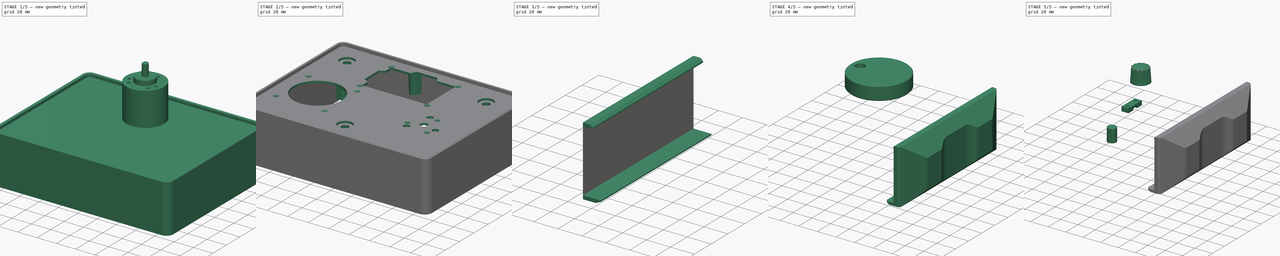
[diagram: build sequence overview — one tinted view per stage of 5, left to right]
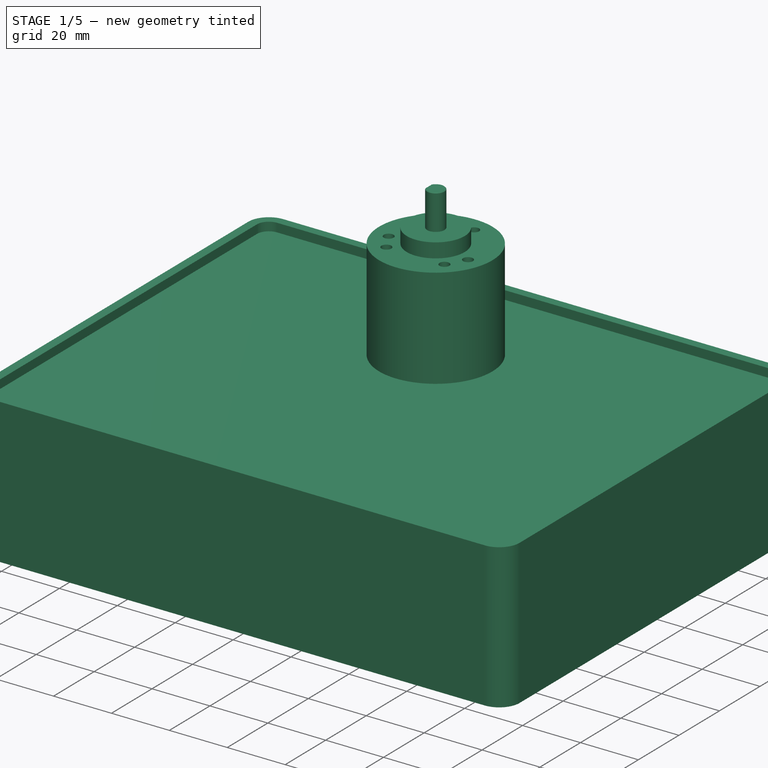
[diagram: stage 1 of 5 — iso view after this stage's code; geometry added in this stage tinted green]
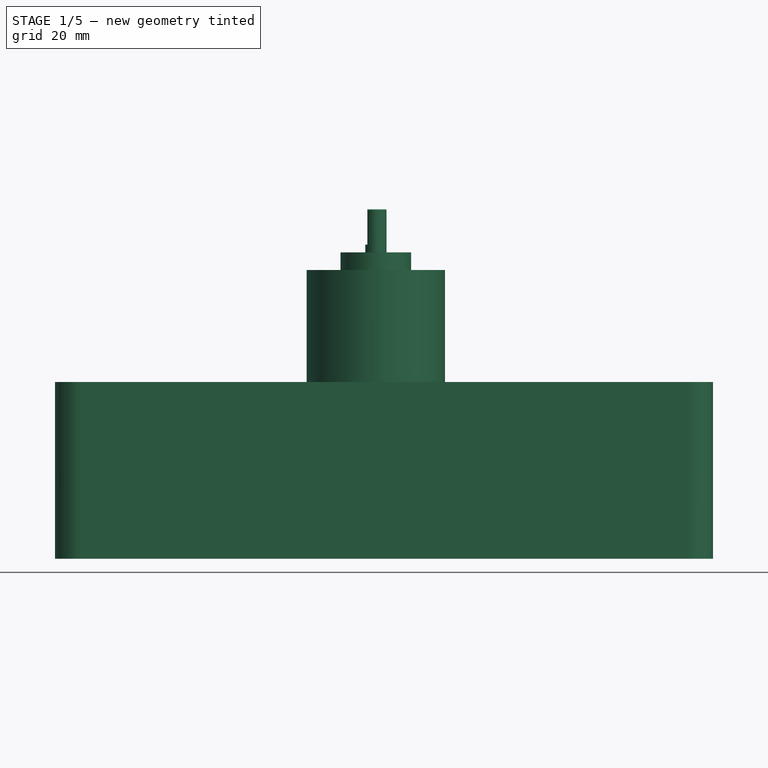
[diagram: stage 1 of 5 — front view after this stage's code; geometry added in this stage tinted green]
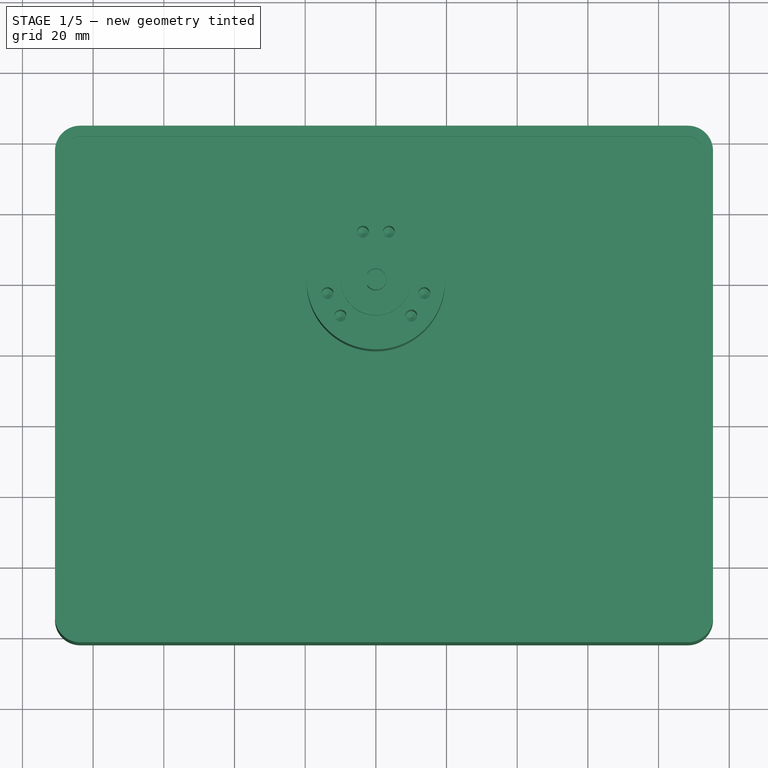
[diagram: stage 1 of 5 — top view after this stage's code; geometry added in this stage tinted green]
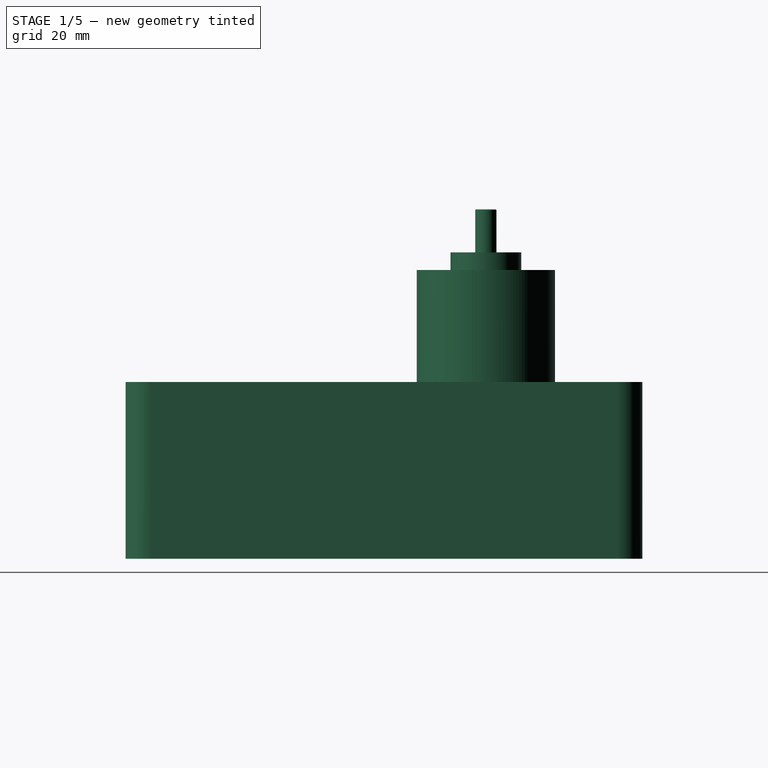
[diagram: stage 1 of 5 — right view after this stage's code; geometry added in this stage tinted green]
FCSTD DOCUMENT  (FreeCAD 1.2R20251126 (Git shallow))
Label: grblHal_pendant_case
License: All rights reserved
LicenseURL: https://en.wikipedia.org/wiki/All_rights_reserved
objects: Sketcher::SketchObject×69, PartDesign::Pad×28, PartDesign::Pocket×19, PartDesign::SubShapeBinder×17, App::Point×16, PartDesign::Hole×13, PartDesign::Body×13, Part::Feature×13, PartDesign::Fillet×9, PartDesign::Chamfer×7, PartDesign::Revolution×4, PartDesign::SubtractivePipe×4, App::DocumentObjectGroup×4, Part::DatumPlane×4, PartDesign::PolarPattern×3, App::Part×3, Part::Part2DObjectPython×3, PartDesign::Mirrored×2, Part::DatumLine×2, PartDesign::Plane×1, +2 more types
note: 449 computed .brp shape members not serialized (recipe doc carries the construction recipe); baked Part::Feature solids carry a one-line shape summary decoded from their .brp

FEATURE [App::Point] Origin003
  Role = Origin
FEATURE [Sketcher::SketchObject] Sketch001
  ArcFitTolerance = 1e-06
  AttachmentSupport = -> [Origin002]
  ExternalTypes = [0]
  FullyConstrained = true
  MakeInternals = false
  MapMode = 5
  sketch-geometry (1):
    g0: Circle CenterX=0 CenterY=0 CenterZ=0 NormalX=0 NormalY=0 NormalZ=1 AngleXU=0 Radius=19.575
  constraints (2):
    c: Diameter(g0) = 39.15
    c: Coincident(g0,g-1)
FEATURE [PartDesign::Pad] Pad
  Direction = (0,0,1)
  Length = 34.7
  Length2 = 10
  Profile = -> Sketch001
  ReferenceAxis = -> Sketch001 [N_Axis]
  Refine = true
  SideType = 0
  Suppressed = false
  Type = 0
  Type2 = 0
FEATURE [Sketcher::SketchObject] Sketch002
  ArcFitTolerance = 1e-06
  AttachmentSupport = -> [Pad]
  ExternalTypes = [0]
  FullyConstrained = true
  MakeInternals = false
  MapMode = 5
  Placement = pos=(0,0,34.7) rot=(0,0,1;0rad)
  sketch-geometry (1):
    g0: Circle CenterX=0 CenterY=0 CenterZ=0 NormalX=0 NormalY=0 NormalZ=1 AngleXU=0 Radius=10
  constraints (2):
    c: Diameter(g0) = 20
    c: Coincident(g0,g-1)
FEATURE [PartDesign::Pad] Pad001
  BaseFeature = -> Pad
  Direction = (0,0,1)
  Length = 5
  Length2 = 10
  Profile = -> Sketch002
  ReferenceAxis = -> Sketch002 [N_Axis]
  Refine = true
  SideType = 0
  Suppressed = false
  Type = 0
  Type2 = 0
FEATURE [Sketcher::SketchObject] Sketch003
  ArcFitTolerance = 1e-06
  AttachmentSupport = -> [Pad001]
  ExternalTypes = [0]
  FullyConstrained = true
  MakeInternals = false
  MapMode = 5
  Placement = pos=(0,0,39.7) rot=(0,0,1;0rad)
  sketch-geometry (1):
    g0: Circle CenterX=0 CenterY=0 CenterZ=0 NormalX=0 NormalY=0 NormalZ=1 AngleXU=0 Radius=3
  constraints (2):
    c: Diameter(g0) = 6
    c: Coincident(g0,g-1)
FEATURE [PartDesign::Pad] Pad002
  BaseFeature = -> Pad001
  Direction = (0,0,1)
  Length = 12.2
  Length2 = 10
  Profile = -> Sketch003
  ReferenceAxis = -> Sketch003 [N_Axis]
  Refine = true
  SideType = 0
  Suppressed = false
  Type = 0
  Type2 = 0
FEATURE [Sketcher::SketchObject] Sketch004
  ArcFitTolerance = 1e-06
  AttachmentSupport = -> [Pad002]
  ExternalGeometry = -> [Pad002]
  ExternalTypes = [0]
  FullyConstrained = true
  MakeInternals = false
  MapMode = 5
  Placement = pos=(0,0,51.9) rot=(0,0,1;0rad)
  sketch-geometry (5):
    g0: LineSegment StartX=-2.4 StartY=1.8 StartZ=0 EndX=-2.4 EndY=-1.8 EndZ=0
    g1: LineSegment [constr] StartX=-2.4 StartY=0 StartZ=0 EndX=3 EndY=0 EndZ=0
    g2: LineSegment StartX=-2.4 StartY=1.8 StartZ=0 EndX=-4.4 EndY=1.8 EndZ=0
    g3: LineSegment StartX=-4.4 StartY=1.8 StartZ=0 EndX=-4.4 EndY=-1.8 EndZ=0
    g4: LineSegment StartX=-4.4 StartY=-1.8 StartZ=0 EndX=-2.4 EndY=-1.8 EndZ=0
  constraints (15):
    c: PointOnObject(g0,g-3)
    c: PointOnObject(g0,g-3)
    c: Symmetric(g0,g0,g1)
    c: PointOnObject(g1,g-3)
    c: Horizontal(g1)
    c: PointOnObject(g1,g-1)
    c: DistanceX(g1,g1) = 5.4
    c: Coincident(g0,g2)
    c: Horizontal(g2)
    c: Coincident(g2,g3)
    c: Vertical(g3)
    c: Coincident(g3,g4)
    c: Coincident(g4,g0)
    c: Horizontal(g4)
    c: DistanceX(g2,g2) = 2
FEATURE [PartDesign::Pocket] Pocket
  BaseFeature = -> Pad002
  Direction = (0,0,-1)
  Length = 10
  Length2 = 5
  Profile = -> Sketch004
  ReferenceAxis = -> Sketch004 [N_Axis]
  Refine = true
  SideType = 0
  Suppressed = false
  Type = 0
  Type2 = 0
FEATURE [PartDesign::Chamfer] Chamfer
  Angle = 45
  Base = -> Pocket [Edge13,Edge9]
  BaseFeature = -> Pocket
  ChamferType = 0
  FlipDirection = false
  Refine = true
  Size = 0.2
  Size2 = 1
  SupportTransform = false
  Suppressed = false
  UseAllEdges = false
FEATURE [Sketcher::SketchObject] Sketch005
  ArcFitTolerance = 1e-06
  AttachmentSupport = -> [Chamfer]
  ExternalGeometry = -> [Chamfer]
  ExternalTypes = [0]
  FullyConstrained = false
  MakeInternals = false
  MapMode = 5
  Placement = pos=(0,0,34.7) rot=(0,0,1;0rad)
  sketch-geometry (9):
    g0: Circle CenterX=-3.675 CenterY=13.6976 CenterZ=0 NormalX=0 NormalY=0 NormalZ=1 AngleXU=0 Radius=1.175
    g1: LineSegment [constr] StartX=-2.5 StartY=13.6976 StartZ=0 EndX=0 EndY=13.6976 EndZ=0
    g2: Circle CenterX=-13.7 CenterY=-3.66617 CenterZ=0 NormalX=0 NormalY=0 NormalZ=1 AngleXU=0 Radius=1.175
    g3: LineSegment [constr] StartX=-13.7 StartY=-3.66617 StartZ=0 EndX=0 EndY=-4e-16 EndZ=0
    g4: LineSegment [constr] StartX=0 StartY=-4e-16 StartZ=0 EndX=-3.675 EndY=13.6976 EndZ=0
    g5: LineSegment [constr] StartX=0 StartY=-4e-16 StartZ=0 EndX=-21.6506 EndY=-12.5 EndZ=0
    g6: LineSegment [constr] StartX=-4.2625 StartY=12.6801 StartZ=0 EndX=-13.1125 EndY=-2.64859 EndZ=0
    g7: LineSegment [constr] StartX=-11.8625 StartY=-6.84882 StartZ=0 EndX=-13.1125 EndY=-4.68375 EndZ=0
    g8: LineSegment [constr] StartX=-3.97948 StartY=14.8325 StartZ=0 EndX=-5.02263 EndY=18.7206 EndZ=0
  constraints (28):
    c: Diameter(g0) = 2.35
    c: PointOnObject(g1,g0)
    c: PointOnObject(g1,g-2)
    c: Horizontal(g1)
    c: Horizontal(g0,g1)
    c: DistanceX(g1,g1) = 2.5
    c: Coincident(g3,g2)
    c: Coincident(g3,g-1)
    c: Coincident(g4,g3)
    c: Coincident(g4,g0)
    c: Equal(g4,g3)
    c: Coincident(g5,g3)
    c: Angle(g-2,g5) = 2.0944
    c: PointOnObject(g6,g0)
    c: PointOnObject(g6,g2)
    c: Perpendicular(g2,g6)
    c: Perpendicular(g0,g6)
    c: Equal(g2,g0)
    c: PointOnObject(g7,g5)
    c: PointOnObject(g7,g2)
    c: Perpendicular(g5,g7)
    c: Perpendicular(g2,g7)
    c: Equal(g1,g7)
    c: Distance(g5,g5) = 25
    c: PointOnObject(g8,g0)
    c: Perpendicular(g-3,g8)
    c: Perpendicular(g0,g8)
    c: Distance(g6,g6) = 17.7
FEATURE [PartDesign::Hole] Hole
  BaseFeature = -> Chamfer
  BaseProfileType = 7
  CustomThreadClearance = 0
  Depth = 25
  DepthType = 0
  Diameter = 3.4
  DrillForDepth = false
  DrillPoint = 1
  DrillPointAngle = 118
  HoleCutCountersinkAngle = 90
  HoleCutCustomValues = false
  HoleCutDepth = 0
  HoleCutDiameter = 0
  HoleCutType = 0
  ModelThread = false
  Profile = -> Sketch005
  Refine = true
  Suppressed = false
  Tapered = false
  TaperedAngle = 90
  ThreadClass = 0
  ThreadDepth = 25
  ThreadDepthType = 0
  ThreadDiameter = 3
  ThreadDirection = 0
  ThreadFit = 0
  ThreadSize = 9
  ThreadType = 1
  Threaded = false
  UseCustomThreadClearance = false
FEATURE [PartDesign::PolarPattern] PolarPattern
  Angle = 360
  Axis = -> Z_Axis001
  BaseFeature = -> Hole
  Mode = 0
  Occurrences = 3
  Offset = 120
  Originals = -> [Hole]
  Refine = true
  SpacingPattern = [0]
  Spacings = [-1,-1]
  Suppressed = false
  TransformMode = 0
FEATURE [App::Point] Origin009  label="Origin011"
  Role = Origin
FEATURE [Sketcher::SketchObject] Sketch010
  ArcFitTolerance = 1e-06
  AttachmentSupport = -> [Origin008]
  ExternalTypes = [0]
  FullyConstrained = true
  MakeInternals = false
  MapMode = 5
  sketch-geometry (15):
    g0: LineSegment StartX=-35 StartY=-24.5 StartZ=0 EndX=-11 EndY=-24.5 EndZ=0
    g1: LineSegment StartX=35 StartY=-24.5 StartZ=0 EndX=35 EndY=24.5 EndZ=0
    g2: LineSegment StartX=35 StartY=24.5 StartZ=0 EndX=-35 EndY=24.5 EndZ=0
    g3: LineSegment StartX=-35 StartY=24.5 StartZ=0 EndX=-35 EndY=-24.5 EndZ=0
    g4: GeomPoint [constr] X=0 Y=0 Z=0
    g5: Circle CenterX=-32.725 CenterY=22.275 CenterZ=0 NormalX=0 NormalY=0 NormalZ=1 AngleXU=0 Radius=1.375
    g6: Circle CenterX=32.725 CenterY=22.275 CenterZ=0 NormalX=0 NormalY=0 NormalZ=1 AngleXU=0 Radius=1.375
    g7: Circle CenterX=-32.725 CenterY=-21.225 CenterZ=0 NormalX=0 NormalY=0 NormalZ=1 AngleXU=0 Radius=1.375
    g8: Circle CenterX=32.725 CenterY=-21.225 CenterZ=0 NormalX=0 NormalY=0 NormalZ=1 AngleXU=0 Radius=1.375
    g9: LineSegment [constr] StartX=-32.725 StartY=23.65 StartZ=0 EndX=-32.725 EndY=24.5 EndZ=0
    g10: LineSegment StartX=-11 StartY=-24.5 StartZ=0 EndX=-11 EndY=-17.5 EndZ=0
    g11: LineSegment StartX=-11 StartY=-17.5 StartZ=0 EndX=0 EndY=-17.5 EndZ=0
    g12: LineSegment StartX=11 StartY=-17.5 StartZ=0 EndX=0 EndY=-17.5 EndZ=0
    g13: LineSegment StartX=11 StartY=-24.5 StartZ=0 EndX=11 EndY=-17.5 EndZ=0
    g14: LineSegment StartX=11 StartY=-24.5 StartZ=0 EndX=35 EndY=-24.5 EndZ=0
  constraints (40):
    c: Coincident(g14,g1)
    c: Coincident(g1,g2)
    c: Coincident(g2,g3)
    c: Coincident(g3,g0)
    c: Horizontal(g2)
    c: Symmetric(g2,g0,g4)
    c: Distance(g1,g3) = 70
    c: Distance(g0,g2) = 49
    c: Coincident(g4,g-1)
    c: Diameter(g5) = 2.75
    c: Equal(g5,g6)
    c: Symmetric(g5,g6,g-2)
    c: Equal(g5,g7)
    c: Equal(g6,g8)
    c: DistanceY(g7,g5) = 43.5
    c: DistanceX(g5,g6) = 65.45
    c: PointOnObject(g9,g5)
    c: PointOnObject(g9,g2)
    c: Perpendicular(g9,g2)
    c: Perpendicular(g5,g9)
    c: DistanceY(g9,g9) = 0.85
    c: Vertical(g7,g5)
    c: Vertical(g8,g6)
    c: Horizontal(g8,g7)
    c: Vertical(g3)
    c: Vertical(g1)
    c: Vertical(g10)
    c: Coincident(g10,g11)
    c: PointOnObject(g11,g-2)
    c: Horizontal(g11)
    c: DistanceX(g10,g-1) = 11
    c: DistanceY(g10,g10) = 7
    c: Symmetric(g10,g13,g-2)
    c: Symmetric(g10,g13,g-2)
    c: Symmetric(g11,g12,g-2)
    c: Horizontal(g0)
    c: Horizontal(g14)
    c: Coincident(g10,g0)
    c: Coincident(g14,g13)
    c: Coincident(g12,g11)
FEATURE [PartDesign::Pad] Pad005
  Direction = (0,0,1)
  Length = 1
  Length2 = 10
  Profile = -> Sketch010
  ReferenceAxis = -> Sketch010 [N_Axis]
  Refine = true
  SideType = 0
  Suppressed = false
  Type = 0
  Type2 = 0
FEATURE [PartDesign::Fillet] Fillet001
  Base = -> Pad005 [Edge8,Edge5,Edge2,Edge17,Edge14,Edge1,Edge20,Edge11]
  BaseFeature = -> Pad005
  Radius = 1
  Refine = true
  SupportTransform = false
  Suppressed = false
  UseAllEdges = false
FEATURE [Sketcher::SketchObject] Sketch011
  ArcFitTolerance = 1e-06
  AttachmentSupport = -> [Fillet001]
  ExternalGeometry = -> [Fillet001]
  ExternalTypes = [0]
  FullyConstrained = false
  MakeInternals = false
  MapMode = 5
  Placement = pos=(0,0,0) rot=(1,0,0;3.14159rad)
  sketch-geometry (9):
    g0: LineSegment StartX=-31.15 StartY=18.7 StartZ=0 EndX=-31.15 EndY=-20.3 EndZ=0
    g1: LineSegment StartX=-31.15 StartY=-20.3 StartZ=0 EndX=31.15 EndY=-20.3 EndZ=0
    g2: LineSegment StartX=31.15 StartY=-20.3 StartZ=0 EndX=31.15 EndY=18.7 EndZ=0
    g3: LineSegment StartX=18.15 StartY=19.7 StartZ=0 EndX=-18.15 EndY=19.7 EndZ=0
    g4: GeomPoint [constr] X=0 Y=-0.3 Z=0
    g5: LineSegment StartX=-31.15 StartY=18.7 StartZ=0 EndX=-19.15 EndY=18.7 EndZ=0
    g6: LineSegment StartX=-19.15 StartY=18.7 StartZ=0 EndX=-18.15 EndY=19.7 EndZ=0
    g7: LineSegment StartX=19.15 StartY=18.7 StartZ=0 EndX=18.15 EndY=19.7 EndZ=0
    g8: LineSegment StartX=31.15 StartY=18.7 StartZ=0 EndX=19.15 EndY=18.7 EndZ=0
  constraints (22):
    c: Coincident(g0,g1)
    c: Coincident(g1,g2)
    c: Horizontal(g1)
    c: PointOnObject(g4,g-2)
    c: DistanceX(g1,g1) = 62.3
    c: DistanceY(g-13,g0) = 4.2
    c: Horizontal(g5)
    c: Coincident(g5,g6)
    c: Angle(g6,g5) = 2.35619
    c: DistanceY(g0,g5) = 39
    c: DistanceX(g5,g5) = 12
    c: Symmetric(g5,g8,g-2)
    c: Symmetric(g5,g8,g-2)
    c: Symmetric(g6,g7,g-2)
    c: Symmetric(g6,g7,g-2)
    c: Coincident(g6,g3)
    c: Vertical(g0)
    c: Coincident(g5,g0)
    c: Coincident(g3,g7)
    c: Vertical(g2)
    c: Coincident(g2,g8)
    c: DistanceY(g0,g3) = 40
FEATURE [PartDesign::Pad] Pad006
  BaseFeature = -> Fillet001
  Direction = (0,0,-1)
  Length = 3
  Length2 = 10
  Profile = -> Sketch011
  ReferenceAxis = -> Sketch011 [N_Axis]
  Refine = true
  SideType = 0
  Suppressed = false
  Type = 0
  Type2 = 0
FEATURE [Sketcher::SketchObject] Sketch012
  ArcFitTolerance = 1e-06
  AttachmentSupport = -> [Pad006]
  ExternalGeometry = -> [Pad006]
  ExternalTypes = [0]
  FullyConstrained = true
  MakeInternals = false
  MapMode = 5
  Placement = pos=(0,0,-3) rot=(1,0,0;3.14159rad)
  sketch-geometry (5):
    g0: LineSegment StartX=-28.75 StartY=-18.3 StartZ=0 EndX=28.75 EndY=-18.3 EndZ=0
    g1: LineSegment StartX=28.75 StartY=-18.3 StartZ=0 EndX=28.75 EndY=12 EndZ=0
    g2: LineSegment StartX=28.75 StartY=12 StartZ=0 EndX=-28.75 EndY=12 EndZ=0
    g3: LineSegment StartX=-28.75 StartY=12 StartZ=0 EndX=-28.75 EndY=-18.3 EndZ=0
    g4: GeomPoint [constr] X=0 Y=-3.15 Z=0
  constraints (13):
    c: Coincident(g0,g1)
    c: Coincident(g1,g2)
    c: Coincident(g2,g3)
    c: Coincident(g3,g0)
    c: Horizontal(g0)
    c: Horizontal(g2)
    c: Vertical(g1)
    c: Vertical(g3)
    c: Symmetric(g2,g0,g4)
    c: Distance(g1,g3) = 57.5
    c: Distance(g0,g2) = 30.3
    c: PointOnObject(g4,g-2)
    c: DistanceY(g-5,g0) = 2
FEATURE [PartDesign::Pocket] Pocket002
  BaseFeature = -> Pad006
  Direction = (0,0,1)
  Length = 0.2
  Length2 = 5
  Profile = -> Sketch012
  ReferenceAxis = -> Sketch012 [N_Axis]
  Refine = true
  SideType = 0
  Suppressed = false
  Type = 0
  Type2 = 0
FEATURE [Part::Feature] Part__Feature007  label="XH-4P"
  Placement = pos=(33.475,0.27,1) rot=(-0.57735,0.57735,0.57735;4.18879rad)
  shape: bbox 5.75 x 12.42 x 10.3 mm, 225 faces (baked)
FEATURE [Sketcher::SketchObject] Sketch013
  ArcFitTolerance = 1e-06
  AttachmentSupport = -> [Pocket002]
  ExternalGeometry = -> [Pocket002]
  ExternalTypes = [0,0]
  FullyConstrained = true
  MakeInternals = false
  MapMode = 5
  Placement = pos=(0,0,1) rot=(0,0,1;0rad)
  sketch-geometry (7):
    g0: Circle CenterX=33 CenterY=-3.5 CenterZ=0 NormalX=0 NormalY=0 NormalZ=1 AngleXU=0 Radius=0.5
    g1: Circle CenterX=33 CenterY=-0.96 CenterZ=0 NormalX=0 NormalY=0 NormalZ=1 AngleXU=0 Radius=0.5
    g2: Circle CenterX=33 CenterY=1.58 CenterZ=0 NormalX=0 NormalY=0 NormalZ=1 AngleXU=0 Radius=0.5
    g3: Circle CenterX=33 CenterY=4.12 CenterZ=0 NormalX=0 NormalY=0 NormalZ=1 AngleXU=0 Radius=0.5
    g4: LineSegment [constr] StartX=33 StartY=4.12 StartZ=0 EndX=33 EndY=1.58 EndZ=0
    g5: LineSegment [constr] StartX=33 StartY=1.58 StartZ=0 EndX=33 EndY=-0.96 EndZ=0
    g6: LineSegment [constr] StartX=33 StartY=-0.96 StartZ=0 EndX=33 EndY=-3.5 EndZ=0
  constraints (18):
    c: Vertical(g4)
    c: Coincident(g4,g5)
    c: Vertical(g5)
    c: Coincident(g5,g6)
    c: Equal(g6,g5)
    c: Equal(g5,g4)
    c: Vertical(g6)
    c: DistanceY(g4,g4) = 2.54
    c: Diameter(g0) = 1
    c: Equal(g0,g1)
    c: Equal(g1,g2)
    c: Equal(g2,g3)
    c: Coincident(g0,g6)
    c: Coincident(g1,g5)
    c: Coincident(g2,g4)
    c: Coincident(g3,g4)
    c: DistanceY(g-3,g0) = 21
    c: DistanceX(g0,g-4) = 2
FEATURE [PartDesign::Pocket] Pocket003
  BaseFeature = -> Pocket002
  Direction = (0,0,-1)
  Length = 5
  Length2 = 5
  Profile = -> Sketch013
  ReferenceAxis = -> Sketch013 [N_Axis]
  Refine = true
  SideType = 0
  Suppressed = false
  Type = 1
  Type2 = 0
FEATURE [Sketcher::SketchObject] Sketch029
  ArcFitTolerance = 1e-06
  ExternalTypes = [0]
  FullyConstrained = true
  MakeInternals = false
  MapMode = 5
  Placement = pos=(0,0,-72.75) rot=(1,0,0;3.14159rad)
  sketch-geometry (1):
    g0: GeomPoint X=-35.7546 Y=-4 Z=0
  constraints (1):
    c: Coincident(g0,g-3)
FEATURE [Part::Feature] Body006  label="knob001"
  Placement = pos=(0,-80,3.4) rot=(0,0,1;0rad)
  shape: bbox 20 x 20 x 16.4 mm, 53 faces (baked)
FEATURE [Part::Feature] Body007  label="knob002"
  Placement = pos=(-68,20,3.3) rot=(0,0,1;0rad)
  shape: bbox 20 x 20 x 16.4 mm, 53 faces (baked)
FEATURE [App::Point] Origin022  label="Origin030"
  Role = Origin
FEATURE [Sketcher::SketchObject] Sketch030
  ArcFitTolerance = 1e-06
  AttachmentSupport = -> [Origin021]
  ExternalTypes = [0]
  FullyConstrained = false
  MakeInternals = false
  MapMode = 5
  sketch-geometry (4):
    g0: LineSegment StartX=-87.6934 StartY=41.1685 StartZ=0 EndX=-87.6934 EndY=-98.8315 EndZ=0
    g1: LineSegment StartX=-87.6934 StartY=-98.8315 StartZ=0 EndX=92.3066 EndY=-98.8315 EndZ=0
    g2: LineSegment StartX=92.3066 StartY=-98.8315 StartZ=0 EndX=92.3066 EndY=41.1685 EndZ=0
    g3: LineSegment StartX=92.3066 StartY=41.1685 StartZ=0 EndX=-87.6934 EndY=41.1685 EndZ=0
  constraints (10):
    c: Coincident(g0,g1)
    c: Coincident(g1,g2)
    c: Coincident(g2,g3)
    c: Coincident(g3,g0)
    c: Vertical(g0)
    c: Vertical(g2)
    c: Horizontal(g1)
    c: Horizontal(g3)
    c: Distance(g0,g2) = 180
    c: Distance(g1,g3) = 140
FEATURE [PartDesign::Pad] Pad008
  Direction = (0,0,1)
  Length = 3
  Length2 = 10
  Profile = -> Sketch030
  ReferenceAxis = -> Sketch030 [N_Axis]
  Refine = true
  SideType = 0
  Suppressed = false
  Type = 0
  Type2 = 0
FEATURE [PartDesign::Fillet] Fillet002
  Base = -> Pad008 [Edge1,Edge8,Edge5,Edge2]
  BaseFeature = -> Pad008
  Radius = 4
  Refine = true
  SupportTransform = false
  Suppressed = false
  UseAllEdges = false
FEATURE [App::Point] Origin024  label="Origin032"
  Role = Origin
FEATURE [PartDesign::SubShapeBinder] Binder001
  BindCopyOnChange = 0
  BindMode = 0
  ClaimChildren = false
  Context = -> Body009 [Binder001.]
  Fuse = false
  MakeFace = true
  OffsetFill = false
  OffsetIntersection = false
  OffsetJoinType = 0
  OffsetOpenResult = false
  PartialLoad = false
  Refine = true
  Relative = true
  Support = -> [Body008[Pocket006.Face5]]
  _Version = 2
FEATURE [Sketcher::SketchObject] Sketch032
  ArcFitTolerance = 1e-06
  AttachmentOffset = pos=(0,0,3) rot=(0,0,1;0rad)
  AttachmentSupport = -> [Origin023]
  ExternalGeometry = -> [Binder001]
  ExternalTypes = [0]
  FullyConstrained = true
  MakeInternals = false
  MapMode = 5
  Placement = pos=(0,0,3) rot=(0,0,1;0rad)
  sketch-geometry (20):
    g0: LineSegment StartX=-87.7934 StartY=37.1685 StartZ=0 EndX=-87.7934 EndY=-94.8315 EndZ=0
    g1: LineSegment StartX=-83.6934 StartY=-98.9315 StartZ=0 EndX=88.3066 EndY=-98.9315 EndZ=0
    g2: LineSegment StartX=92.4066 StartY=-94.8315 StartZ=0 EndX=92.4066 EndY=37.1685 EndZ=0
    g3: LineSegment StartX=88.3066 StartY=41.2685 StartZ=0 EndX=-83.6934 EndY=41.2685 EndZ=0
    g4: ArcOfCircle CenterX=-83.6934 CenterY=37.1685 CenterZ=0 NormalX=0 NormalY=0 NormalZ=1 AngleXU=0 Radius=4.1 StartAngle=1.5708 EndAngle=3.14159
    g5: ArcOfCircle CenterX=-83.6934 CenterY=-94.8315 CenterZ=0 NormalX=0 NormalY=0 NormalZ=1 AngleXU=0 Radius=4.1 StartAngle=3.14159 EndAngle=4.71239
    g6: ArcOfCircle CenterX=88.3066 CenterY=-94.8315 CenterZ=0 NormalX=0 NormalY=0 NormalZ=1 AngleXU=0 Radius=4.1 StartAngle=4.71239 EndAngle=6.28319
    g7: ArcOfCircle CenterX=88.3066 CenterY=37.1685 CenterZ=0 NormalX=0 NormalY=0 NormalZ=1 AngleXU=0 Radius=4.1 StartAngle=3e-16 EndAngle=1.5708
    g8: GeomPoint [constr] X=-87.7934 Y=41.2685 Z=0
    g9: GeomPoint [constr] X=92.4066 Y=-98.9315 Z=0
    g10: LineSegment StartX=-90.7934 StartY=37.1685 StartZ=0 EndX=-90.7934 EndY=-94.8315 EndZ=0
    g11: LineSegment StartX=-83.6934 StartY=-101.932 StartZ=0 EndX=88.3066 EndY=-101.932 EndZ=0
    g12: LineSegment StartX=95.4066 StartY=-94.8315 StartZ=0 EndX=95.4066 EndY=37.1685 EndZ=0
    g13: LineSegment StartX=88.3066 StartY=44.2685 StartZ=0 EndX=-83.6934 EndY=44.2685 EndZ=0
    g14: ArcOfCircle CenterX=-83.6934 CenterY=37.1685 CenterZ=0 NormalX=0 NormalY=0 NormalZ=1 AngleXU=0 Radius=7.1 StartAngle=1.5708 EndAngle=3.14159
    g15: ArcOfCircle CenterX=-83.6934 CenterY=-94.8315 CenterZ=0 NormalX=0 NormalY=0 NormalZ=1 AngleXU=0 Radius=7.1 StartAngle=3.14159 EndAngle=4.71239
    g16: ArcOfCircle CenterX=88.3066 CenterY=-94.8315 CenterZ=0 NormalX=0 NormalY=0 NormalZ=1 AngleXU=0 Radius=7.1 StartAngle=4.71239 EndAngle=6.28319
    g17: ArcOfCircle CenterX=88.3066 CenterY=37.1685 CenterZ=0 NormalX=0 NormalY=0 NormalZ=1 AngleXU=0 Radius=7.1 StartAngle=0 EndAngle=1.5708
    g18: GeomPoint [constr] X=-90.7934 Y=44.2685 Z=0
    g19: GeomPoint [constr] X=95.4066 Y=-101.932 Z=0
  constraints (43):
    c: Tangent(g0,g4) = -1.5708
    c: Tangent(g0,g5) = -1.5708
    c: Tangent(g1,g5) = -1.5708
    c: Tangent(g1,g6) = -1.5708
    c: Tangent(g2,g6) = -1.5708
    c: Tangent(g2,g7) = -1.5708
    c: Tangent(g3,g7) = -1.5708
    c: Tangent(g3,g4) = -1.5708
    c: Vertical(g0)
    c: Vertical(g2)
    c: Horizontal(g1)
    c: Horizontal(g3)
    c: Equal(g4,g5)
    c: PointOnObject(g8,g0)
    c: PointOnObject(g8,g3)
    c: PointOnObject(g9,g1)
    c: PointOnObject(g9,g2)
    c: Coincident(g6,g-9)
    c: Coincident(g-8,g7)
    c: Coincident(g4,g-4)
    c: DistanceY(g1,g-7) = 0.1
    c: Tangent(g10,g14) = -1.5708
    c: Tangent(g10,g15) = -1.5708
    c: Tangent(g11,g15) = -1.5708
    c: Tangent(g11,g16) = -1.5708
    c: Tangent(g12,g16) = -1.5708
    c: Tangent(g12,g17) = -1.5708
    c: Tangent(g13,g17) = -1.5708
    c: Tangent(g13,g14) = -1.5708
    c: Vertical(g10)
    c: Vertical(g12)
    c: Horizontal(g11)
    c: Horizontal(g13)
    c: Equal(g14,g15)
    c: Equal(g15,g16)
    c: Equal(g16,g17)
    c: PointOnObject(g18,g10)
    c: PointOnObject(g18,g13)
    c: PointOnObject(g19,g11)
    c: PointOnObject(g19,g12)
    c: Coincident(g16,g6)
    c: Coincident(g14,g4)
    c: Distance(g1,g11) = 3
FEATURE [PartDesign::Pad] Pad009
  Direction = (0,0,1)
  Length = 50
  Length2 = 10
  Profile = -> Sketch032
  ReferenceAxis = -> Sketch032 [N_Axis]
  Refine = true
  Reversed = true
  SideType = 0
  Suppressed = false
  Type = 0
  Type2 = 0
FEATURE [PartDesign::SubShapeBinder] Binder003
  BindCopyOnChange = 0
  BindMode = 0
  ClaimChildren = false
  Context = -> Body009 [Binder003.]
  Fuse = false
  MakeFace = true
  OffsetFill = false
  OffsetIntersection = false
  OffsetJoinType = 0
  OffsetOpenResult = false
  PartialLoad = false
  Refine = true
  Relative = true
  Support = -> [Body001[Fillet.Face3]]
  _Version = 2
FEATURE [PartDesign::SubShapeBinder] Binder004
  BindCopyOnChange = 0
  BindMode = 0
  ClaimChildren = false
  Context = -> Body009 [Binder004.]
  Fuse = false
  MakeFace = true
  OffsetFill = false
  OffsetIntersection = false
  OffsetJoinType = 0
  OffsetOpenResult = false
  PartialLoad = false
  Refine = true
  Relative = true
  Support = -> [Body002[Mirrored.Face19,Mirrored.Face6,Mirrored.Face4]]
  _Version = 2
FEATURE [PartDesign::SubShapeBinder] Binder005
  BindCopyOnChange = 0
  BindMode = 0
  ClaimChildren = false
  Context = -> Body009 [Binder005.]
  Fuse = false
  MakeFace = true
  OffsetFill = false
  OffsetIntersection = false
  OffsetJoinType = 0
  OffsetOpenResult = false
  PartialLoad = false
  Refine = true
  Relative = true
  Support = -> [Body002[Mirrored.Face4]]
  _Version = 2
FEATURE [PartDesign::SubShapeBinder] Binder006
  BindCopyOnChange = 0
  BindMode = 0
  ClaimChildren = false
  Context = -> Body009 [Binder006.]
  Fuse = false
  MakeFace = true
  OffsetFill = false
  OffsetIntersection = false
  OffsetJoinType = 0
  OffsetOpenResult = false
  PartialLoad = false
  Refine = true
  Relative = true
  Support = -> [Part[Body003.Pocket003.Face5]]
  _Version = 2
FEATURE [PartDesign::SubShapeBinder] Binder007
  BindCopyOnChange = 0
  BindMode = 0
  ClaimChildren = false
  Context = -> Body009 [Binder007.]
  Fuse = false
  MakeFace = true
  OffsetFill = false
  OffsetIntersection = false
  OffsetJoinType = 0
  OffsetOpenResult = false
  PartialLoad = false
  Refine = true
  Relative = true
  Support = -> [Part[Body003.Pocket003.Face36]]
  _Version = 2
FEATURE [Sketcher::SketchObject] Sketch034
  ArcFitTolerance = 1e-06
  ExternalGeometry = -> [Binder007]
  ExternalTypes = [0]
  FullyConstrained = false
  MakeInternals = false
  MapMode = 5
  sketch-geometry (18):
    g0: Circle CenterX=52 CenterY=-44 CenterZ=0 NormalX=0 NormalY=0 NormalZ=1 AngleXU=0 Radius=10.25
    g1: Circle CenterX=-52 CenterY=-44 CenterZ=0 NormalX=0 NormalY=0 NormalZ=1 AngleXU=0 Radius=23.75
    g2: Circle CenterX=-68 CenterY=20 CenterZ=0 NormalX=0 NormalY=0 NormalZ=1 AngleXU=0 Radius=7
    g3: Circle CenterX=68 CenterY=20 CenterZ=0 NormalX=0 NormalY=0 NormalZ=1 AngleXU=0 Radius=7
    g4: LineSegment StartX=-31.45 StartY=29.6 StartZ=0 EndX=-31.45 EndY=19.3 EndZ=0
    g5: LineSegment StartX=-31.45 StartY=-11 StartZ=0 EndX=31.45 EndY=-11 EndZ=0
    g6: LineSegment StartX=31.45 StartY=-11 StartZ=0 EndX=31.45 EndY=29.6 EndZ=0
    g7: LineSegment StartX=31.45 StartY=29.6 StartZ=0 EndX=10 EndY=29.6 EndZ=0
    g8: LineSegment StartX=10 StartY=29.6 StartZ=0 EndX=10 EndY=34.6 EndZ=0
    g9: LineSegment StartX=10 StartY=34.6 StartZ=0 EndX=-10 EndY=34.6 EndZ=0
    g10: LineSegment StartX=-10 StartY=34.6 StartZ=0 EndX=-10 EndY=29.6 EndZ=0
    g11: LineSegment StartX=-31.45 StartY=19.3 StartZ=0 EndX=-36.45 EndY=19.3 EndZ=0
    g12: LineSegment StartX=-36.45 StartY=19.3 StartZ=0 EndX=-36.45 EndY=-0.7 EndZ=0
    g13: LineSegment StartX=-36.45 StartY=-0.7 StartZ=0 EndX=-31.45 EndY=-0.7 EndZ=0
    g14: LineSegment StartX=-10 StartY=29.6 StartZ=0 EndX=-31.45 EndY=29.6 EndZ=0
    g15: LineSegment StartX=-31.45 StartY=-0.7 StartZ=0 EndX=-31.45 EndY=-11 EndZ=0
    g16: Circle CenterX=107.904 CenterY=-36.6984 CenterZ=0 NormalX=0 NormalY=0 NormalZ=1 AngleXU=0 Radius=1.17244
    g17: Circle CenterX=0 CenterY=-80 CenterZ=0 NormalX=0 NormalY=0 NormalZ=1 AngleXU=0 Radius=7
  constraints (40):
    c: Diameter(g0) = 20.5
    c: Coincident(g15,g5)
    c: Coincident(g5,g6)
    c: Coincident(g6,g7)
    c: Coincident(g14,g4)
    c: Vertical(g6)
    c: Horizontal(g5)
    c: Coincident(g8,g9)
    c: Coincident(g9,g10)
    c: Horizontal(g9)
    c: Vertical(g8)
    c: Vertical(g10)
    c: Coincident(g11,g12)
    c: Coincident(g12,g13)
    c: Horizontal(g11)
    c: Horizontal(g13)
    c: Vertical(g12)
    c: Horizontal(g7)
    c: Horizontal(g14)
    c: Coincident(g10,g14)
    c: Coincident(g7,g8)
    c: Vertical(g4)
    c: Vertical(g15)
    c: Coincident(g4,g11)
    c: Coincident(g15,g13)
    c: Diameter(g17) = 14
    c: Equal(g2,g3)
    c: Equal(g3,g17)
    c: DistanceY(g-8,g4) = 0.3
    c: DistanceX(g4,g-8) = 0.3
    c: Horizontal(g7,g10)
    c: Vertical(g13,g4)
    c: DistanceX(g-6,g6) = 0.3
    c: DistanceY(g5,g-7) = 0.3
    c: Equal(g4,g15)
    c: DistanceY(g12,g12) = 20
    c: DistanceX(g11,g11) = 5
    c: Equal(g14,g7)
    c: DistanceX(g9,g9) = 20
    c: Distance(g8,g8) = 5
FEATURE [PartDesign::Pocket] Pocket007
  BaseFeature = -> Pad009
  Direction = (0,0,-1)
  Length = 5
  Length2 = 5
  Profile = -> Sketch034
  ReferenceAxis = -> Sketch034 [N_Axis]
  Refine = true
  SideType = 0
  Suppressed = false
  Type = 1
  Type2 = 0
FEATURE [PartDesign::Body] Body014  label="cable_block"
  AllowCompound = false
  Group = -> [Binder011,Sketch058,Pad023,Sketch059,Pocket011,Sketch060,Hole011]
  Origin = -> Origin033
  Placement = pos=(0,0,3.5) rot=(0,0,1;0rad)
  Tip = -> Hole011
FEATURE [PartDesign::SubShapeBinder] Binder012
  BindCopyOnChange = 0
  BindMode = 0
  ClaimChildren = false
  Context = -> Body008 [Binder012.]
  Fuse = false
  MakeFace = true
  OffsetFill = false
  OffsetIntersection = false
  OffsetJoinType = 0
  OffsetOpenResult = false
  PartialLoad = false
  Refine = true
  Relative = true
  Support = -> [Part[Body003.Pocket003.Face36]]
  _Version = 2
FEATURE [Sketcher::SketchObject] Sketch031
  ArcFitTolerance = 1e-06
  AttachmentSupport = -> [Fillet002]
  ExternalGeometry = -> [Binder012]
  ExternalTypes = [0,0,0,0]
  FullyConstrained = true
  MakeInternals = false
  MapMode = 5
  Placement = pos=(0,0,3) rot=(0,0,1;0rad)
  sketch-geometry (14):
    g0: Circle CenterX=-68 CenterY=20 CenterZ=0 NormalX=0 NormalY=0 NormalZ=1 AngleXU=0 Radius=6.5
    g1: Circle CenterX=-52 CenterY=-44 CenterZ=0 NormalX=0 NormalY=0 NormalZ=1 AngleXU=0 Radius=23.75
    g2: Circle CenterX=52 CenterY=-44 CenterZ=0 NormalX=0 NormalY=0 NormalZ=1 AngleXU=0 Radius=4
    g3: Circle CenterX=0 CenterY=-80 CenterZ=0 NormalX=0 NormalY=0 NormalZ=1 AngleXU=0 Radius=6.5
    g4: Circle CenterX=68 CenterY=20 CenterZ=0 NormalX=0 NormalY=0 NormalZ=1 AngleXU=0 Radius=6.5
    g5: Circle [constr] CenterX=52 CenterY=-44 CenterZ=0 NormalX=0 NormalY=0 NormalZ=1 AngleXU=0 Radius=30
    g6: LineSegment StartX=-28.75 StartY=-4 StartZ=0 EndX=28.75 EndY=-4 EndZ=0
    g7: ArcOfCircle CenterX=28.75 CenterY=-3 CenterZ=0 NormalX=0 NormalY=0 NormalZ=1 AngleXU=1.5708 Radius=1 StartAngle=3.14159 EndAngle=4.71239
    g8: LineSegment StartX=29.75 StartY=-3 StartZ=0 EndX=29.75 EndY=27.3 EndZ=0
    g9: ArcOfCircle CenterX=28.75 CenterY=27.3 CenterZ=0 NormalX=0 NormalY=0 NormalZ=1 AngleXU=-3.14159 Radius=1 StartAngle=3.14159 EndAngle=4.71239
    g10: LineSegment StartX=28.75 StartY=28.3 StartZ=0 EndX=-28.75 EndY=28.3 EndZ=0
    g11: ArcOfCircle CenterX=-28.75 CenterY=27.3 CenterZ=0 NormalX=0 NormalY=0 NormalZ=1 AngleXU=-1.5708 Radius=1 StartAngle=3.14159 EndAngle=4.71239
    g12: LineSegment StartX=-29.75 StartY=27.3 StartZ=0 EndX=-29.75 EndY=-3 EndZ=0
    g13: ArcOfCircle CenterX=-28.75 CenterY=-3 CenterZ=0 NormalX=0 NormalY=0 NormalZ=1 AngleXU=0 Radius=1 StartAngle=3.14159 EndAngle=4.71239
  constraints (31):
    c: PointOnObject(g3,g-2)
    c: DistanceX(g0,g-1) = 68
    c: DistanceY(g-1,g0) = 20
    c: Diameter(g0) = 13
    c: Equal(g0,g4)
    c: Symmetric(g0,g4,g-2)
    c: Symmetric(g1,g2,g-2)
    c: Diameter(g2) = 8
    c: Diameter(g1) = 47.5
    c: Diameter(g5) = 60
    c: Coincident(g5,g2)
    c: DistanceX(g1,g-1) = 52
    c: DistanceY(g1,g-1) = 44
    c: DistanceY(g3,g-1) = 80
    c: Equal(g3,g0)
    c: Tangent(g6,g7) = -1.5708
    c: Tangent(g6,g13) = -1.5708
    c: Tangent(g7,g8) = -1.5708
    c: Tangent(g8,g9) = -1.5708
    c: Tangent(g9,g10) = -1.5708
    c: Tangent(g10,g11) = -1.5708
    c: Tangent(g11,g12) = -1.5708
    c: Tangent(g12,g13) = -1.5708
    c: Coincident(g13,g-3)
    c: Parallel(g6,g-5)
    c: Coincident(g7,g-5)
    c: Parallel(g8,g-6)
    c: Coincident(g9,g-4)
    c: Parallel(g10,g-4)
    c: Coincident(g11,g-4)
    c: Distance(g12,g-3) = 1
FEATURE [PartDesign::Pocket] Pocket006
  BaseFeature = -> Fillet002
  Direction = (0,0,-1)
  Length = 5
  Length2 = 5
  Profile = -> Sketch031
  ReferenceAxis = -> Sketch031 [N_Axis]
  Refine = true
  SideType = 0
  Suppressed = false
  Type = 1
  Type2 = 0
FEATURE [Part::Feature] Compound
  shape: bbox 23.63 x 28.03 x 2e-07 mm, 17 faces, 0 solids (baked)
FEATURE [App::DocumentObjectGroup] Group002  label="engraving"
  Group = -> [ShapeString,ShapeString001,ShapeString002,Compound]
FEATURE [Sketcher::SketchObject] Sketch073
  ArcFitTolerance = 1e-06
  AttachmentOffset = pos=(0,0,-3) rot=(0,0,1;0rad)
  AttachmentSupport = -> [Pocket007]
  ExternalGeometry = -> [Pocket007]
  ExternalTypes = [0,0,0,0,0,0,0,0]
  FullyConstrained = true
  MakeInternals = false
  MapMode = 5
  Placement = pos=(0,0,-1.3e-15) rot=(0,0,1;0rad)
FEATURE [PartDesign::Pad] Pad026
  BaseFeature = -> Pocket007
  Direction = (0,0,1)
  Length = 2
  Length2 = 10
  Profile = -> Sketch073
  ReferenceAxis = -> Sketch073 [N_Axis]
  Refine = true
  Reversed = true
  SideType = 0
  Suppressed = false
  Type = 0
  Type2 = 0
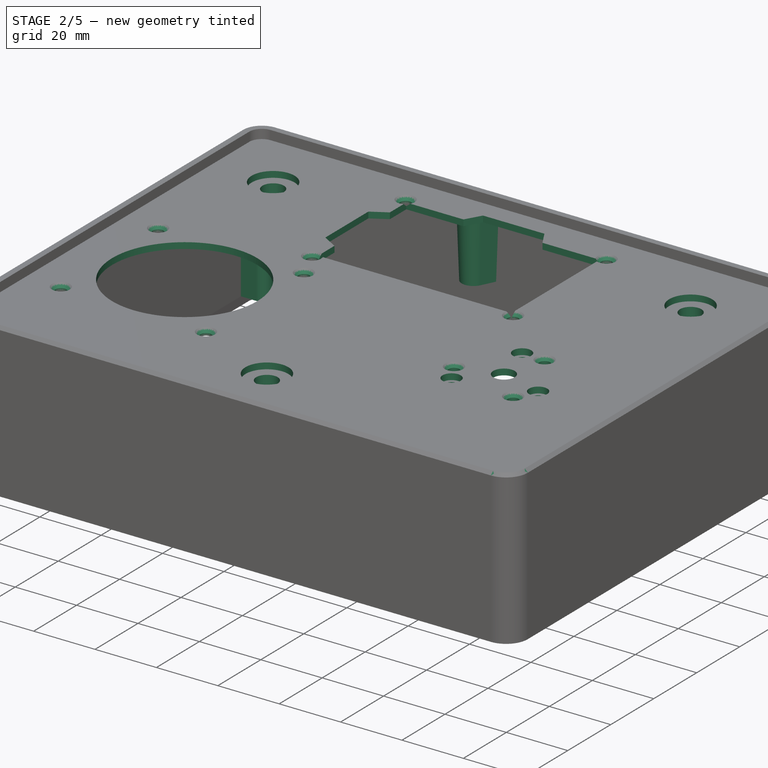
[diagram: stage 2 of 5 — iso view after this stage's code; geometry added in this stage tinted green]
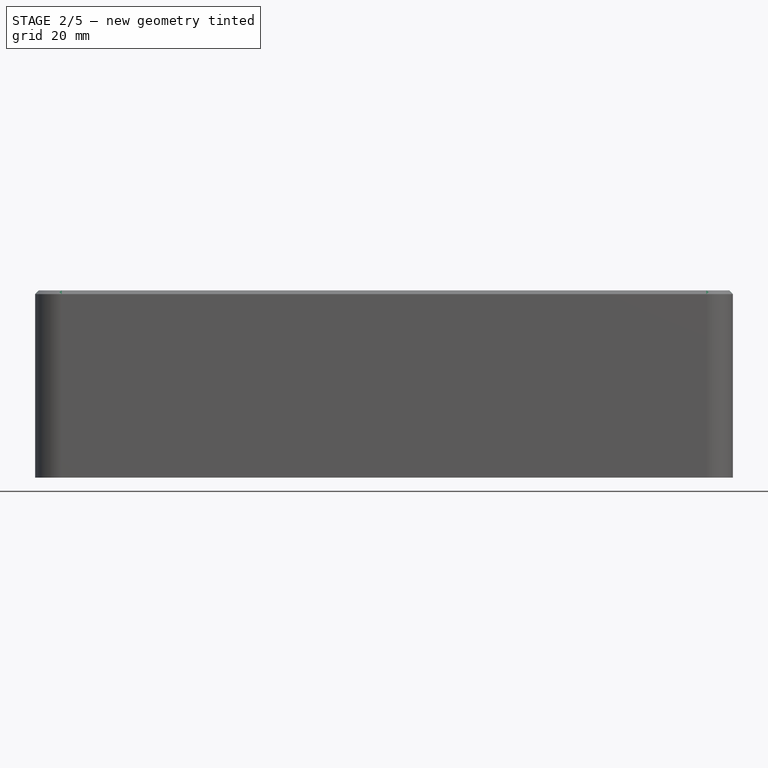
[diagram: stage 2 of 5 — front view after this stage's code; geometry added in this stage tinted green]
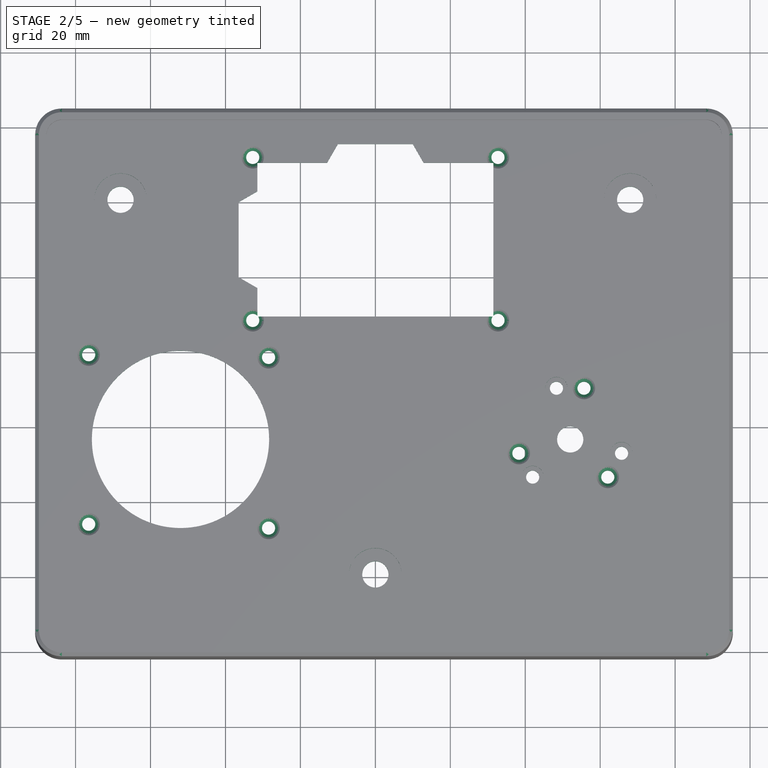
[diagram: stage 2 of 5 — top view after this stage's code; geometry added in this stage tinted green]
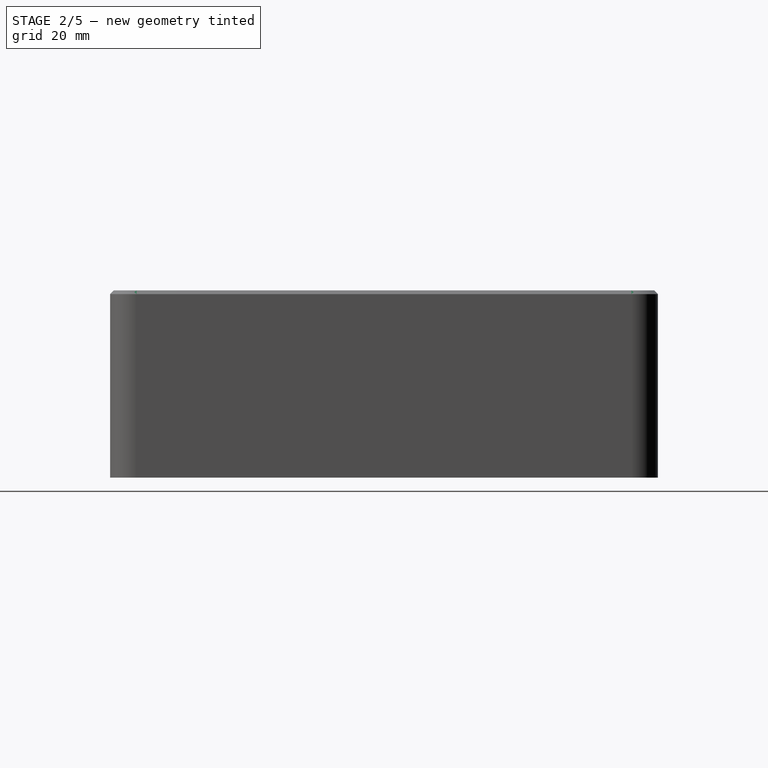
[diagram: stage 2 of 5 — right view after this stage's code; geometry added in this stage tinted green]
FEATURE [PartDesign::Fillet] Fillet
  Base = -> PolarPattern [Edge26]
  BaseFeature = -> PolarPattern
  Radius = 1
  Refine = true
  SupportTransform = false
  Suppressed = false
  UseAllEdges = false
FEATURE [PartDesign::Body] Body001  label="rotary_encoder"
  AllowCompound = false
  Group = -> [Sketch001,Pad,Sketch002,Pad001,Sketch003,Pad002,Sketch004,Pocket,Chamfer,Sketch005,Hole,PolarPattern,Fillet]
  Origin = -> Origin002
  Placement = pos=(52,-44,-35.45) rot=(0,0,1;0rad)
  Tip = -> Fillet
FEATURE [Part::Feature] Part__Feature  label="a"
  shape: bbox 2.65 x 5.2 x 1.5 mm, 17 faces (baked)
FEATURE [Part::Feature] Part__Feature001  label="b"
  shape: bbox 2.65 x 5.2 x 1.5 mm, 17 faces (baked)
FEATURE [Part::Feature] Part__Feature002  label="c"
  shape: bbox 1.5 x 5.2 x 1.5 mm, 15 faces (baked)
FEATURE [Part::Feature] Part__Feature003  label="d"
  shape: bbox 2.65 x 5.2 x 1.5 mm, 17 faces (baked)
FEATURE [Part::Feature] Part__Feature004  label="e"
  shape: bbox 2.65 x 5.2 x 1.5 mm, 17 faces (baked)
FEATURE [Part::Feature] Part__Feature005  label="f"
  shape: bbox 12.3 x 25.1 x 12.1 mm, 237 faces (baked)
FEATURE [App::Part] Ã_Ã_Ã_ÂªÂ_Ã_Ã_Ã_Ã_Ã_  label="EC11"
  Group = -> [Part__Feature,Part__Feature001,Part__Feature002,Part__Feature003,Part__Feature004,Part__Feature005]
  Origin = -> Origin004
  Placement = pos=(-68,20,-8) rot=(1,0,0;1.5708rad)
FEATURE [App::Point] Origin005  label="Origin006"
  Role = Origin
FEATURE [Part::Feature] Part__Feature006  label="ESP32"
  Placement = pos=(62,16,-23.7) rot=(-0.707107,0.707107,0;3.14159rad)
  shape: bbox 55 x 28 x 13 mm, 1271 faces (baked)
FEATURE [App::Point] Origin007  label="Origin009"
  Role = Origin
FEATURE [Sketcher::SketchObject] Sketch006
  ArcFitTolerance = 1e-06
  AttachmentSupport = -> [Origin006]
  ExternalTypes = [0]
  FullyConstrained = true
  MakeInternals = false
  MapMode = 5
  sketch-geometry (5):
    g0: LineSegment StartX=-28.5 StartY=-26.625 StartZ=0 EndX=28.5 EndY=-26.625 EndZ=0
    g1: LineSegment StartX=28.5 StartY=-26.625 StartZ=0 EndX=28.5 EndY=26.625 EndZ=0
    g2: LineSegment StartX=28.5 StartY=26.625 StartZ=0 EndX=-28.5 EndY=26.625 EndZ=0
    g3: LineSegment StartX=-28.5 StartY=26.625 StartZ=0 EndX=-28.5 EndY=-26.625 EndZ=0
    g4: GeomPoint [constr] X=0 Y=0 Z=0
  constraints (12):
    c: Coincident(g0,g1)
    c: Coincident(g1,g2)
    c: Coincident(g2,g3)
    c: Coincident(g3,g0)
    c: Horizontal(g0)
    c: Horizontal(g2)
    c: Vertical(g1)
    c: Vertical(g3)
    c: Symmetric(g2,g0,g4)
    c: Distance(g1,g3) = 57
    c: Distance(g0,g2) = 53.25
    c: Coincident(g4,g-1)
FEATURE [PartDesign::Pad] Pad003
  Direction = (0,0,1)
  Length = 6.4
  Length2 = 10
  Profile = -> Sketch006
  ReferenceAxis = -> Sketch006 [N_Axis]
  Refine = true
  SideType = 0
  Suppressed = false
  Type = 0
  Type2 = 0
FEATURE [Sketcher::SketchObject] Sketch007
  ArcFitTolerance = 1e-06
  AttachmentSupport = -> [Pad003]
  ExternalTypes = [0]
  FullyConstrained = true
  MakeInternals = false
  MapMode = 5
  Placement = pos=(0,0,6.4) rot=(0,0,1;0rad)
  sketch-geometry (1):
    g0: Circle CenterX=0 CenterY=0 CenterZ=0 NormalX=0 NormalY=0 NormalZ=1 AngleXU=0 Radius=23.65
  constraints (2):
    c: Diameter(g0) = 47.3
    c: Coincident(g0,g-1)
FEATURE [PartDesign::Pad] Pad004
  BaseFeature = -> Pad003
  Direction = (0,0,1)
  Length = 4
  Length2 = 10
  Profile = -> Sketch007
  ReferenceAxis = -> Sketch007 [N_Axis]
  Refine = true
  SideType = 0
  Suppressed = false
  Type = 0
  Type2 = 0
FEATURE [Sketcher::SketchObject] Sketch008
  ArcFitTolerance = 1e-06
  AttachmentSupport = -> [Pad004]
  ExternalGeometry = -> [Pad004]
  ExternalTypes = [0]
  FullyConstrained = false
  MakeInternals = false
  MapMode = 5
  Placement = pos=(0,0,6.4) rot=(0,0,1;0rad)
  sketch-geometry (8):
    g0: Circle CenterX=-23.5 CenterY=21.9 CenterZ=0 NormalX=0 NormalY=0 NormalZ=1 AngleXU=0 Radius=1.75
    g1: Circle CenterX=23.5 CenterY=21.9 CenterZ=0 NormalX=0 NormalY=0 NormalZ=1 AngleXU=0 Radius=1.75
    g2: Circle CenterX=-23.65 CenterY=-23.65 CenterZ=0 NormalX=0 NormalY=0 NormalZ=1 AngleXU=0 Radius=1.75
    g3: Circle CenterX=23.5 CenterY=-23.65 CenterZ=0 NormalX=0 NormalY=0 NormalZ=1 AngleXU=0 Radius=1.75
    g4: LineSegment [constr] StartX=-30.2843 StartY=23.65 StartZ=0 EndX=33.1581 EndY=23.65 EndZ=0
    g5: LineSegment [constr] StartX=-36.6304 StartY=-23.65 StartZ=0 EndX=41.9843 EndY=-23.65 EndZ=0
    g6: LineSegment [constr] StartX=-23.65 StartY=32.6011 StartZ=0 EndX=-23.65 EndY=-33.5332 EndZ=0
    g7: LineSegment [constr] StartX=23.65 StartY=30.0316 StartZ=0 EndX=23.65 EndY=-28.8224 EndZ=0
  constraints (20):
    c: Diameter(g0) = 3.5
    c: Equal(g2,g0)
    c: Equal(g1,g3)
    c: Equal(g3,g2)
    c: DistanceX(g0,g1) = 47
    c: Vertical(g3,g1)
    c: Horizontal(g3,g2)
    c: Diameter(g-7) = 47.3
    c: Horizontal(g4)
    c: Tangent(g4,g-7)
    c: Horizontal(g5)
    c: Tangent(g5,g-7)
    c: Vertical(g6)
    c: Tangent(g6,g-7)
    c: Vertical(g7)
    c: Tangent(g7,g-7)
    c: Tangent(g0,g4)
    c: Symmetric(g0,g1,g-2)
    c: PointOnObject(g2,g5)
    c: PointOnObject(g2,g6)
FEATURE [PartDesign::Hole] Hole001
  BaseFeature = -> Pad004
  BaseProfileType = 7
  CustomThreadClearance = 0
  Depth = 158.962
  DepthType = 1
  Diameter = 3.5
  DrillForDepth = false
  DrillPoint = 1
  DrillPointAngle = 118
  HoleCutCountersinkAngle = 90
  HoleCutCustomValues = false
  HoleCutDepth = 0
  HoleCutDiameter = 0
  HoleCutType = 0
  ModelThread = false
  Profile = -> Sketch008
  Refine = true
  Suppressed = false
  Tapered = false
  TaperedAngle = 90
  ThreadClass = 0
  ThreadDepth = 158.962
  ThreadDepthType = 0
  ThreadDiameter = 3.5
  ThreadDirection = 0
  ThreadFit = 0
  ThreadSize = 0
  ThreadType = 0
  Threaded = false
  UseCustomThreadClearance = false
FEATURE [Sketcher::SketchObject] Sketch009
  ArcFitTolerance = 1e-06
  AttachmentSupport = -> [Hole001]
  ExternalGeometry = -> [Hole001]
  ExternalTypes = [0]
  FullyConstrained = true
  MakeInternals = false
  MapMode = 5
  Placement = pos=(0,0,6.4) rot=(0,0,1;0rad)
  sketch-geometry (5):
    g0: LineSegment StartX=-28.5 StartY=20.9 StartZ=0 EndX=-23.5 EndY=20.9 EndZ=0
    g1: LineSegment StartX=-22.5 StartY=26.625 StartZ=0 EndX=-22.5 EndY=21.9 EndZ=0
    g2: ArcOfCircle CenterX=-23.5 CenterY=21.9 CenterZ=0 NormalX=0 NormalY=0 NormalZ=1 AngleXU=0 Radius=1 StartAngle=4.71239 EndAngle=6.28319
    g3: LineSegment StartX=-22.5 StartY=26.625 StartZ=0 EndX=-28.5 EndY=26.625 EndZ=0
    g4: LineSegment StartX=-28.5 StartY=26.625 StartZ=0 EndX=-28.5 EndY=20.9 EndZ=0
  constraints (12):
    c: Horizontal(g0)
    c: Vertical(g1)
    c: PointOnObject(g0,g-4)
    c: PointOnObject(g1,g-6)
    c: DistanceX(g-6,g1) = 6
    c: Coincident(g2,g-9)
    c: Tangent(g2,g1) = 1.5708
    c: Tangent(g2,g0) = -1.5708
    c: Coincident(g1,g3)
    c: Coincident(g3,g-6)
    c: Coincident(g3,g4)
    c: Coincident(g4,g0)
FEATURE [PartDesign::Pocket] Pocket001
  BaseFeature = -> Hole001
  Direction = (0,0,-1)
  Length = 3.5
  Length2 = 5
  Profile = -> Sketch009
  ReferenceAxis = -> Sketch009 [N_Axis]
  Refine = true
  SideType = 0
  Suppressed = false
  Type = 0
  Type2 = 0
FEATURE [PartDesign::Mirrored] Mirrored
  BaseFeature = -> Pocket001
  MirrorPlane = -> Sketch009 [H_Axis]
  Originals = -> [Pocket001]
  Refine = true
  Suppressed = false
  TransformMode = 0
FEATURE [PartDesign::Pad] Pad016
  BaseFeature = -> Mirrored
  Direction = (0,0,-1)
  Length = 30
  Length2 = 10
  Profile = -> Mirrored [Face2]
  Refine = true
  SideType = 0
  Suppressed = false
  Type = 0
  Type2 = 0
FEATURE [PartDesign::Body] Body002  label="Joystick"
  AllowCompound = false
  Group = -> [Sketch006,Pad003,Sketch007,Pad004,Sketch008,Hole001,Sketch009,Pocket001,Mirrored,Pad016]
  Origin = -> Origin006
  Placement = pos=(-52,-44,-9.9) rot=(0,0,1;0rad)
  Tip = -> Pad016
FEATURE [App::Point] Origin028  label="Origin038"
  Role = Origin
FEATURE [Sketcher::SketchObject] Sketch043
  ArcFitTolerance = 1e-06
  AttachmentSupport = -> [Origin027]
  ExternalTypes = [0]
  FullyConstrained = true
  MakeInternals = false
  MapMode = 5
  sketch-geometry (9):
    g0: LineSegment StartX=-35 StartY=-25 StartZ=0 EndX=35 EndY=-25 EndZ=0
    g1: LineSegment StartX=35 StartY=-25 StartZ=0 EndX=35 EndY=25 EndZ=0
    g2: LineSegment StartX=35 StartY=25 StartZ=0 EndX=-35 EndY=25 EndZ=0
    g3: LineSegment StartX=-35 StartY=25 StartZ=0 EndX=-35 EndY=-25 EndZ=0
    g4: GeomPoint [constr] X=0 Y=0 Z=0
    g5: Circle CenterX=-32.5 CenterY=22.5 CenterZ=0 NormalX=0 NormalY=0 NormalZ=1 AngleXU=0 Radius=1.35
    g6: Circle CenterX=32.5 CenterY=22.5 CenterZ=0 NormalX=0 NormalY=0 NormalZ=1 AngleXU=0 Radius=1.35
    g7: Circle CenterX=-32.5 CenterY=-22.5 CenterZ=0 NormalX=0 NormalY=0 NormalZ=1 AngleXU=0 Radius=1.35
    g8: Circle CenterX=32.5 CenterY=-22.5 CenterZ=0 NormalX=0 NormalY=0 NormalZ=1 AngleXU=0 Radius=1.35
  constraints (21):
    c: Coincident(g0,g1)
    c: Coincident(g1,g2)
    c: Coincident(g2,g3)
    c: Coincident(g3,g0)
    c: Horizontal(g0)
    c: Horizontal(g2)
    c: Vertical(g1)
    c: Vertical(g3)
    c: Symmetric(g2,g0,g4)
    c: Distance(g1,g3) = 70
    c: Distance(g0,g2) = 50
    c: Coincident(g4,g-1)
    c: Diameter(g5) = 2.7
    c: Equal(g5,g6)
    c: Symmetric(g5,g6,g-2)
    c: DistanceX(g5,g6) = 65
    c: Equal(g5,g7)
    c: Symmetric(g5,g7,g-1)
    c: Equal(g6,g8)
    c: Symmetric(g6,g8,g-1)
    c: DistanceY(g7,g5) = 45
FEATURE [PartDesign::Pad] Pad017
  Direction = (0,0,1)
  Length = 1.55
  Length2 = 10
  Profile = -> Sketch043
  ReferenceAxis = -> Sketch043 [N_Axis]
  Refine = true
  SideType = 0
  Suppressed = false
  Type = 0
  Type2 = 0
FEATURE [Sketcher::SketchObject] Sketch074
  ArcFitTolerance = 1e-06
  AttachmentSupport = -> [Pad026]
  ExternalGeometry = -> [Pad026,Binder003]
  ExternalTypes = [0,0,0,0,0,0,0,0,0]
  FullyConstrained = false
  MakeInternals = false
  MapMode = 5
  Placement = pos=(0,0,-2) rot=(1,0,0;3.14159rad)
  sketch-geometry (21):
    g0: LineSegment StartX=-83.6934 StartY=-41.2685 StartZ=0 EndX=-58 EndY=-41.2685 EndZ=0
    g1: LineSegment StartX=-87.7934 StartY=-10 StartZ=0 EndX=-87.7934 EndY=-37.1685 EndZ=0
    g2: ArcOfCircle CenterX=-68 CenterY=-20 CenterZ=0 NormalX=0 NormalY=0 NormalZ=1 AngleXU=0 Radius=10 StartAngle=3e-16 EndAngle=1.5708
    g3: LineSegment StartX=-87.7934 StartY=-10 StartZ=0 EndX=-68 EndY=-10 EndZ=0
    g4: LineSegment StartX=-58 StartY=-20 StartZ=0 EndX=-58 EndY=-41.2685 EndZ=0
    g5: Circle CenterX=68 CenterY=-20 CenterZ=0 NormalX=0 NormalY=0 NormalZ=1 AngleXU=0 Radius=3.5
    g6: ArcOfCircle CenterX=68 CenterY=-20 CenterZ=0 NormalX=0 NormalY=0 NormalZ=1 AngleXU=0 Radius=10 StartAngle=1.5708 EndAngle=3.14159
    g7: LineSegment StartX=68 StartY=-10 StartZ=0 EndX=92.4066 EndY=-10 EndZ=0
    g8: LineSegment StartX=58 StartY=-20 StartZ=0 EndX=58 EndY=-41.2685 EndZ=0
    g9: LineSegment StartX=58 StartY=-41.2685 StartZ=0 EndX=88.3066 EndY=-41.2685 EndZ=0
    g10: LineSegment StartX=92.4066 StartY=-37.1685 StartZ=0 EndX=92.4066 EndY=-10 EndZ=0
    g11: ArcOfCircle CenterX=88.3066 CenterY=-37.1685 CenterZ=0 NormalX=0 NormalY=0 NormalZ=1 AngleXU=0 Radius=4.1 StartAngle=4.71239 EndAngle=6.28319
    g12: Circle CenterX=0 CenterY=80 CenterZ=0 NormalX=0 NormalY=0 NormalZ=1 AngleXU=0 Radius=3.5
    g13: LineSegment StartX=-7.75685 StartY=73.6888 StartZ=0 EndX=-21.7006 EndY=98.9315 EndZ=0
    g14: Circle CenterX=52 CenterY=44 CenterZ=0 NormalX=0 NormalY=0 NormalZ=1 AngleXU=0 Radius=10.125
    g15: ArcOfCircle CenterX=52 CenterY=44 CenterZ=0 NormalX=0 NormalY=0 NormalZ=1 AngleXU=0 Radius=24 StartAngle=3.88336 EndAngle=4.71239
    g16: LineSegment StartX=34.3053 StartY=27.7859 StartZ=0 EndX=-7.75685 EndY=73.6888 EndZ=0
    g17: LineSegment StartX=52 StartY=20 StartZ=0 EndX=92.4066 EndY=20 EndZ=0
    g18: LineSegment StartX=-21.7006 StartY=98.9315 StartZ=0 EndX=88.3066 EndY=98.9315 EndZ=0
    g19: LineSegment StartX=92.4066 StartY=94.8315 StartZ=0 EndX=92.4066 EndY=20 EndZ=0
    g20: ArcOfCircle CenterX=88.3066 CenterY=94.8315 CenterZ=0 NormalX=0 NormalY=0 NormalZ=1 AngleXU=0 Radius=4.1 StartAngle=4.1e-15 EndAngle=1.5708
  constraints (41):
    c: Coincident(g0,g-3)
    c: Coincident(g-3,g2)
    c: Coincident(g1,g-6) = -1.5708
    c: Horizontal(g0,g-5)
    c: Coincident(g4,g2)
    c: Coincident(g4,g0)
    c: Coincident(g5,g-15)
    c: Equal(g5,g-15)
    c: Coincident(g6,g5)
    c: Horizontal(g7)
    c: PointOnObject(g8,g-4)
    c: Vertical(g8)
    c: Coincident(g10,g-11)
    c: Coincident(g7,g10)
    c: PointOnObject(g7,g-10)
    c: Coincident(g9,g-11)
    c: Coincident(g8,g9)
    c: Tangent(g11,g9) = -1.5708
    c: Coincident(g11,g10)
    c: Tangent(g8,g6) = -1.5708
    c: Tangent(g7,g6) = 1.5708
    c: Coincident(g12,g-17)
    c: Equal(g12,g-17)
    c: PointOnObject(g13,g-8)
    c: Coincident(g14,g-18)
    c: Diameter(g-18) = 20
    c: Diameter(g14) = 20.25
    c: Coincident(g15,g14)
    c: PointOnObject(g17,g-10)
    c: Horizontal(g17)
    c: Coincident(g16,g13)
    c: PointOnObject(g13,g-16)
    c: Coincident(g18,g13)
    c: Coincident(g18,g-9)
    c: Coincident(g19,g-10)
    c: Coincident(g19,g17)
    c: Tangent(g20,g18) = 1.5708
    c: Coincident(g20,g19)
    c: Tangent(g17,g15) = -1.5708
    c: Tangent(g16,g15) = 1.5708
    c: Diameter(g15) = 48
FEATURE [PartDesign::Pad] Pad027
  BaseFeature = -> Pad026
  Direction = (0,0,-1)
  Length = 3
  Length2 = 10
  Profile = -> Sketch074
  ReferenceAxis = -> Sketch074 [N_Axis]
  Refine = true
  SideType = 0
  Suppressed = false
  Type = 0
  Type2 = 0
FEATURE [Sketcher::SketchObject] Sketch075
  ArcFitTolerance = 1e-06
  AttachmentSupport = -> [Pad027]
  ExternalTypes = [0,0,0,0,0,0,0,0,0,0,0,0,0,0]
  FullyConstrained = true
  MakeInternals = false
  MapMode = 5
  Placement = pos=(0,0,-1.3e-15) rot=(0,0,1;0rad)
FEATURE [PartDesign::Hole] Hole015
  BaseFeature = -> Pad027
  BaseProfileType = 7
  CustomThreadClearance = 0
  Depth = 25
  DepthType = 0
  Diameter = 3.5
  DrillForDepth = false
  DrillPoint = 1
  DrillPointAngle = 118
  HoleCutCountersinkAngle = 90
  HoleCutCustomValues = false
  HoleCutDepth = 2.975
  HoleCutDiameter = 5.95
  HoleCutType = 2
  ModelThread = false
  Profile = -> Sketch075
  Refine = true
  Suppressed = false
  Tapered = false
  TaperedAngle = 90
  ThreadClass = 0
  ThreadDepth = 25
  ThreadDepthType = 0
  ThreadDiameter = 3.5
  ThreadDirection = 0
  ThreadFit = 0
  ThreadSize = 0
  ThreadType = 0
  Threaded = false
  UseCustomThreadClearance = false
FEATURE [Sketcher::SketchObject] Sketch076
  ArcFitTolerance = 1e-06
  AttachmentSupport = -> [Hole015]
  ExternalGeometry = -> [Binder004,Hole015]
  ExternalTypes = [0,0,0,0]
  FullyConstrained = true
  MakeInternals = false
  MapMode = 5
  Placement = pos=(0,0,-2) rot=(1,0,0;3.14159rad)
FEATURE [PartDesign::Pocket] Pocket014
  BaseFeature = -> Hole015
  Direction = (0,0,1)
  Length = 5
  Length2 = 5
  Profile = -> Sketch076
  ReferenceAxis = -> Sketch076 [N_Axis]
  Refine = true
  SideType = 0
  Suppressed = false
  Type = 0
  Type2 = 0
FEATURE [Sketcher::SketchObject] Sketch077
  ArcFitTolerance = 1e-06
  AttachmentSupport = -> [Pocket014]
  ExternalGeometry = -> [Pocket014,Binder007]
  ExternalTypes = [0,0,0,0,0,0,0,0]
  FullyConstrained = true
  MakeInternals = false
  MapMode = 5
  Placement = pos=(0,0,-1.3e-15) rot=(0,0,1;0rad)
  sketch-geometry (22):
    g0: Circle CenterX=52 CenterY=-44 CenterZ=0 NormalX=0 NormalY=0 NormalZ=1 AngleXU=0 Radius=3.5
    g1: LineSegment [constr] StartX=48.325 StartY=-30.3024 StartZ=0 EndX=52 EndY=-44 EndZ=0
    g2: LineSegment [constr] StartX=52 StartY=-44 StartZ=0 EndX=65.7 EndY=-47.6662 EndZ=0
    g3: LineSegment [constr] StartX=52 StartY=-44 StartZ=0 EndX=41.975 EndY=-54.0315 EndZ=0
    g4: Circle CenterX=-68 CenterY=20 CenterZ=0 NormalX=0 NormalY=0 NormalZ=1 AngleXU=0 Radius=7
    g5: Circle CenterX=68 CenterY=20 CenterZ=0 NormalX=0 NormalY=0 NormalZ=1 AngleXU=0 Radius=7
    g6: Circle CenterX=0 CenterY=-80 CenterZ=0 NormalX=0 NormalY=0 NormalZ=1 AngleXU=0 Radius=7
    g7: LineSegment [constr] StartX=-1.6e-15 StartY=-10.7 StartZ=0 EndX=-4.5e-15 EndY=29.3 EndZ=0
    g8: LineSegment [constr] StartX=-3e-15 StartY=9.3 StartZ=0 EndX=31.15 EndY=9.3 EndZ=0
    g9: LineSegment StartX=-31.5 StartY=-11.2 StartZ=0 EndX=31.5 EndY=-11.2 EndZ=0
    g10: LineSegment StartX=31.5 StartY=-11.2 StartZ=0 EndX=31.5 EndY=29.8 EndZ=0
    g11: LineSegment StartX=31.5 StartY=29.8 StartZ=0 EndX=12.8868 EndY=29.8 EndZ=0
    g12: LineSegment StartX=-31.5 StartY=29.8 StartZ=0 EndX=-31.5 EndY=22.1868 EndZ=0
    g13: GeomPoint [constr] X=-3e-15 Y=9.3 Z=0
    g14: LineSegment StartX=-12.8868 StartY=29.8 StartZ=0 EndX=-10 EndY=34.8 EndZ=0
    g15: LineSegment StartX=-10 StartY=34.8 StartZ=0 EndX=10 EndY=34.8 EndZ=0
    g16: LineSegment StartX=10 StartY=34.8 StartZ=0 EndX=12.8868 EndY=29.8 EndZ=0
    g17: LineSegment StartX=-12.8868 StartY=29.8 StartZ=0 EndX=-31.5 EndY=29.8 EndZ=0
    g18: LineSegment StartX=-31.5 StartY=22.1868 StartZ=0 EndX=-36.5 EndY=19.3 EndZ=0
    g19: LineSegment StartX=-36.5 StartY=19.3 StartZ=0 EndX=-36.5 EndY=-0.7 EndZ=0
    g20: LineSegment StartX=-36.5 StartY=-0.7 StartZ=0 EndX=-31.5 EndY=-3.58675 EndZ=0
    g21: LineSegment StartX=-31.5 StartY=-3.58675 StartZ=0 EndX=-31.5 EndY=-11.2 EndZ=0
  constraints (52):
    c: Coincident(g1,g-4)
    c: Coincident(g1,g0)
    c: Coincident(g2,g0)
    c: Coincident(g2,g-5)
    c: Coincident(g3,g0)
    c: Coincident(g3,g-3)
    c: Equal(g3,g1)
    c: Equal(g1,g2)
    c: Diameter(g0) = 7
    c: Coincident(g4,g-7)
    c: Coincident(g5,g-8)
    c: Coincident(g6,g-6)
    c: Equal(g5,g4)
    c: Equal(g4,g6)
    c: Diameter(g6) = 14
    c: Symmetric(g-9,g-9,g7)
    c: Symmetric(g-10,g-10,g7)
    c: Symmetric(g7,g7,g8)
    c: Horizontal(g8)
    c: Vertical(g8,g-10)
    c: Coincident(g9,g10)
    c: Coincident(g10,g11)
    c: Coincident(g17,g12)
    c: Coincident(g21,g9)
    c: Horizontal(g9)
    c: Vertical(g10)
    c: Symmetric(g11,g9,g13)
    c: Coincident(g13,g8)
    c: DistanceX(g9,g9) = 63
    c: DistanceY(g10,g10) = 41
    c: Coincident(g14,g15)
    c: Coincident(g15,g16)
    c: Symmetric(g15,g14,g-2)
    c: Symmetric(g14,g16,g-2)
    c: DistanceY(g17,g14) = 5
    c: DistanceX(g15,g15) = 20
    c: Angle(g14,g15) = 2.0944
    c: Horizontal(g11)
    c: Horizontal(g17)
    c: Coincident(g14,g17)
    c: Coincident(g11,g16)
    c: Coincident(g18,g19)
    c: Coincident(g19,g20)
    c: Symmetric(g19,g18,g8)
    c: Symmetric(g18,g20,g8)
    c: DistanceY(g19,g19) = 20
    c: DistanceX(g18,g12) = 5
    c: Angle(g19,g18) = 2.0944
    c: Vertical(g12)
    c: Vertical(g21)
    c: Coincident(g18,g12)
    c: Coincident(g21,g20)
FEATURE [PartDesign::Pocket] Pocket015
  BaseFeature = -> Pocket014
  Direction = (0,0,-1)
  Length = 2
  Length2 = 5
  Profile = -> Sketch077
  ReferenceAxis = -> Sketch077 [N_Axis]
  Refine = true
  SideType = 0
  Suppressed = false
  Type = 0
  Type2 = 0
FEATURE [Sketcher::SketchObject] Sketch078
  ArcFitTolerance = 1e-06
  AttachmentSupport = -> [Pocket015]
  ExternalGeometry = -> [Pocket015]
  ExternalTypes = [0,0,0,0,0]
  FullyConstrained = true
  MakeInternals = false
  MapMode = 5
  Placement = pos=(0,0,-2) rot=(1,0,0;3.14159rad)
  sketch-geometry (24):
    g0: LineSegment StartX=-79.7934 StartY=98.9315 StartZ=0 EndX=-87.7934 EndY=98.9315 EndZ=0
    g1: LineSegment StartX=-87.7934 StartY=98.9315 StartZ=0 EndX=-87.7934 EndY=90.9315 EndZ=0
    g2: LineSegment StartX=-87.7934 StartY=90.9315 StartZ=0 EndX=-82.7934 EndY=90.9315 EndZ=0
    g3: LineSegment StartX=-79.7934 StartY=93.9315 StartZ=0 EndX=-79.7934 EndY=98.9315 EndZ=0
    g4: ArcOfCircle CenterX=-82.7934 CenterY=93.9315 CenterZ=0 NormalX=0 NormalY=0 NormalZ=1 AngleXU=0 Radius=3 StartAngle=4.71239 EndAngle=6.28319
    g5: GeomPoint [constr] X=-79.7934 Y=90.9315 Z=0
    g6: LineSegment StartX=84.4066 StartY=98.9315 StartZ=0 EndX=92.4066 EndY=98.9315 EndZ=0
    g7: LineSegment StartX=92.4066 StartY=98.9315 StartZ=0 EndX=92.4066 EndY=90.9315 EndZ=0
    g8: LineSegment StartX=92.4066 StartY=90.9315 StartZ=0 EndX=87.4066 EndY=90.9315 EndZ=0
    g9: LineSegment StartX=84.4066 StartY=93.9315 StartZ=0 EndX=84.4066 EndY=98.9315 EndZ=0
    g10: ArcOfCircle CenterX=87.4066 CenterY=93.9315 CenterZ=0 NormalX=0 NormalY=0 NormalZ=1 AngleXU=0 Radius=3 StartAngle=3.14159 EndAngle=4.71239
    g11: GeomPoint [constr] X=84.4066 Y=90.9315 Z=0
    g12: LineSegment StartX=-79.7934 StartY=-41.2685 StartZ=0 EndX=-87.7934 EndY=-41.2685 EndZ=0
    g13: LineSegment StartX=-87.7934 StartY=-41.2685 StartZ=0 EndX=-87.7934 EndY=-33.2685 EndZ=0
    g14: LineSegment StartX=-87.7934 StartY=-33.2685 StartZ=0 EndX=-82.7934 EndY=-33.2685 EndZ=0
    g15: LineSegment StartX=-79.7934 StartY=-36.2685 StartZ=0 EndX=-79.7934 EndY=-41.2685 EndZ=0
    g16: ArcOfCircle CenterX=-82.7934 CenterY=-36.2685 CenterZ=0 NormalX=0 NormalY=0 NormalZ=1 AngleXU=0 Radius=3 StartAngle=5e-16 EndAngle=1.5708
    g17: GeomPoint [constr] X=-79.7934 Y=-33.2685 Z=0
    g18: LineSegment StartX=84.4066 StartY=-41.2685 StartZ=0 EndX=92.4066 EndY=-41.2685 EndZ=0
    g19: LineSegment StartX=92.4066 StartY=-41.2685 StartZ=0 EndX=92.4066 EndY=-33.2685 EndZ=0
    g20: LineSegment StartX=92.4066 StartY=-33.2685 StartZ=0 EndX=87.4066 EndY=-33.2685 EndZ=0
    g21: LineSegment StartX=84.4066 StartY=-36.2685 StartZ=0 EndX=84.4066 EndY=-41.2685 EndZ=0
    g22: ArcOfCircle CenterX=87.4066 CenterY=-36.2685 CenterZ=0 NormalX=0 NormalY=0 NormalZ=1 AngleXU=0 Radius=3 StartAngle=1.5708 EndAngle=3.14159
    g23: GeomPoint [constr] X=84.4066 Y=-33.2685 Z=0
  constraints (64):
    c: Coincident(g0,g1)
    c: Coincident(g1,g2)
    c: Coincident(g3,g0)
    c: Horizontal(g0)
    c: Horizontal(g2)
    c: Vertical(g1)
    c: Vertical(g3)
    c: PointOnObject(g0,g-4)
    c: PointOnObject(g1,g-7)
    c: PointOnObject(g5,g3)
    c: PointOnObject(g5,g2)
    c: Tangent(g3,g4) = -1.5708
    c: Tangent(g2,g4) = -1.5708
    c: DistanceY(g3,g3) = 5
    c: DistanceX(g2,g2) = 5
    c: Radius(g4) = 3
    c: Coincident(g6,g7)
    c: Coincident(g7,g8)
    c: Coincident(g9,g6)
    c: Horizontal(g6)
    c: Horizontal(g8)
    c: Vertical(g7)
    c: Vertical(g9)
    c: PointOnObject(g11,g9)
    c: PointOnObject(g11,g8)
    c: Tangent(g9,g10) = 1.5708
    c: Tangent(g8,g10) = 1.5708
    c: Radius(g10) = 3
    c: PointOnObject(g7,g-3)
    c: PointOnObject(g6,g-4)
    c: Equal(g8,g9)
    c: Equal(g9,g3)
    c: Coincident(g12,g13)
    c: Coincident(g13,g14)
    c: Coincident(g15,g12)
    c: Horizontal(g12)
    c: Horizontal(g14)
    c: Vertical(g13)
    c: Vertical(g15)
    c: PointOnObject(g17,g15)
    c: PointOnObject(g17,g14)
    c: Tangent(g15,g16) = 1.5708
    c: Tangent(g14,g16) = 1.5708
    c: Radius(g16) = 3
    c: Coincident(g18,g19)
    c: Coincident(g19,g20)
    c: Coincident(g21,g18)
    c: Horizontal(g18)
    c: Horizontal(g20)
    c: Vertical(g19)
    c: Vertical(g21)
    c: PointOnObject(g23,g21)
    c: PointOnObject(g23,g20)
    c: Tangent(g21,g22) = -1.5708
    c: Tangent(g20,g22) = -1.5708
    c: Radius(g22) = 3
    c: Equal(g20,g21)
    c: Equal(g21,g15)
    c: PointOnObject(g12,g-6)
    c: PointOnObject(g13,g-7)
    c: Equal(g14,g15)
    c: Equal(g15,g2)
    c: PointOnObject(g18,g-6)
    c: PointOnObject(g19,g-3)
FEATURE [PartDesign::Pad] Pad028
  BaseFeature = -> Pocket015
  Direction = (0,0,-1)
  Length = 42
  Length2 = 10
  Profile = -> Sketch078
  ReferenceAxis = -> Sketch078 [N_Axis]
  Refine = true
  SideType = 0
  Suppressed = false
  Type = 0
  Type2 = 0
FEATURE [Sketcher::SketchObject] Sketch079
  ArcFitTolerance = 1e-06
  AttachmentSupport = -> [Pad028]
  ExternalGeometry = -> [Binder008]
  ExternalTypes = [0,0,0,0]
  FullyConstrained = true
  MakeInternals = false
  MapMode = 5
  Placement = pos=(0,0,-2) rot=(1,0,0;3.14159rad)
  sketch-geometry (10):
    g0: Circle CenterX=-15.8 CenterY=26.3554 CenterZ=0 NormalX=0 NormalY=0 NormalZ=1 AngleXU=0 Radius=4.5
    g1: ArcOfCircle CenterX=-15.8 CenterY=-38.6446 CenterZ=0 NormalX=0 NormalY=0 NormalZ=1 AngleXU=0 Radius=4.5 StartAngle=0.460084 EndAngle=2.68151
    g2: ArcOfCircle CenterX=29.2 CenterY=-38.6446 CenterZ=0 NormalX=0 NormalY=0 NormalZ=1 AngleXU=0 Radius=4.5 StartAngle=0.460084 EndAngle=2.68151
    g3: Circle CenterX=29.2 CenterY=26.3554 CenterZ=0 NormalX=0 NormalY=0 NormalZ=1 AngleXU=0 Radius=4.5
    g4: LineSegment StartX=-19.8321 StartY=-36.6465 StartZ=0 EndX=-23.3 EndY=-43.6446 EndZ=0
    g5: LineSegment StartX=-11.7679 StartY=-36.6465 StartZ=0 EndX=-8.3 EndY=-43.6446 EndZ=0
    g6: LineSegment StartX=-8.3 StartY=-43.6446 StartZ=0 EndX=-23.3 EndY=-43.6446 EndZ=0
    g7: LineSegment StartX=25.1679 StartY=-36.6465 StartZ=0 EndX=21.7 EndY=-43.6446 EndZ=0
    g8: LineSegment StartX=21.7 StartY=-43.6446 StartZ=0 EndX=36.7 EndY=-43.6446 EndZ=0
    g9: LineSegment StartX=36.7 StartY=-43.6446 StartZ=0 EndX=33.2321 EndY=-36.6465 EndZ=0
  constraints (24):
    c: Diameter(g0) = 9
    c: Coincident(g0,g-5)
    c: Coincident(g1,g-4)
    c: Coincident(g2,g-3)
    c: Coincident(g3,g-6)
    c: Coincident(g6,g5)
    c: Coincident(g6,g4)
    c: Horizontal(g6)
    c: DistanceX(g6,g6) = 15
    c: Equal(g4,g5)
    c: DistanceY(g5,g1) = 5
    c: Equal(g1,g0)
    c: Tangent(g5,g1) = 1.5708
    c: Tangent(g4,g1) = -1.5708
    c: Coincident(g7,g8)
    c: Horizontal(g8)
    c: Coincident(g8,g9)
    c: Equal(g9,g7)
    c: Horizontal(g8,g5)
    c: Equal(g6,g8)
    c: Equal(g3,g2)
    c: Equal(g2,g1)
    c: Tangent(g7,g2) = -1.5708
    c: Tangent(g9,g2) = -1.5708
FEATURE [PartDesign::Pad] Pad029
  BaseFeature = -> Pad028
  Direction = (0,0,-1)
  Length = 20
  Length2 = 10
  Profile = -> Sketch079
  ReferenceAxis = -> Sketch079 [N_Axis]
  Refine = true
  SideType = 0
  Suppressed = false
  TaperAngle = -2
  Type = 0
  Type2 = 0
FEATURE [Sketcher::SketchObject] Sketch080
  ArcFitTolerance = 1e-06
  AttachmentSupport = -> [Pad029]
  ExternalGeometry = -> [Pad029]
  ExternalTypes = [0,0,0,0]
  FullyConstrained = true
  MakeInternals = false
  MapMode = 5
  Placement = pos=(0,0,-22) rot=(1,0,0;3.14159rad)
FEATURE [PartDesign::Hole] Hole016
  BaseFeature = -> Pad029
  BaseProfileType = 7
  CustomThreadClearance = 0
  Depth = 8
  DepthType = 0
  Diameter = 4
  DrillForDepth = false
  DrillPoint = 1
  DrillPointAngle = 118
  HoleCutCountersinkAngle = 90
  HoleCutCustomValues = false
  HoleCutDepth = 0
  HoleCutDiameter = 0
  HoleCutType = 0
  ModelThread = false
  Profile = -> Sketch080
  Refine = true
  Suppressed = false
  Tapered = false
  TaperedAngle = 90
  ThreadClass = 0
  ThreadDepth = 8
  ThreadDepthType = 0
  ThreadDiameter = 4
  ThreadDirection = 0
  ThreadFit = 0
  ThreadSize = 0
  ThreadType = 0
  Threaded = false
  UseCustomThreadClearance = false
FEATURE [Sketcher::SketchObject] Sketch081
  ArcFitTolerance = 1e-06
  AttachmentSupport = -> [Pad028]
  ExternalGeometry = -> [Pad028]
  ExternalTypes = [0,0,0,0]
  FullyConstrained = true
  MakeInternals = false
  MapMode = 5
  Placement = pos=(0,0,-44) rot=(1,0,0;3.14159rad)
  sketch-geometry (12):
    g0: GeomPoint X=-83.7934 Y=-37.2685 Z=0
    g1: GeomPoint X=-83.7934 Y=94.9315 Z=0
    g2: GeomPoint X=88.4066 Y=94.9315 Z=0
    g3: GeomPoint X=88.4066 Y=-37.2685 Z=0
    g4: LineSegment [constr] StartX=-83.7934 StartY=94.9315 StartZ=0 EndX=-79.7934 EndY=93.9315 EndZ=0
    g5: LineSegment [constr] StartX=-82.7934 StartY=90.9315 StartZ=0 EndX=-83.7934 EndY=94.9315 EndZ=0
    g6: LineSegment [constr] StartX=-83.7934 StartY=-37.2685 StartZ=0 EndX=-79.7934 EndY=-36.2685 EndZ=0
    g7: LineSegment [constr] StartX=-83.7934 StartY=-37.2685 StartZ=0 EndX=-82.7934 EndY=-33.2685 EndZ=0
    g8: LineSegment [constr] StartX=88.4066 StartY=-37.2685 StartZ=0 EndX=84.4066 EndY=-36.2685 EndZ=0
    g9: LineSegment [constr] StartX=87.4066 StartY=-33.2685 StartZ=0 EndX=88.4066 EndY=-37.2685 EndZ=0
    g10: LineSegment [constr] StartX=87.4066 StartY=90.9315 StartZ=0 EndX=88.4066 EndY=94.9315 EndZ=0
    g11: LineSegment [constr] StartX=88.4066 StartY=94.9315 StartZ=0 EndX=84.4066 EndY=93.9315 EndZ=0
  constraints (24):
    c: Coincident(g4,g1)
    c: Coincident(g5,g1)
    c: Coincident(g5,g-3)
    c: Coincident(g4,g-3)
    c: Equal(g4,g5)
    c: DistanceX(g4,g4) = 4
    c: Coincident(g6,g0)
    c: Coincident(g6,g-6)
    c: Coincident(g7,g0)
    c: Coincident(g7,g-6)
    c: Equal(g7,g6)
    c: Coincident(g8,g3)
    c: Coincident(g8,g-5)
    c: Coincident(g9,g-5)
    c: Coincident(g9,g3)
    c: Equal(g8,g9)
    c: Equal(g6,g5)
    c: Equal(g8,g6)
    c: Coincident(g10,g-4)
    c: Coincident(g10,g2)
    c: Coincident(g11,g2)
    c: Coincident(g11,g-4)
    c: Equal(g11,g10)
    c: Equal(g10,g8)
FEATURE [PartDesign::Hole] Hole017
  BaseFeature = -> Hole016
  BaseProfileType = 7
  CustomThreadClearance = 0
  Depth = 8
  DepthType = 0
  Diameter = 4
  DrillForDepth = false
  DrillPoint = 0
  DrillPointAngle = 118
  HoleCutCountersinkAngle = 90
  HoleCutCustomValues = false
  HoleCutDepth = 0
  HoleCutDiameter = 0
  HoleCutType = 0
  ModelThread = false
  Profile = -> Sketch081
  Refine = true
  Suppressed = false
  Tapered = false
  TaperedAngle = 90
  ThreadClass = 0
  ThreadDepth = 8
  ThreadDepthType = 0
  ThreadDiameter = 4
  ThreadDirection = 0
  ThreadFit = 0
  ThreadSize = 0
  ThreadType = 0
  Threaded = false
  UseCustomThreadClearance = false
FEATURE [Sketcher::SketchObject] Sketch082
  ArcFitTolerance = 1e-06
  AttachmentSupport = -> [Origin023]
  ExternalGeometry = -> [Hole017]
  ExternalTypes = [1,1]
  FullyConstrained = true
  MakeInternals = false
  MapMode = 5
  Placement = pos=(0,0,0) rot=(1,0,0;1.5708rad)
  sketch-geometry (3):
    g0: LineSegment StartX=92.4066 StartY=-44 StartZ=0 EndX=92.6691 EndY=-47 EndZ=0
    g1: LineSegment StartX=92.6691 StartY=-47 StartZ=0 EndX=92.4066 EndY=-47 EndZ=0
    g2: LineSegment StartX=92.4066 StartY=-47 StartZ=0 EndX=92.4066 EndY=-44 EndZ=0
  constraints (8):
    c: PointOnObject(g0,g-4)
    c: Coincident(g0,g1)
    c: Coincident(g1,g-4)
    c: Horizontal(g1)
    c: Coincident(g1,g2)
    c: Coincident(g2,g0)
    c: DistanceY(g2,g2) = 3
    c: Angle(g2,g0) = 0.0872665
FEATURE [Sketcher::SketchObject] Sketch083
  ArcFitTolerance = 1e-06
  AttachmentSupport = -> [Hole017]
  ExternalGeometry = -> [Hole017]
  ExternalTypes = [0,0,0,0,0,0,0,0]
  FullyConstrained = true
  MakeInternals = false
  MapMode = 5
  Placement = pos=(0,0,-47) rot=(1,0,0;3.14159rad)
FEATURE [PartDesign::SubtractivePipe] SubtractivePipe002
  AuxiliaryCurvilinear = true
  AuxiliarySpineTangent = false
  BaseFeature = -> Hole017
  Binormal = (0,0,0)
  Mode = 0
  Profile = -> Sketch082
  Refine = true
  Spine = -> Sketch083
  SpineTangent = false
  Suppressed = false
  Transformation = 0
  Transition = 0
FEATURE [PartDesign::Chamfer] Chamfer008
  Angle = 45
  Base = -> SubtractivePipe002 [Edge3]
  BaseFeature = -> SubtractivePipe002
  ChamferType = 0
  FlipDirection = false
  Refine = true
  Size = 1
  Size2 = 1
  SupportTransform = false
  Suppressed = false
  UseAllEdges = false
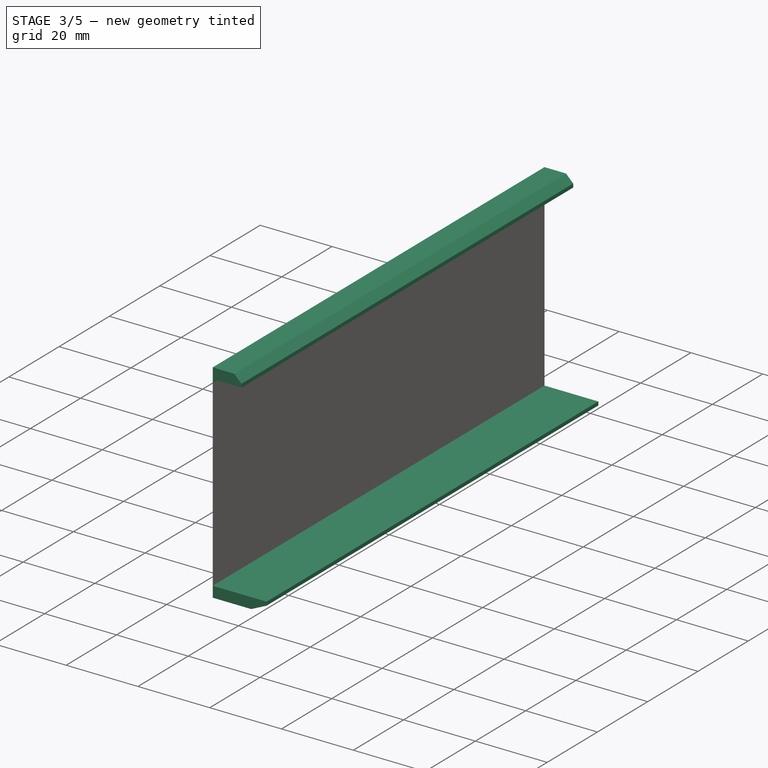
[diagram: stage 3 of 5 — iso view after this stage's code; geometry added in this stage tinted green]
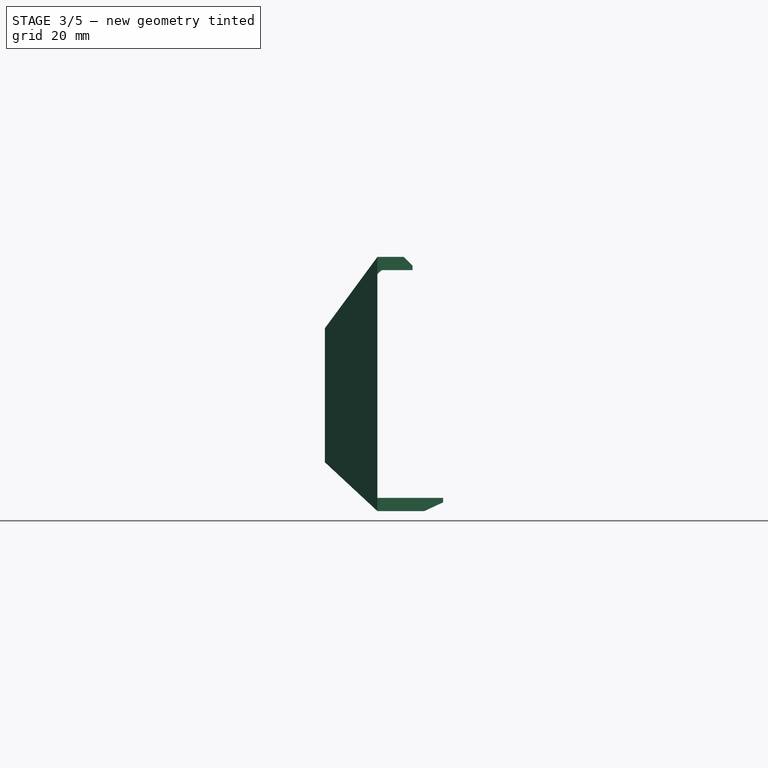
[diagram: stage 3 of 5 — front view after this stage's code; geometry added in this stage tinted green]
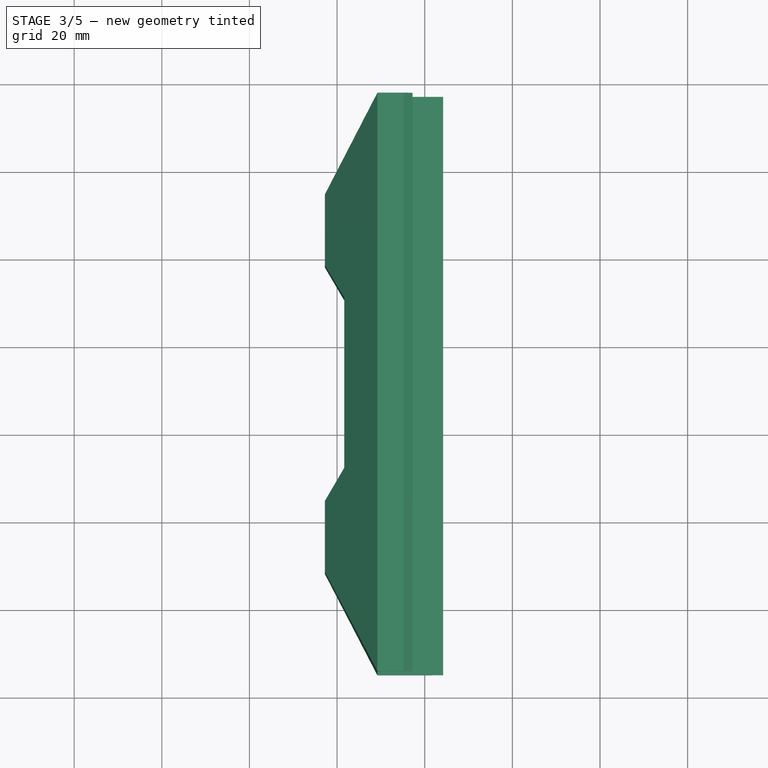
[diagram: stage 3 of 5 — top view after this stage's code; geometry added in this stage tinted green]
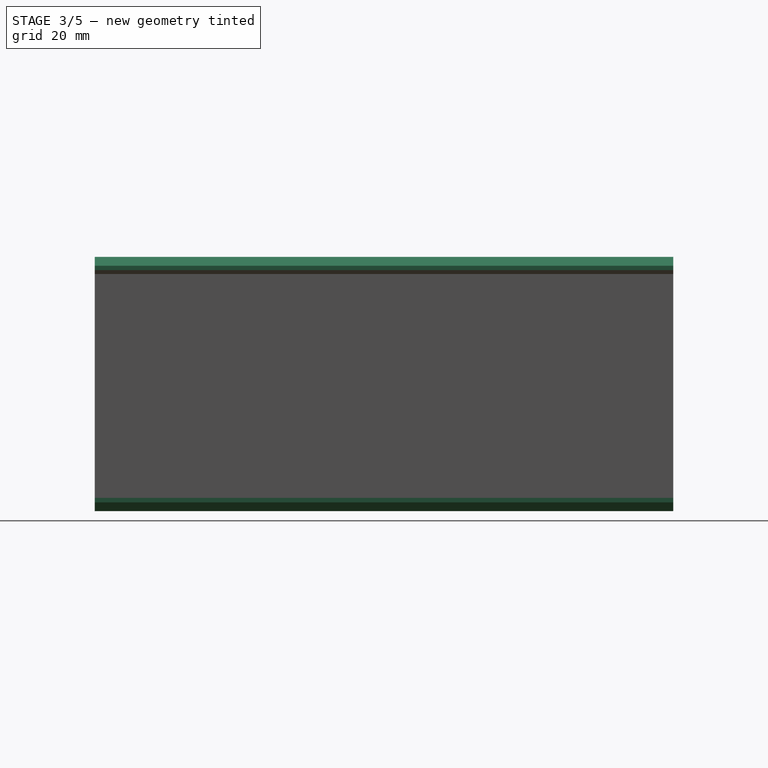
[diagram: stage 3 of 5 — right view after this stage's code; geometry added in this stage tinted green]
FEATURE [App::Point] Origin036  label="Origin048"
  Role = Origin
FEATURE [PartDesign::SubShapeBinder] Binder013
  BindCopyOnChange = 0
  BindMode = 0
  ClaimChildren = false
  Context = -> Body015 [Binder013.]
  Fuse = false
  MakeFace = true
  OffsetFill = false
  OffsetIntersection = false
  OffsetJoinType = 0
  OffsetOpenResult = false
  PartialLoad = false
  Refine = true
  Relative = true
  Support = -> [Body009[Chamfer008.Face4]]
  _Version = 2
FEATURE [Sketcher::SketchObject] Sketch084
  ArcFitTolerance = 1e-06
  AttachmentSupport = -> [Binder013]
  ExternalGeometry = -> [Binder013]
  ExternalTypes = [0,0,0,0,0,0,0,0]
  FullyConstrained = true
  MakeInternals = false
  MapMode = 5
  Placement = pos=(0,0,-47) rot=(1,0,0;3.14159rad)
FEATURE [PartDesign::Pad] Pad030
  Direction = (0,0,-1)
  Length = 2
  Length2 = 10
  Profile = -> Sketch084
  ReferenceAxis = -> Sketch084 [N_Axis]
  Refine = true
  SideType = 0
  Suppressed = false
  Type = 0
  Type2 = 0
FEATURE [Sketcher::SketchObject] Sketch085
  ArcFitTolerance = 1e-06
  AttachmentSupport = -> [Pad030]
  ExternalGeometry = -> [Binder013]
  ExternalTypes = [0,0,0,0,0,0,0,0]
  FullyConstrained = true
  MakeInternals = false
  MapMode = 5
  Placement = pos=(0,0,-47) rot=(0,0,1;0rad)
FEATURE [PartDesign::Pad] Pad031
  BaseFeature = -> Pad030
  Direction = (0,0,1)
  Length = 3
  Length2 = 10
  Profile = -> Sketch085
  ReferenceAxis = -> Sketch085 [N_Axis]
  Refine = true
  SideType = 0
  Suppressed = false
  Type = 0
  Type2 = 0
FEATURE [Sketcher::SketchObject] Sketch086
  ArcFitTolerance = 1e-06
  AttachmentSupport = -> [Origin035]
  ExternalGeometry = -> [Pad031]
  ExternalTypes = [1]
  FullyConstrained = true
  MakeInternals = false
  MapMode = 5
  Placement = pos=(0,0,0) rot=(1,0,0;1.5708rad)
  sketch-geometry (2):
    g0: LineSegment StartX=-88.0558 StartY=-44 StartZ=0 EndX=-87.7934 EndY=-44 EndZ=0
    g1: LineSegment StartX=-87.7934 StartY=-44 StartZ=0 EndX=-88.0558 EndY=-47 EndZ=0
  constraints (5):
    c: Coincident(g-3,g0)
    c: Horizontal(g0)
    c: Coincident(g0,g1)
    c: Coincident(g1,g-3)
    c: Angle(g1,g-3) = 0.0872665
FEATURE [Sketcher::SketchObject] Sketch087
  ArcFitTolerance = 1e-06
  AttachmentSupport = -> [Pad031]
  ExternalGeometry = -> [Pad031]
  ExternalTypes = [0]
  FullyConstrained = true
  MakeInternals = false
  MapMode = 5
  Placement = pos=(0,0,-44) rot=(0,0,1;0rad)
FEATURE [PartDesign::SubtractivePipe] SubtractivePipe003
  AuxiliaryCurvilinear = true
  AuxiliarySpineTangent = false
  BaseFeature = -> Pad031
  Binormal = (0,0,0)
  Mode = 0
  Profile = -> Sketch086
  Refine = true
  Spine = -> Sketch087
  SpineTangent = false
  Suppressed = false
  Transformation = 0
  Transition = 0
FEATURE [PartDesign::SubShapeBinder] Binder014
  BindCopyOnChange = 0
  BindMode = 0
  ClaimChildren = false
  Context = -> Body015 [Binder014.]
  Fuse = false
  MakeFace = true
  OffsetFill = false
  OffsetIntersection = false
  OffsetJoinType = 0
  OffsetOpenResult = false
  PartialLoad = false
  Refine = true
  Relative = true
  Support = -> [Body009[Chamfer008.Face39,Chamfer008.Face41,Chamfer008.Face37,Chamfer008.Face35]]
  _Version = 2
FEATURE [Sketcher::SketchObject] Sketch088
  ArcFitTolerance = 1e-06
  AttachmentSupport = -> [SubtractivePipe003]
  ExternalGeometry = -> [Binder014]
  ExternalTypes = [0,0,0,0]
  FullyConstrained = true
  MakeInternals = false
  MapMode = 5
  Placement = pos=(0,0,-49) rot=(1,0,0;3.14159rad)
FEATURE [PartDesign::Hole] Hole018
  BaseFeature = -> SubtractivePipe003
  BaseProfileType = 7
  CustomThreadClearance = 0
  Depth = 25
  DepthType = 0
  Diameter = 3.5
  DrillForDepth = false
  DrillPoint = 1
  DrillPointAngle = 118
  HoleCutCountersinkAngle = 90
  HoleCutCustomValues = false
  HoleCutDepth = 2.975
  HoleCutDiameter = 5.95
  HoleCutType = 2
  ModelThread = false
  Profile = -> Sketch088
  Refine = true
  Suppressed = false
  Tapered = false
  TaperedAngle = 90
  ThreadClass = 0
  ThreadDepth = 25
  ThreadDepthType = 0
  ThreadDiameter = 3.5
  ThreadDirection = 0
  ThreadFit = 0
  ThreadSize = 0
  ThreadType = 0
  Threaded = false
  UseCustomThreadClearance = false
FEATURE [PartDesign::SubShapeBinder] Binder015
  BindCopyOnChange = 0
  BindMode = 0
  ClaimChildren = false
  Context = -> Body015 [Binder015.]
  Fuse = false
  MakeFace = true
  OffsetFill = false
  OffsetIntersection = false
  OffsetJoinType = 0
  OffsetOpenResult = false
  PartialLoad = false
  Refine = true
  Relative = true
  _Version = 2
FEATURE [Sketcher::SketchObject] Sketch089
  ArcFitTolerance = 1e-06
  AttachmentSupport = -> [Hole018]
  ExternalGeometry = -> [Binder015]
  ExternalTypes = [0]
  FullyConstrained = true
  MakeInternals = false
  MapMode = 5
  Placement = pos=(0,0,-44) rot=(0,0,1;0rad)
FEATURE [PartDesign::Pocket] Pocket016
  BaseFeature = -> Hole018
  Direction = (0,0,-1)
  Length = 5
  Length2 = 5
  Profile = -> Sketch089
  ReferenceAxis = -> Sketch089 [N_Axis]
  Refine = true
  SideType = 0
  Suppressed = false
  Type = 0
  Type2 = 0
FEATURE [Sketcher::SketchObject] Sketch090
  ArcFitTolerance = 1e-06
  AttachmentSupport = -> [Pocket016]
  ExternalGeometry = -> [Binder015]
  ExternalTypes = [0,0,0,0]
  FullyConstrained = true
  MakeInternals = false
  MapMode = 5
  Placement = pos=(0,0,-44) rot=(0,0,1;0rad)
FEATURE [PartDesign::Pad] Pad032
  BaseFeature = -> Pocket016
  Direction = (0,0,1)
  Length = 8
  Length2 = 10
  Profile = -> Sketch090
  ReferenceAxis = -> Sketch090 [N_Axis]
  Refine = true
  SideType = 0
  Suppressed = false
  Type = 0
  Type2 = 0
FEATURE [Sketcher::SketchObject] Sketch091
  ArcFitTolerance = 1e-06
  AttachmentSupport = -> [Pad032]
  ExternalGeometry = -> [Pad032]
  ExternalTypes = [0]
  FullyConstrained = true
  MakeInternals = false
  MapMode = 5
  Placement = pos=(-25,0,0) rot=(0.57735,-0.57735,-0.57735;2.0944rad)
  sketch-geometry (2):
    g0: Circle CenterX=-15.19 CenterY=-35.5 CenterZ=0 NormalX=0 NormalY=0 NormalZ=1 AngleXU=0 Radius=3.25
    g1: LineSegment [constr] StartX=-15.19 StartY=-36 StartZ=0 EndX=-15.19 EndY=-35.5 EndZ=0
  constraints (5):
    c: Symmetric(g-3,g-3,g1)
    c: Vertical(g1)
    c: DistanceY(g1,g1) = 0.5
    c: Coincident(g0,g1)
    c: Diameter(g0) = 6.5
FEATURE [PartDesign::Pocket] Pocket017
  BaseFeature = -> Pad032
  Direction = (1,0,0)
  Length = 5
  Length2 = 5
  Profile = -> Sketch091
  ReferenceAxis = -> Sketch091 [N_Axis]
  Refine = true
  SideType = 0
  Suppressed = false
  Type = 1
  Type2 = 0
FEATURE [PartDesign::SubShapeBinder] Binder016
  BindCopyOnChange = 0
  BindMode = 0
  ClaimChildren = false
  Context = -> Body015 [Binder016.]
  Fuse = false
  MakeFace = true
  OffsetFill = false
  OffsetIntersection = false
  OffsetJoinType = 0
  OffsetOpenResult = false
  PartialLoad = false
  Refine = true
  Relative = true
  _Version = 2
FEATURE [Sketcher::SketchObject] Sketch092
  ArcFitTolerance = 1e-06
  AttachmentSupport = -> [Pocket017]
  ExternalGeometry = -> [Binder016]
  ExternalTypes = [0,0]
  FullyConstrained = true
  MakeInternals = false
  MapMode = 5
  Placement = pos=(0,0,-36) rot=(0,0,1;0rad)
FEATURE [PartDesign::Hole] Hole019
  BaseFeature = -> Pocket017
  BaseProfileType = 7
  CustomThreadClearance = 0
  Depth = 8
  DepthType = 0
  Diameter = 4
  DrillForDepth = false
  DrillPoint = 0
  DrillPointAngle = 118
  HoleCutCountersinkAngle = 90
  HoleCutCustomValues = false
  HoleCutDepth = 0
  HoleCutDiameter = 0
  HoleCutType = 0
  ModelThread = false
  Profile = -> Sketch092
  Refine = true
  Suppressed = false
  Tapered = false
  TaperedAngle = 90
  ThreadClass = 0
  ThreadDepth = 8
  ThreadDepthType = 0
  ThreadDiameter = 4
  ThreadDirection = 0
  ThreadFit = 0
  ThreadSize = 0
  ThreadType = 0
  Threaded = false
  UseCustomThreadClearance = false
FEATURE [Sketcher::SketchObject] Sketch093
  ArcFitTolerance = 1e-06
  AttachmentSupport = -> [Hole019]
  ExternalGeometry = -> [Hole019]
  ExternalTypes = [0]
  FullyConstrained = true
  MakeInternals = false
  MapMode = 5
  Placement = pos=(0,0,-44) rot=(0,0,1;0rad)
  sketch-geometry (6):
    g0: Circle CenterX=-67.7934 CenterY=31.2685 CenterZ=0 NormalX=0 NormalY=0 NormalZ=1 AngleXU=0 Radius=7.5
    g1: Circle CenterX=72.4066 CenterY=31.2685 CenterZ=0 NormalX=0 NormalY=0 NormalZ=1 AngleXU=0 Radius=7.5
    g2: Circle CenterX=-67.7934 CenterY=-88.9315 CenterZ=0 NormalX=0 NormalY=0 NormalZ=1 AngleXU=0 Radius=7.5
    g3: Circle CenterX=72.4066 CenterY=-88.9315 CenterZ=0 NormalX=0 NormalY=0 NormalZ=1 AngleXU=0 Radius=7.5
    g4: Circle CenterX=-67.7934 CenterY=-28.8315 CenterZ=0 NormalX=0 NormalY=0 NormalZ=1 AngleXU=0 Radius=7.5
    g5: Circle CenterX=72.4066 CenterY=-28.8315 CenterZ=0 NormalX=0 NormalY=0 NormalZ=1 AngleXU=0 Radius=7.5
  constraints (16):
    c: Vertical(g3,g1)
    c: Vertical(g0,g2)
    c: Horizontal(g2,g3)
    c: Horizontal(g0,g1)
    c: Symmetric(g0,g2,g4)
    c: Symmetric(g1,g3,g5)
    c: Equal(g4,g2)
    c: Equal(g2,g3)
    c: Equal(g3,g5)
    c: Equal(g5,g1)
    c: Equal(g1,g0)
    c: DistanceY(g0,g-8) = 10
    c: DistanceX(g-6,g0) = 20
    c: DistanceY(g-5,g2) = 10
    c: DistanceX(g1,g-10) = 20
    c: Diameter(g0) = 15
FEATURE [PartDesign::Pad] Pad033
  BaseFeature = -> Hole019
  Direction = (0,0,1)
  Length = 6
  Length2 = 10
  Profile = -> Sketch093
  ReferenceAxis = -> Sketch093 [N_Axis]
  Refine = true
  SideType = 0
  Suppressed = false
  Type = 0
  Type2 = 0
FEATURE [Sketcher::SketchObject] Sketch094
  ArcFitTolerance = 1e-06
  AttachmentSupport = -> [Pad033]
  ExternalGeometry = -> [Pad033]
  ExternalTypes = [0,0,0,0,0,0]
  FullyConstrained = true
  MakeInternals = false
  MapMode = 5
  Placement = pos=(0,0,-49) rot=(1,0,0;3.14159rad)
FEATURE [PartDesign::Hole] Hole020
  BaseFeature = -> Pad033
  BaseProfileType = 7
  CustomThreadClearance = 0
  Depth = 9
  DepthType = 0
  Diameter = 5.5
  DrillForDepth = false
  DrillPoint = 0
  DrillPointAngle = 118
  HoleCutCountersinkAngle = 90
  HoleCutCustomValues = false
  HoleCutDepth = 0
  HoleCutDiameter = 0
  HoleCutType = 0
  ModelThread = false
  Profile = -> Sketch094
  Refine = true
  Suppressed = false
  Tapered = false
  TaperedAngle = 90
  ThreadClass = 0
  ThreadDepth = 9
  ThreadDepthType = 0
  ThreadDiameter = 5.5
  ThreadDirection = 0
  ThreadFit = 0
  ThreadSize = 0
  ThreadType = 0
  Threaded = false
  UseCustomThreadClearance = false
FEATURE [PartDesign::Fillet] Fillet005
  Base = -> Hole020 [Edge107,Edge105,Edge101,Edge103,Edge121,Edge123]
  BaseFeature = -> Hole020
  Radius = 3
  Refine = true
  SupportTransform = false
  Suppressed = false
  UseAllEdges = false
FEATURE [PartDesign::Chamfer] Chamfer009
  Angle = 45
  Base = -> Fillet005 [Edge18,Edge53]
  BaseFeature = -> Fillet005
  ChamferType = 0
  FlipDirection = false
  Refine = true
  Size = 1
  Size2 = 1
  SupportTransform = false
  Suppressed = false
  UseAllEdges = false
FEATURE [PartDesign::Body] Body015  label="case_lower"
  AllowCompound = false
  Group = -> [Binder013,Sketch084,Pad030,Sketch085,Pad031,Sketch086,Sketch087,SubtractivePipe003,Binder014,Sketch088,Hole018,Binder015,Sketch089,Pocket016,Sketch090,Pad032,Sketch091,Pocket017,Binder016,Sketch092,Hole019,Sketch093,Pad033,Sketch094,Hole020,Fillet005,Chamfer009]
  Origin = -> Origin035
  Tip = -> Chamfer009
FEATURE [App::Point] Origin038  label="Origin050"
  Role = Origin
FEATURE [PartDesign::SubShapeBinder] Binder017
  BindCopyOnChange = 0
  BindMode = 0
  ClaimChildren = false
  Context = -> Body016 [Binder017.]
  Fuse = false
  MakeFace = true
  OffsetFill = false
  OffsetIntersection = false
  OffsetJoinType = 0
  OffsetOpenResult = false
  PartialLoad = false
  Refine = true
  Relative = true
  Support = -> [Body015[Chamfer009.Face49],Body009[Chamfer008.Face8,Chamfer008.Face1]]
  _Version = 2
FEATURE [Sketcher::SketchObject] Sketch095
  ArcFitTolerance = 1e-06
  AttachmentOffset = pos=(0,0,-37.17) rot=(0,0,1;0rad)
  AttachmentSupport = -> [Origin037]
  ExternalGeometry = -> [Binder017]
  ExternalTypes = [1,1]
  FullyConstrained = false
  MakeInternals = false
  MapMode = 5
  Placement = pos=(0,37.17,-8.3e-15) rot=(1,0,0;1.5708rad)
  sketch-geometry (13):
    g0: LineSegment StartX=-82.7934 StartY=4 StartZ=0 EndX=-84.7934 EndY=6 EndZ=0
    g1: LineSegment StartX=-84.7934 StartY=6 StartZ=0 EndX=-90.7934 EndY=6 EndZ=0
    g2: LineSegment StartX=-90.7934 StartY=6 StartZ=0 EndX=-102.793 EndY=-10.2841 EndZ=0
    g3: LineSegment StartX=-102.793 StartY=-40.8524 StartZ=0 EndX=-90.7934 EndY=-52 EndZ=0
    g4: LineSegment StartX=-90.7934 StartY=-52 StartZ=0 EndX=-80.0824 EndY=-52 EndZ=0
    g5: LineSegment StartX=-80.0824 StartY=-52 StartZ=0 EndX=-75.7934 EndY=-50 EndZ=0
    g6: LineSegment StartX=-75.7934 StartY=-50 StartZ=0 EndX=-75.7934 EndY=-49 EndZ=0
    g7: LineSegment StartX=-90.7934 StartY=-49 StartZ=0 EndX=-90.7934 EndY=2.10809 EndZ=0
    g8: LineSegment StartX=-90.7934 StartY=2.10809 StartZ=0 EndX=-89.7934 EndY=3 EndZ=0
    g9: LineSegment StartX=-82.7934 StartY=3 StartZ=0 EndX=-82.7934 EndY=4 EndZ=0
    g10: LineSegment StartX=-75.7934 StartY=-49 StartZ=0 EndX=-90.7934 EndY=-49 EndZ=0
    g11: LineSegment StartX=-89.7934 StartY=3 StartZ=0 EndX=-82.7934 EndY=3 EndZ=0
    g12: LineSegment StartX=-102.793 StartY=-10.2841 StartZ=0 EndX=-102.793 EndY=-40.8524 EndZ=0
  constraints (34):
    c: Coincident(g0,g1)
    c: Horizontal(g1)
    c: Coincident(g1,g2)
    c: Coincident(g12,g3)
    c: Coincident(g3,g4)
    c: Horizontal(g4)
    c: Coincident(g4,g5)
    c: Coincident(g5,g6)
    c: Vertical(g6)
    c: Vertical(g7)
    c: Coincident(g7,g8)
    c: Coincident(g9,g0)
    c: Vertical(g9)
    c: Angle(g1,g0) = 2.35619
    c: DistanceY(g8,g1) = 3
    c: DistanceX(g2,g7) = 12
    c: Vertical(g3,g7)
    c: DistanceY(g3,g7) = 3
    c: Angle(g5,g4) = 2.70526
    c: DistanceY(g6,g6) = 1
    c: DistanceY(g9,g9) = 1
    c: DistanceX(g7,g9) = 8
    c: DistanceX(g7,g6) = 15
    c: Coincident(g10,g6)
    c: Coincident(g10,g7)
    c: Horizontal(g10)
    c: Coincident(g11,g8)
    c: Coincident(g11,g9)
    c: Horizontal(g11)
    c: Vertical(g7,g1)
    c: Coincident(g8,g-3)
    c: Coincident(g7,g-5)
    c: Vertical(g12)
    c: Coincident(g12,g2)
FEATURE [PartDesign::Pad] Pad034
  Direction = (0,-1,2e-16)
  Length = 132
  Length2 = 10
  Profile = -> Sketch095
  ReferenceAxis = -> Sketch095 [N_Axis]
  Refine = true
  SideType = 0
  Suppressed = false
  Type = 0
  Type2 = 0
FEATURE [Sketcher::SketchObject] Sketch096
  ArcFitTolerance = 1e-06
  AttachmentSupport = -> [Pad034]
  ExternalGeometry = -> [Pad034]
  ExternalTypes = [0,0]
  FullyConstrained = false
  MakeInternals = false
  MapMode = 5
  Placement = pos=(0,1.3e-15,6) rot=(0,0,1;0rad)
  sketch-geometry (10):
    g0: LineSegment StartX=-90.7934 StartY=37.17 StartZ=0 EndX=-102.793 EndY=14.2086 EndZ=0
    g1: LineSegment StartX=-102.793 StartY=14.2086 StartZ=0 EndX=-102.793 EndY=-1.91244 EndZ=0
    g2: LineSegment StartX=-102.793 StartY=-1.91244 StartZ=0 EndX=-98.3642 EndY=-9.38391 EndZ=0
    g3: LineSegment StartX=-98.3642 StartY=-9.38391 StartZ=0 EndX=-98.3642 EndY=-48.2761 EndZ=0
    g4: LineSegment StartX=-98.3642 StartY=-48.2761 StartZ=0 EndX=-102.793 EndY=-55.7476 EndZ=0
    g5: LineSegment StartX=-102.793 StartY=-55.7476 StartZ=0 EndX=-102.793 EndY=-71.8686 EndZ=0
    g6: LineSegment StartX=-102.793 StartY=-71.8686 StartZ=0 EndX=-90.7934 EndY=-94.83 EndZ=0
    g7: LineSegment StartX=-90.7934 StartY=-94.83 StartZ=0 EndX=-116.828 EndY=-94.83 EndZ=0
    g8: LineSegment StartX=-116.828 StartY=-94.83 StartZ=0 EndX=-116.828 EndY=37.17 EndZ=0
    g9: LineSegment StartX=-116.828 StartY=37.17 StartZ=0 EndX=-90.7934 EndY=37.17 EndZ=0
  constraints (23):
    c: Coincident(g-9,g0)
    c: PointOnObject(g0,g-8)
    c: Coincident(g0,g1)
    c: PointOnObject(g1,g-8)
    c: Coincident(g1,g2)
    c: Coincident(g2,g3)
    c: Vertical(g3)
    c: Coincident(g3,g4)
    c: PointOnObject(g4,g-8)
    c: Coincident(g4,g5)
    c: PointOnObject(g5,g-8)
    c: Coincident(g5,g6)
    c: Coincident(g6,g-10)
    c: Coincident(g6,g7)
    c: Horizontal(g7)
    c: Coincident(g7,g8)
    c: Vertical(g8)
    c: Coincident(g8,g9)
    c: Horizontal(g9)
    c: Equal(g1,g5)
    c: Equal(g0,g6)
    c: Equal(g2,g4)
    c: Coincident(g9,g0)
FEATURE [PartDesign::Pocket] Pocket018
  BaseFeature = -> Pad034
  Direction = (0,0,-1)
  Length = 72.1
  Length2 = 5
  Profile = -> Sketch096
  ReferenceAxis = -> Sketch096 [N_Axis]
  Refine = true
  SideType = 0
  Suppressed = false
  Type = 0
  Type2 = 0
FEATURE [PartDesign::Pocket] Pocket022
  BaseFeature = -> Chamfer008
  Direction = (0,0,1)
  Length = 5
  Length2 = 5
  Profile = -> Chamfer008 [Face143]
  Refine = true
  SideType = 0
  Suppressed = false
  Type = 0
  Type2 = 0
FEATURE [Part::DatumPlane] DatumPlane004
  AttachmentOffset = pos=(0,0,0) rot=(0,0,1;3.14159rad)
  AttachmentSupport = -> [Pocket022]
  MapMode = 13
  Placement = pos=(-83.6934,-53.1982,-30.6667) rot=(0.57735,-0.57735,0.57735;4.18879rad)
FEATURE [Sketcher::SketchObject] Sketch104
  ArcFitTolerance = 1e-06
  AttachmentSupport = -> [DatumPlane004]
  ExternalGeometry = -> [Pocket022]
  ExternalTypes = [0]
  FullyConstrained = true
  MakeInternals = false
  MapMode = 5
  Placement = pos=(-83.6934,-53.1982,-30.6667) rot=(0.57735,-0.57735,0.57735;4.18879rad)
  sketch-geometry (4):
    g0: LineSegment StartX=48.7333 StartY=-32.6667 StartZ=0 EndX=53.7333 EndY=-23.4517 EndZ=0
    g1: LineSegment StartX=53.7333 StartY=-23.4517 StartZ=0 EndX=53.7333 EndY=7.11833 EndZ=0
    g2: LineSegment StartX=53.7333 StartY=7.11833 StartZ=0 EndX=48.7333 EndY=16.3333 EndZ=0
    g3: LineSegment StartX=48.7333 StartY=16.3333 StartZ=0 EndX=48.7333 EndY=-32.6667 EndZ=0
  constraints (10):
    c: Coincident(g-3,g0)
    c: Coincident(g0,g1)
    c: Vertical(g1)
    c: Coincident(g1,g2)
    c: Coincident(g2,g3)
    c: Coincident(g3,g0)
    c: Coincident(g2,g-3)
    c: Equal(g0,g2)
    c: DistanceX(g2,g1) = 5
    c: DistanceY(g1,g1) = 30.57
FEATURE [PartDesign::Pad] Pad040
  BaseFeature = -> Pocket022
  Direction = (1,0,0)
  Length = 172
  Length2 = 10
  Profile = -> Sketch104
  ReferenceAxis = -> Sketch104 [N_Axis]
  Refine = true
  SideType = 0
  Suppressed = false
  Type = 0
  Type2 = 0
FEATURE [Sketcher::SketchObject] Sketch105
  ArcFitTolerance = 1e-06
  AttachmentSupport = -> [Pad040]
  ExternalGeometry = -> [Pad040]
  ExternalTypes = [0,0]
  FullyConstrained = false
  MakeInternals = false
  MapMode = 5
  Placement = pos=(0,0,3) rot=(0,0,1;0rad)
  sketch-geometry (13):
    g0: LineSegment StartX=-83.6934 StartY=-102.832 StartZ=0 EndX=-57.6934 EndY=-106.932 EndZ=0
    g1: LineSegment StartX=-57.6934 StartY=-106.932 StartZ=0 EndX=-30.6934 EndY=-106.932 EndZ=0
    g2: LineSegment StartX=62.3066 StartY=-106.932 StartZ=0 EndX=88.3066 EndY=-102.832 EndZ=0
    g3: LineSegment [constr] StartX=2.30662 StartY=-101.932 StartZ=0 EndX=2.30662 EndY=-106.932 EndZ=0
    g4: LineSegment StartX=88.3066 StartY=-102.832 StartZ=0 EndX=96.1966 EndY=-102.832 EndZ=0
    g5: LineSegment StartX=96.1966 StartY=-102.832 StartZ=0 EndX=96.1966 EndY=-117.832 EndZ=0
    g6: LineSegment StartX=96.1966 StartY=-117.832 StartZ=0 EndX=-91.5834 EndY=-117.832 EndZ=0
    g7: LineSegment StartX=-91.5834 StartY=-117.832 StartZ=0 EndX=-91.5834 EndY=-102.832 EndZ=0
    g8: LineSegment StartX=-91.5834 StartY=-102.832 StartZ=0 EndX=-83.6934 EndY=-102.832 EndZ=0
    g9: LineSegment StartX=-30.6934 StartY=-106.932 StartZ=0 EndX=-12.6934 EndY=-102.444 EndZ=0
    g10: LineSegment StartX=-12.6934 StartY=-102.444 StartZ=0 EndX=17.3066 EndY=-102.444 EndZ=0
    g11: LineSegment StartX=17.3066 StartY=-102.444 StartZ=0 EndX=35.3066 EndY=-106.932 EndZ=0
    g12: LineSegment StartX=35.3066 StartY=-106.932 StartZ=0 EndX=62.3066 EndY=-106.932 EndZ=0
  constraints (35):
    c: PointOnObject(g0,g-4)
    c: Coincident(g0,g1)
    c: PointOnObject(g12,g-4)
    c: Coincident(g12,g2)
    c: Symmetric(g-3,g-3,g3)
    c: Symmetric(g0,g12,g3)
    c: DistanceX(g1,g12) = 120
    c: Equal(g2,g0)
    c: Coincident(g2,g4)
    c: Horizontal(g4)
    c: Coincident(g4,g5)
    c: Vertical(g5)
    c: Coincident(g5,g6)
    c: Coincident(g6,g7)
    c: Vertical(g7)
    c: Coincident(g7,g8)
    c: Coincident(g8,g0)
    c: Horizontal(g8)
    c: Symmetric(g6,g5,g3)
    c: DistanceY(g7,g7) = 15
    c: DistanceX(g0,g2) = 172
    c: Coincident(g9,g10)
    c: Coincident(g10,g11)
    c: Equal(g11,g9)
    c: Symmetric(g9,g10,g3)
    c: DistanceX(g10,g10) = 30
    c: DistanceX(g9,g11) = 66
    c: Coincident(g11,g12)
    c: Coincident(g9,g1)
    c: PointOnObject(g11,g-4)
    c: PointOnObject(g1,g-4)
    c: Angle(g9,g1) = 2.89725
    c: DistanceY(g0,g-3) = 0.9
    c: DistanceX(g6,g6) = 187.78
    c: Horizontal(g4,g0)
FEATURE [PartDesign::Pocket] Pocket023
  BaseFeature = -> Pad040
  Direction = (0,0,-1)
  Length = 50
  Length2 = 5
  Profile = -> Sketch105
  ReferenceAxis = -> Sketch105 [N_Axis]
  Refine = true
  SideType = 0
  Suppressed = false
  Type = 0
  Type2 = 0
FEATURE [PartDesign::Fillet] Fillet011
  Base = -> Pocket023 [Edge119,Edge117]
  BaseFeature = -> Pocket023
  Radius = 49.8661
  Refine = true
  SupportTransform = false
  Suppressed = false
  UseAllEdges = false
FEATURE [PartDesign::Fillet] Fillet012
  Base = -> Fillet011 [Edge45,Edge29,Edge15,Edge18]
  BaseFeature = -> Fillet011
  Radius = 17
  Refine = true
  SupportTransform = false
  Suppressed = false
  UseAllEdges = false
FEATURE [PartDesign::Body] Body009  label="case_upper"
  AllowCompound = false
  Group = -> [Sketch032,Binder001,Pad009,Sketch034,Pocket007,Binder003,Binder004,Binder005,Binder006,Binder007,Binder008,Sketch073,Pad026,Sketch074,Pad027,Sketch075,Hole015,Sketch076,Pocket014,Sketch077,Pocket015,Sketch078,Pad028,Sketch079,Pad029,Sketch080,Hole016,Sketch081,Hole017,Sketch082,Sketch083,SubtractivePipe002,Chamfer008,Pocket022,DatumPlane004,Sketch104,Pad040,Sketch105,Pocket023,Fillet011,Fillet012]
  Origin = -> Origin023
  Tip = -> Fillet012
FEATURE [Part::DatumPlane] DatumPlane001
  AttachmentOffset = pos=(0,0,0) rot=(0.707107,0.707107,0;3.14159rad)
  AttachmentSupport = -> [Body009]
  MapMode = 45
  Placement = pos=(2.30662,-101.932,-22.5) rot=(-1,0,0;4.71239rad)
FEATURE [App::DocumentObjectGroup] Group003  label="case"
  Group = -> [Group002,Group001,Body014,Group,Body008,Body009,Body015,Body016,Binder012,Mirror,DatumPlane001]
note: 3 file-system paths scrubbed to <path> (originals preserved in the JSON sidecar)
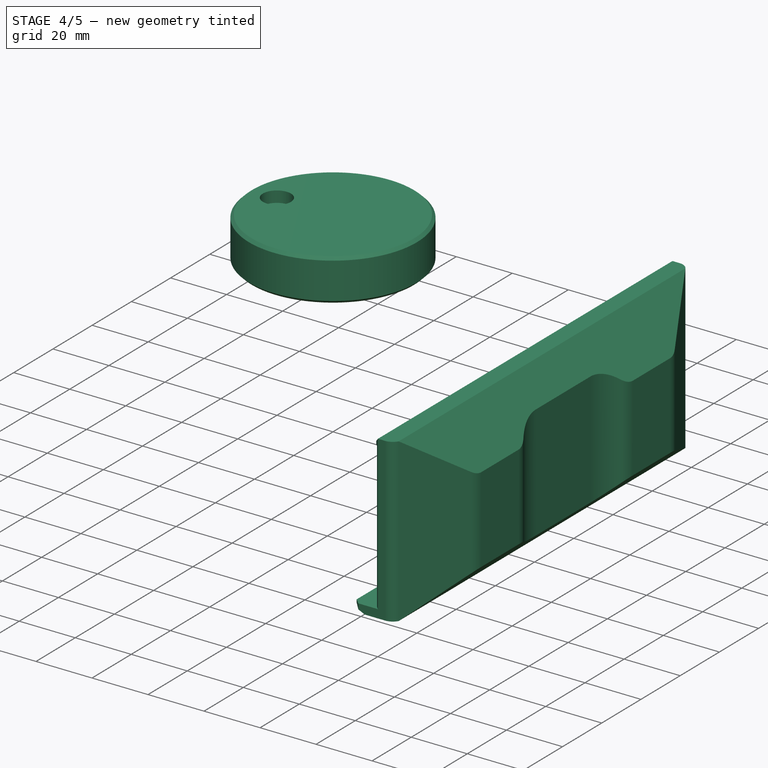
[diagram: stage 4 of 5 — iso view after this stage's code; geometry added in this stage tinted green]
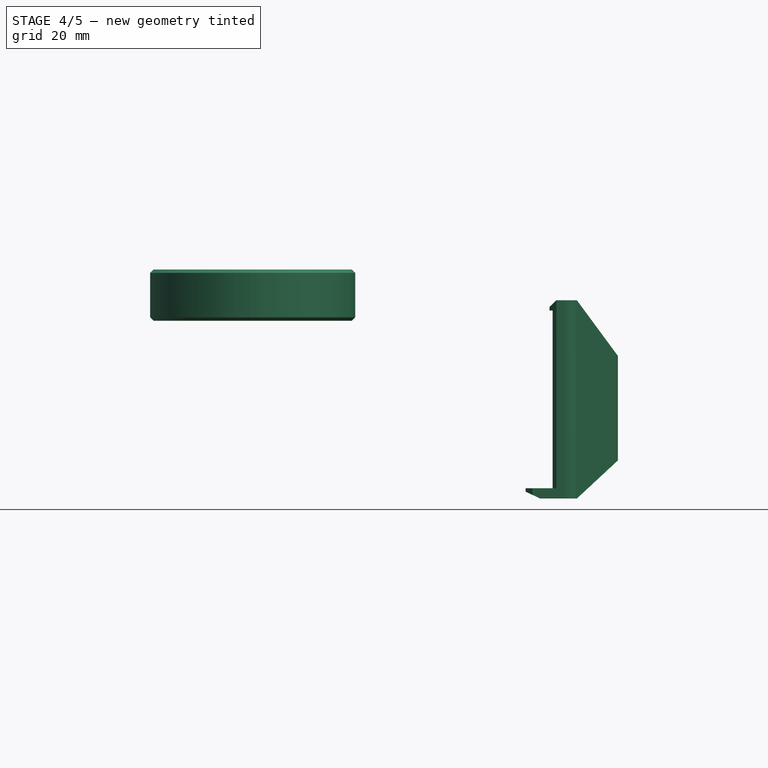
[diagram: stage 4 of 5 — front view after this stage's code; geometry added in this stage tinted green]
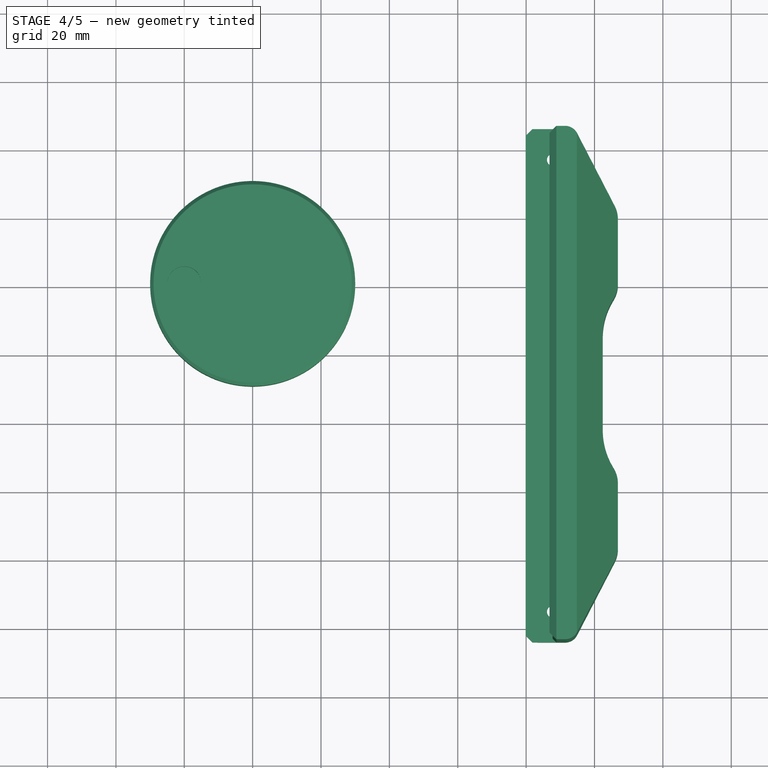
[diagram: stage 4 of 5 — top view after this stage's code; geometry added in this stage tinted green]
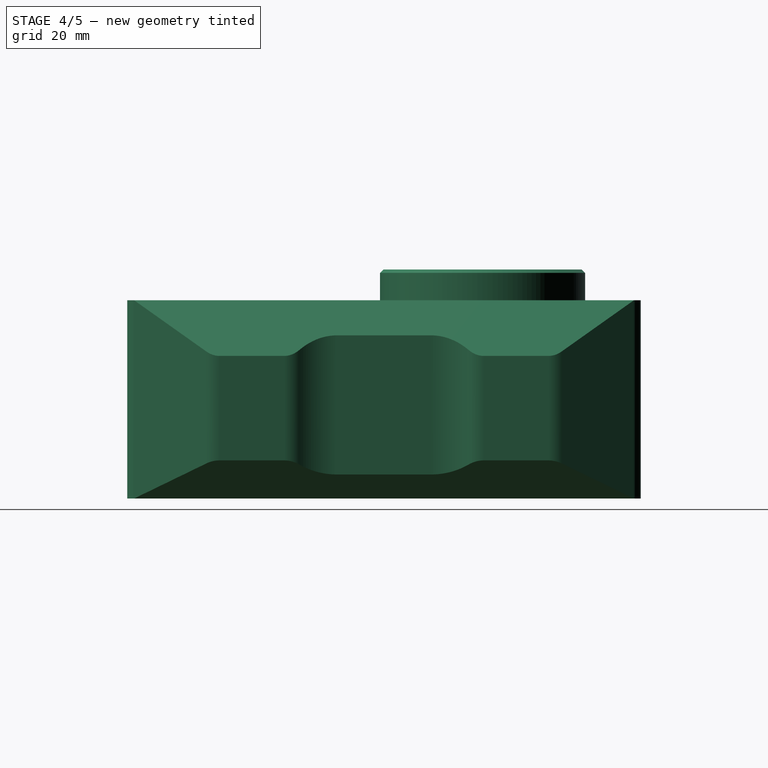
[diagram: stage 4 of 5 — right view after this stage's code; geometry added in this stage tinted green]
FEATURE [PartDesign::Body] Body004  label="knob"
  AllowCompound = false
  Group = -> [Sketch014,Revolution,Sketch015,Sketch016,SubtractivePipe,PolarPattern001,Sketch017,Revolution001]
  Origin = -> Origin012
  Placement = pos=(68,20,3.3) rot=(0,0,1;0rad)
  Tip = -> Revolution001
FEATURE [App::Point] Origin014  label="Origin019"
  Role = Origin
FEATURE [Sketcher::SketchObject] Sketch
  ArcFitTolerance = 1e-06
  AttachmentSupport = -> [Origin]
  ExternalTypes = [0]
  FullyConstrained = true
  MakeInternals = false
  MapMode = 5
  Placement = pos=(0,0,0) rot=(1,0,0;1.5708rad)
  sketch-geometry (6):
    g0: LineSegment StartX=0 StartY=13 StartZ=0 EndX=-3 EndY=13 EndZ=0
    g1: LineSegment StartX=-3 StartY=13 StartZ=0 EndX=-3 EndY=0 EndZ=0
    g2: LineSegment StartX=-3 StartY=0 StartZ=0 EndX=-30 EndY=0 EndZ=0
    g3: LineSegment StartX=-30 StartY=0 StartZ=0 EndX=-30 EndY=15 EndZ=0
    g4: LineSegment StartX=-30 StartY=15 StartZ=0 EndX=0 EndY=15 EndZ=0
    g5: LineSegment StartX=0 StartY=15 StartZ=0 EndX=0 EndY=13 EndZ=0
  constraints (18):
    c: PointOnObject(g0,g-2)
    c: Horizontal(g0)
    c: Coincident(g0,g1)
    c: PointOnObject(g1,g-1)
    c: Vertical(g1)
    c: Coincident(g1,g2)
    c: PointOnObject(g2,g-1)
    c: Coincident(g2,g3)
    c: Vertical(g3)
    c: Coincident(g3,g4)
    c: Horizontal(g4)
    c: Coincident(g4,g5)
    c: Coincident(g5,g0)
    c: Vertical(g5)
    c: DistanceX(g4,g4) = 30
    c: DistanceX(g0,g0) = 3
    c: DistanceY(g1,g1) = 13
    c: DistanceY(g3,g3) = 15
FEATURE [PartDesign::Revolution] Revolution002
  Angle = 360
  Angle2 = 0
  Axis = (0,2e-16,1)
  Base = (0,0,0)
  Profile = -> Sketch
  ReferenceAxis = -> Sketch [V_Axis]
  Refine = true
  Suppressed = false
  Type = 0
FEATURE [PartDesign::Chamfer] Chamfer001
  Angle = 45
  Base = -> Revolution002 [Edge5,Edge4]
  BaseFeature = -> Revolution002
  ChamferType = 0
  FlipDirection = false
  Refine = true
  Size = 1
  Size2 = 1
  SupportTransform = false
  Suppressed = false
  UseAllEdges = false
FEATURE [Sketcher::SketchObject] Sketch018
  ArcFitTolerance = 1e-06
  AttachmentSupport = -> [Chamfer001]
  ExternalGeometry = -> [Chamfer001]
  ExternalTypes = [0]
  FullyConstrained = true
  MakeInternals = false
  MapMode = 5
  Placement = pos=(0,3.3e-15,15) rot=(0,0,1;0rad)
  sketch-geometry (1):
    g0: Circle CenterX=-20 CenterY=0 CenterZ=0 NormalX=0 NormalY=0 NormalZ=1 AngleXU=0 Radius=5
  constraints (3):
    c: PointOnObject(g0,g-1)
    c: Diameter(g0) = 10
    c: DistanceX(g0,g-1) = 20
FEATURE [PartDesign::Pocket] Pocket004
  BaseFeature = -> Chamfer001
  Direction = (0,0,-1)
  Length = 4
  Length2 = 5
  Profile = -> Sketch018
  ReferenceAxis = -> Sketch018 [N_Axis]
  Refine = true
  SideType = 0
  Suppressed = false
  Type = 0
  Type2 = 0
FEATURE [PartDesign::Pad] Pad035
  BaseFeature = -> Pocket018
  Direction = (0,-1,3e-16)
  Length = 7.1
  Length2 = 10
  Profile = -> Pocket018 [Face19,Face10,Face5]
  Refine = true
  SideType = 0
  Suppressed = false
  Type = 0
  Type2 = 0
FEATURE [PartDesign::SubShapeBinder] Binder018
  BindCopyOnChange = 0
  BindMode = 0
  ClaimChildren = false
  Context = -> Body016 [Binder018.]
  Fuse = false
  MakeFace = true
  OffsetFill = false
  OffsetIntersection = false
  OffsetJoinType = 0
  OffsetOpenResult = false
  PartialLoad = false
  Refine = true
  Relative = true
  Support = -> [Body015[Chamfer009.Face49]]
  _Version = 2
FEATURE [PartDesign::Pad] Pad036
  BaseFeature = -> Pad035
  Direction = (0,1,-3e-16)
  Length = 7.1
  Length2 = 10
  Profile = -> Pad035 [Face1,Face7,Face2]
  Refine = true
  SideType = 0
  Suppressed = false
  Type = 0
  Type2 = 0
FEATURE [Sketcher::SketchObject] Sketch097
  ArcFitTolerance = 1e-06
  AttachmentSupport = -> [Pad036]
  ExternalGeometry = -> [Binder018]
  ExternalTypes = [0,0]
  FullyConstrained = true
  MakeInternals = false
  MapMode = 5
  Placement = pos=(0,-1.08e-14,-49) rot=(0,0,1;0rad)
  sketch-geometry (4):
    g0: LineSegment StartX=-90.7934 StartY=-94.8315 StartZ=0 EndX=-90.7934 EndY=-101.932 EndZ=0
    g1: LineSegment StartX=-90.7934 StartY=-101.932 StartZ=0 EndX=-83.6934 EndY=-101.932 EndZ=0
    g2: LineSegment StartX=-83.6934 StartY=44.2685 StartZ=0 EndX=-90.7934 EndY=44.2685 EndZ=0
    g3: LineSegment StartX=-90.7934 StartY=44.2685 StartZ=0 EndX=-90.7934 EndY=37.1685 EndZ=0
  constraints (10):
    c: Vertical(g0)
    c: Coincident(g1,g0)
    c: Coincident(g1,g-4)
    c: Horizontal(g1)
    c: Coincident(g0,g-4)
    c: Coincident(g3,g2)
    c: Vertical(g3)
    c: Coincident(g3,g-3)
    c: Coincident(g2,g-3)
    c: Horizontal(g2)
FEATURE [PartDesign::Pad] Pad037
  BaseFeature = -> Pad036
  Direction = (0,0,1)
  Length = 10
  Length2 = 10
  Profile = -> Sketch097
  ReferenceAxis = -> Sketch097 [N_Axis]
  Refine = true
  SideType = 0
  Suppressed = false
  Type = 2
  Type2 = 0
FEATURE [Sketcher::SketchObject] Sketch098
  ArcFitTolerance = 1e-06
  AttachmentSupport = -> [Pad037]
  ExternalGeometry = -> [Binder018]
  ExternalTypes = [0,0]
  FullyConstrained = true
  MakeInternals = false
  MapMode = 5
  Placement = pos=(0,0,-52) rot=(1,0,0;3.14159rad)
FEATURE [PartDesign::Hole] Hole021
  BaseFeature = -> Pad037
  BaseProfileType = 7
  CustomThreadClearance = 0
  Depth = 25
  DepthType = 0
  Diameter = 3.5
  DrillForDepth = false
  DrillPoint = 1
  DrillPointAngle = 118
  HoleCutCountersinkAngle = 90
  HoleCutCustomValues = false
  HoleCutDepth = 2.975
  HoleCutDiameter = 5.95
  HoleCutType = 2
  ModelThread = false
  Profile = -> Sketch098
  Refine = true
  Suppressed = false
  Tapered = false
  TaperedAngle = 90
  ThreadClass = 0
  ThreadDepth = 25
  ThreadDepthType = 0
  ThreadDiameter = 3.5
  ThreadDirection = 0
  ThreadFit = 0
  ThreadSize = 0
  ThreadType = 0
  Threaded = false
  UseCustomThreadClearance = false
FEATURE [PartDesign::Pad] Pad038
  BaseFeature = -> Hole021
  Direction = (0,-1,3e-16)
  Length = 2
  Length2 = 10
  Profile = -> Hole021 [Face3,Face19,Face5]
  Refine = true
  SideType = 0
  Suppressed = false
  Type = 0
  Type2 = 0
FEATURE [PartDesign::Pad] Pad039
  BaseFeature = -> Pad038
  Direction = (0,1,-3e-16)
  Length = 2
  Length2 = 10
  Profile = -> Pad038 [Face18,Face22,Face20]
  Refine = true
  SideType = 0
  Suppressed = false
  Type = 0
  Type2 = 0
FEATURE [PartDesign::Chamfer] Chamfer010
  Angle = 45
  Base = -> Pad039 [Edge16,Edge4]
  BaseFeature = -> Pad039
  ChamferType = 0
  FlipDirection = false
  Refine = true
  Size = 2
  Size2 = 1
  SupportTransform = false
  Suppressed = false
  UseAllEdges = false
FEATURE [Sketcher::SketchObject] Sketch099
  ArcFitTolerance = 1e-06
  AttachmentSupport = -> [Chamfer010]
  ExternalGeometry = -> [Chamfer010]
  ExternalTypes = [0,0,0,0,0]
  FullyConstrained = true
  MakeInternals = false
  MapMode = 5
  Placement = pos=(1.8e-15,1.4e-15,6) rot=(0,0,1;0rad)
  sketch-geometry (12):
    g0: LineSegment StartX=-102.793 StartY=21.3086 StartZ=0 EndX=-89.7481 EndY=46.27 EndZ=0
    g1: LineSegment StartX=-89.7481 StartY=46.27 StartZ=0 EndX=-84.7934 EndY=46.27 EndZ=0
    g2: LineSegment StartX=-84.7934 StartY=46.27 StartZ=0 EndX=-82.7934 EndY=44.27 EndZ=0
    g3: LineSegment StartX=-82.7934 StartY=44.27 StartZ=0 EndX=-82.7934 EndY=54.27 EndZ=0
    g4: LineSegment StartX=-82.7934 StartY=54.27 StartZ=0 EndX=-107.793 EndY=54.27 EndZ=0
    g5: LineSegment StartX=-107.793 StartY=54.27 StartZ=0 EndX=-107.793 EndY=-111.93 EndZ=0
    g6: LineSegment StartX=-107.793 StartY=-111.93 StartZ=0 EndX=-82.7934 EndY=-111.93 EndZ=0
    g7: LineSegment StartX=-82.7934 StartY=-111.93 StartZ=0 EndX=-82.7934 EndY=-101.93 EndZ=0
    g8: LineSegment StartX=-84.7934 StartY=-103.93 StartZ=0 EndX=-82.7934 EndY=-101.93 EndZ=0
    g9: LineSegment StartX=-84.7934 StartY=-103.93 StartZ=0 EndX=-89.7481 EndY=-103.93 EndZ=0
    g10: LineSegment StartX=-89.7481 StartY=-103.93 StartZ=0 EndX=-102.793 EndY=-78.9686 EndZ=0
    g11: LineSegment StartX=-102.793 StartY=-78.9686 StartZ=0 EndX=-102.793 EndY=21.3086 EndZ=0
  constraints (32):
    c: Coincident(g-6,g0)
    c: PointOnObject(g-6,g0)
    c: PointOnObject(g0,g-7)
    c: Coincident(g1,g0)
    c: Coincident(g1,g-7)
    c: Coincident(g2,g1)
    c: PointOnObject(g2,g-5)
    c: Angle(g1,g2) = 2.35619
    c: Coincident(g2,g3)
    c: Vertical(g3)
    c: Coincident(g3,g4)
    c: Horizontal(g4)
    c: Coincident(g4,g5)
    c: Vertical(g5)
    c: Coincident(g5,g6)
    c: Horizontal(g6)
    c: Coincident(g6,g7)
    c: PointOnObject(g7,g-5)
    c: Vertical(g7)
    c: Coincident(g-4,g8)
    c: Coincident(g8,g9)
    c: PointOnObject(g9,g-4)
    c: Coincident(g9,g10)
    c: Coincident(g10,g-3)
    c: Coincident(g10,g11)
    c: Coincident(g11,g0)
    c: PointOnObject(g-3,g10)
    c: Angle(g8,g9) = 2.35619
    c: Coincident(g7,g8)
    c: Equal(g7,g3)
    c: DistanceY(g3,g3) = 10
    c: DistanceX(g4,g4) = 25
FEATURE [PartDesign::Pocket] Pocket019
  BaseFeature = -> Chamfer010
  Direction = (0,0,-1)
  Length = 5
  Length2 = 5
  Profile = -> Sketch099
  ReferenceAxis = -> Sketch099 [N_Axis]
  Refine = true
  SideType = 0
  Suppressed = false
  Type = 3
  Type2 = 0
  UpToFace = -> Chamfer010 [Face5]
FEATURE [PartDesign::Fillet] Fillet006
  Base = -> Pocket019 [Edge51,Edge49]
  BaseFeature = -> Pocket019
  Radius = 20.7
  Refine = true
  SupportTransform = false
  Suppressed = false
  UseAllEdges = false
FEATURE [PartDesign::Pocket] Pocket020
  BaseFeature = -> Fillet006
  Direction = (0,0,-1)
  Length = 5
  Length2 = 5
  Profile = -> Fillet006 [Face14]
  Refine = true
  SideType = 0
  Suppressed = false
  Type = 0
  Type2 = 0
FEATURE [PartDesign::Fillet] Fillet007
  Base = -> Pocket020 [Edge43]
  BaseFeature = -> Pocket020
  Radius = 4
  Refine = true
  SupportTransform = false
  Suppressed = false
  UseAllEdges = false
FEATURE [Sketcher::SketchObject] Sketch100
  ArcFitTolerance = 1e-06
  AttachmentSupport = -> [Fillet007]
  ExternalGeometry = -> [Fillet007]
  ExternalTypes = [0]
  FullyConstrained = false
  MakeInternals = false
  MapMode = 5
  Placement = pos=(0,-1.25e-14,-52) rot=(1,0,0;3.14159rad)
  sketch-geometry (5):
    g0: LineSegment [constr] StartX=-90.7934 StartY=28.8265 StartZ=0 EndX=-80.0824 EndY=28.83 EndZ=0
    g1: LineSegment StartX=-151.087 StartY=28.8265 StartZ=0 EndX=-151.087 EndY=-66.3251 EndZ=0
    g2: LineSegment StartX=-151.087 StartY=-66.3251 StartZ=0 EndX=-37.3225 EndY=-66.3251 EndZ=0
    g3: LineSegment StartX=-37.3225 StartY=-66.3251 StartZ=0 EndX=-37.3225 EndY=28.8265 EndZ=0
    g4: LineSegment StartX=-37.3225 StartY=28.8265 StartZ=0 EndX=-151.087 EndY=28.8265 EndZ=0
  constraints (11):
    c: Symmetric(g-6,g-6,g0)
    c: Symmetric(g-5,g-5,g0)
    c: Coincident(g1,g2)
    c: Coincident(g2,g3)
    c: Coincident(g3,g4)
    c: Coincident(g4,g1)
    c: Vertical(g1)
    c: Vertical(g3)
    c: Horizontal(g2)
    c: Horizontal(g4)
    c: Horizontal(g1,g0)
FEATURE [PartDesign::Pocket] Pocket021
  BaseFeature = -> Fillet007
  Direction = (0,0,1)
  Length = 101
  Length2 = 5
  Profile = -> Sketch100
  ReferenceAxis = -> Sketch100 [N_Axis]
  Refine = true
  SideType = 0
  Suppressed = false
  Type = 0
  Type2 = 0
FEATURE [Part::DatumPlane] DatumPlane002
  AttachmentSupport = -> [Pocket021]
  MapMode = 13
  Placement = pos=(-95.8406,-28.8265,-14.4135) rot=(1,0,0;1.5708rad)
FEATURE [PartDesign::Mirrored] Mirrored001
  BaseFeature = -> Pocket021
  MirrorPlane = -> DatumPlane002
  Refine = true
  Suppressed = false
  TransformMode = 1
FEATURE [PartDesign::Fillet] Fillet008
  Base = -> Mirrored001 [Edge15,Edge8,Edge60,Edge55]
  BaseFeature = -> Mirrored001
  Radius = 8.29577
  Refine = true
  SupportTransform = false
  Suppressed = false
  UseAllEdges = false
FEATURE [App::Part] Part001  label="encoder_knob"
  Group = -> [Body,Body005,Body017,Cut]
  Origin = -> Origin017
  Placement = pos=(67,-48,91) rot=(0,0,1;0rad)
FEATURE [App::DocumentObjectGroup] Group001  label="knobs"
  Group = -> [Body004,Body007,Body006,Part001]
FEATURE [Part::Mirroring] Mirror  label="side_cover (mirrored)"
  Base = (-1.42855,0.84756,0)
  Normal = (1,0,0)
  Placement = pos=(6.9,0,0) rot=(0,0,1;0rad)
  Source = -> Body016
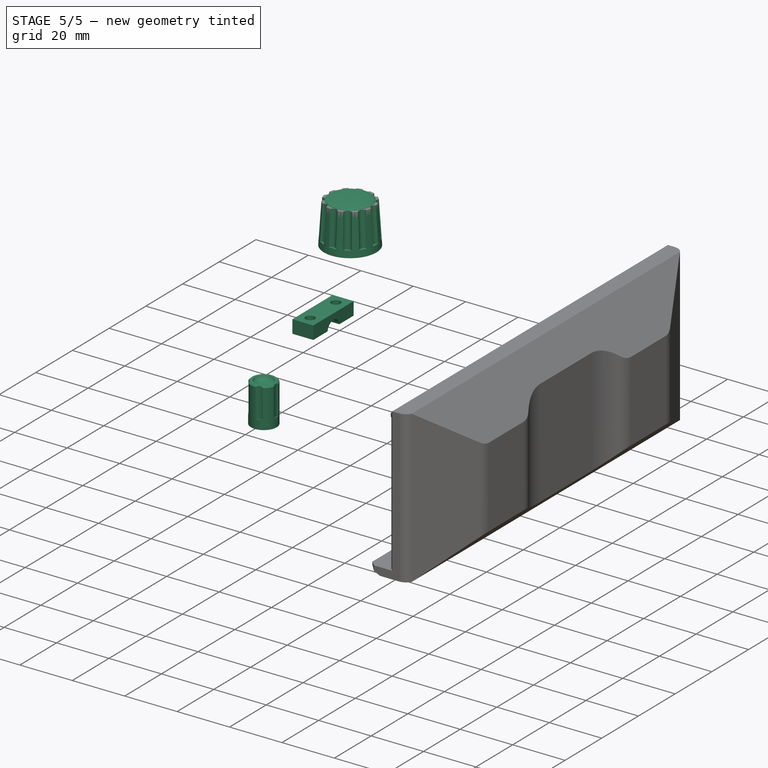
[diagram: stage 5 of 5 — iso view after this stage's code; geometry added in this stage tinted green]
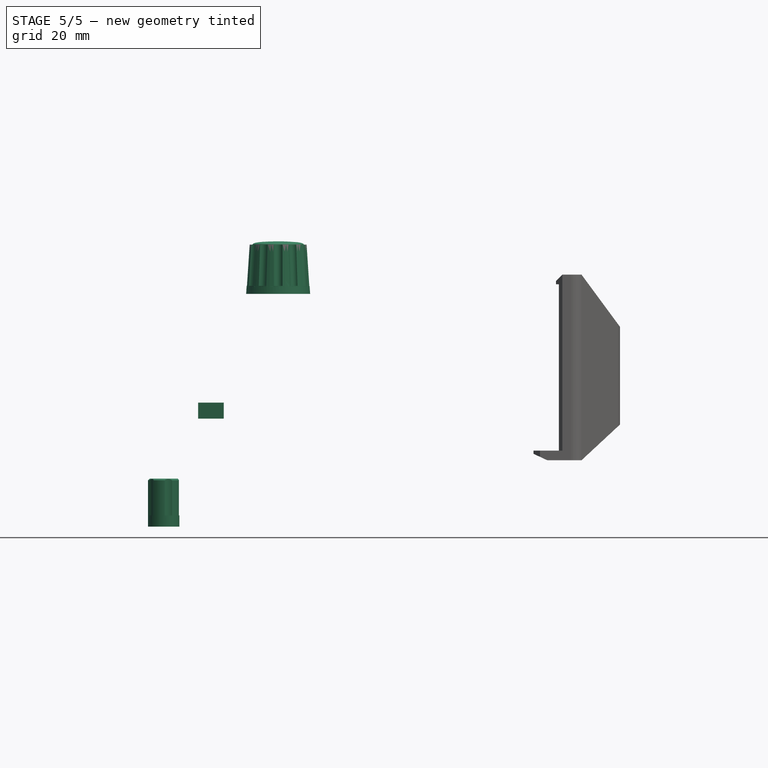
[diagram: stage 5 of 5 — front view after this stage's code; geometry added in this stage tinted green]
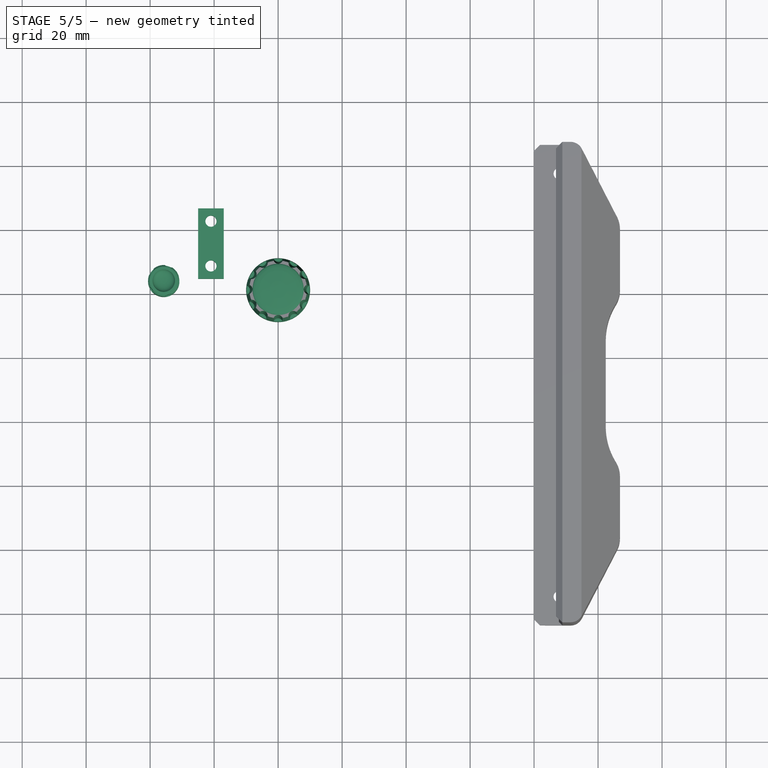
[diagram: stage 5 of 5 — top view after this stage's code; geometry added in this stage tinted green]
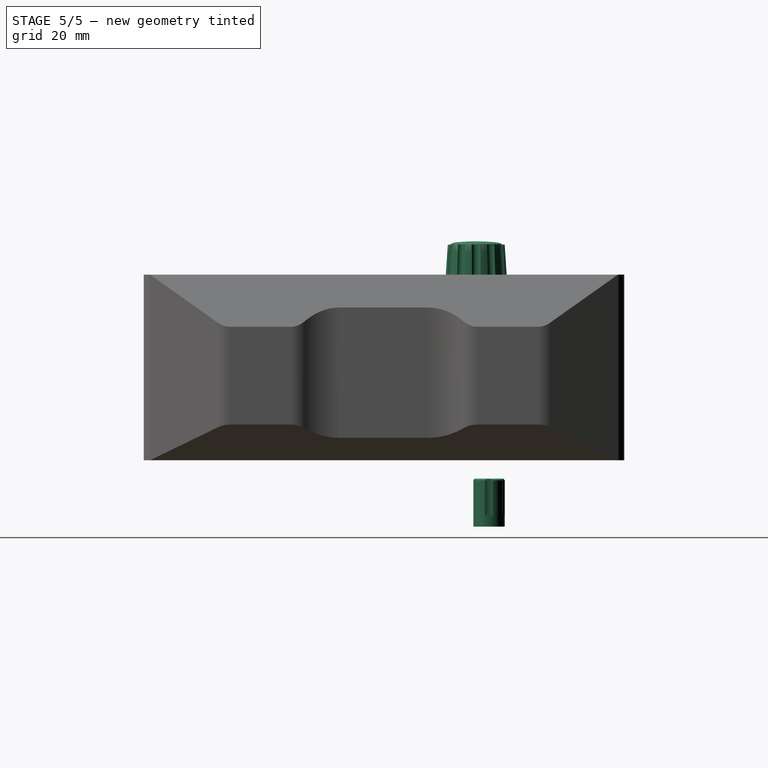
[diagram: stage 5 of 5 — right view after this stage's code; geometry added in this stage tinted green]
FEATURE [PartDesign::Body] Body003  label="OLED"
  AllowCompound = false
  Group = -> [Sketch010,Pad005,Fillet001,Sketch011,Pad006,Sketch012,Pocket002,Sketch013,Pocket003]
  Origin = -> Origin008
  Tip = -> Pocket003
FEATURE [App::Part] Part  label="display"
  Group = -> [Body003,Part__Feature007]
  Origin = -> Origin010
  Placement = pos=(2e-16,9,-2) rot=(0,1,0;3.14159rad)
FEATURE [App::Point] Origin011  label="Origin014"
  Role = Origin
FEATURE [Part::Feature] Ã_Ã_Ã_ÂªÂ_Ã_Ã_Ã_Ã_Ã_001  label="EC001"
  Placement = pos=(0,-80,-11) rot=(1,0,0;1.5708rad)
FEATURE [Part::Feature] Ã_Ã_Ã_ÂªÂ_Ã_Ã_Ã_Ã_Ã_002  label="EC002"
  Placement = pos=(68,20,-8) rot=(1,0,0;1.5708rad)
FEATURE [App::Point] Origin013  label="Origin017"
  Role = Origin
FEATURE [Sketcher::SketchObject] Sketch014
  ArcFitTolerance = 1e-06
  AttachmentSupport = -> [Origin012]
  ExternalTypes = [0]
  FullyConstrained = true
  MakeInternals = false
  MapMode = 5
  Placement = pos=(0,0,0) rot=(1,0,0;1.5708rad)
  sketch-geometry (6):
    g0: LineSegment StartX=0 StartY=10 StartZ=0 EndX=-3 EndY=10 EndZ=0
    g1: LineSegment StartX=-3 StartY=10 StartZ=0 EndX=-3 EndY=0 EndZ=0
    g2: LineSegment StartX=-3 StartY=0 StartZ=0 EndX=-10 EndY=0 EndZ=0
    g3: LineSegment StartX=-10 StartY=0 StartZ=0 EndX=-9 EndY=15.4 EndZ=0
    g4: LineSegment StartX=-9 StartY=15.4 StartZ=0 EndX=0 EndY=15.4 EndZ=0
    g5: LineSegment StartX=0 StartY=15.4 StartZ=0 EndX=0 EndY=10 EndZ=0
  constraints (18):
    c: PointOnObject(g0,g-2)
    c: Horizontal(g0)
    c: Coincident(g0,g1)
    c: Vertical(g1)
    c: Coincident(g1,g2)
    c: Horizontal(g2)
    c: Coincident(g2,g3)
    c: Coincident(g3,g4)
    c: Horizontal(g4)
    c: Coincident(g4,g5)
    c: Coincident(g5,g0)
    c: Vertical(g5)
    c: PointOnObject(g1,g-1)
    c: DistanceY(g-1,g4) = 15.4
    c: DistanceX(g4,g4) = 9
    c: DistanceX(g2,g-1) = 10
    c: DistanceX(g0,g0) = 3
    c: DistanceY(g1,g1) = 10
FEATURE [PartDesign::Revolution] Revolution
  Angle = 360
  Angle2 = 0
  Axis = (0,2e-16,1)
  Base = (0,0,0)
  Profile = -> Sketch014
  ReferenceAxis = -> Sketch014 [V_Axis]
  Refine = true
  Suppressed = false
  Type = 0
FEATURE [Sketcher::SketchObject] Sketch015  label="circle"
  ArcFitTolerance = 1e-06
  AttachmentSupport = -> [Revolution]
  ExternalGeometry = -> [Revolution]
  ExternalTypes = [0]
  FullyConstrained = true
  MakeInternals = false
  MapMode = 5
  Placement = pos=(0,3.4e-15,15.4) rot=(0,0,1;0rad)
  sketch-geometry (3):
    g0: Circle [constr] CenterX=0 CenterY=0 CenterZ=0 NormalX=0 NormalY=0 NormalZ=1 AngleXU=0 Radius=8
    g1: Circle CenterX=-9.5 CenterY=0 CenterZ=0 NormalX=0 NormalY=0 NormalZ=1 AngleXU=0 Radius=1.5
    g2: LineSegment [constr] StartX=0 StartY=1.5 StartZ=0 EndX=-15 EndY=1.5 EndZ=0
  constraints (9):
    c: Coincident(g0,g-3)
    c: PointOnObject(g1,g-1)
    c: Tangent(g0,g1)
    c: Diameter(g0) = 16
    c: PointOnObject(g2,g-2)
    c: Horizontal(g2)
    c: DistanceX(g2,g2) = 15
    c: Tangent(g1,g2)
    c: DistanceY(g-1,g2) = 1.5
FEATURE [Sketcher::SketchObject] Sketch016  label="line"
  ArcFitTolerance = 1e-06
  AttachmentSupport = -> [Origin012]
  ExternalGeometry = -> [Revolution]
  ExternalTypes = [0]
  FullyConstrained = true
  MakeInternals = false
  MapMode = 5
  Placement = pos=(0,0,0) rot=(1,0,0;1.5708rad)
  sketch-geometry (1):
    g0: LineSegment StartX=-9 StartY=15.4 StartZ=0 EndX=-9.83766 EndY=2.5 EndZ=0
  constraints (3):
    c: Coincident(g0,g-3)
    c: PointOnObject(g0,g-3)
    c: DistanceY(g-1,g0) = 2.5
FEATURE [PartDesign::SubtractivePipe] SubtractivePipe
  AuxiliaryCurvilinear = true
  AuxiliarySpineTangent = false
  BaseFeature = -> Revolution
  Binormal = (0,0,0)
  Mode = 0
  Profile = -> Sketch015
  Refine = true
  Spine = -> Sketch016
  SpineTangent = false
  Suppressed = false
  Transformation = 0
  Transition = 0
FEATURE [PartDesign::PolarPattern] PolarPattern001
  Angle = 360
  Axis = -> Sketch015 [N_Axis]
  BaseFeature = -> SubtractivePipe
  Mode = 0
  Occurrences = 12
  Offset = 120
  Originals = -> [SubtractivePipe]
  Refine = true
  SpacingPattern = [0]
  Spacings = [-1,-1,-1,-1,-1,-1,-1,-1,-1,-1,-1]
  Suppressed = false
  TransformMode = 0
FEATURE [Sketcher::SketchObject] Sketch017
  ArcFitTolerance = 1e-06
  AttachmentSupport = -> [Origin012]
  ExternalGeometry = -> [PolarPattern001]
  ExternalTypes = [0]
  FullyConstrained = true
  MakeInternals = false
  MapMode = 5
  Placement = pos=(0,0,0) rot=(1,0,0;1.5708rad)
  sketch-geometry (8):
    g0: LineSegment StartX=0 StartY=15.4 StartZ=0 EndX=-8 EndY=15.4 EndZ=0
    g1: Circle [constr] CenterX=-8 CenterY=15.4 CenterZ=0 NormalX=0 NormalY=0 NormalZ=1 AngleXU=0 Radius=1
    g2: Circle [constr] CenterX=-8 CenterY=16.4 CenterZ=0 NormalX=0 NormalY=0 NormalZ=1 AngleXU=0 Radius=1
    g3: Circle [constr] CenterX=0 CenterY=16.4 CenterZ=0 NormalX=0 NormalY=0 NormalZ=1 AngleXU=0 Radius=1
    g4: BSplineCurve PolesCount=3 KnotsCount=2 Degree=2 IsPeriodic=0
    g5: GeomPoint [constr] X=-8 Y=15.4 Z=0
    g6: GeomPoint [constr] X=0 Y=16.4 Z=0
    g7: LineSegment StartX=0 StartY=16.4 StartZ=0 EndX=0 EndY=15.4 EndZ=0
  constraints (19):
    c: PointOnObject(g0,g-2)
    c: Horizontal(g0)
    c: Weight(g1) = 1
    c: Equal(g1,g2)
    c: Equal(g1,g3)
    c: InternalAlignment(g1,g4)
    c: InternalAlignment(g2,g4)
    c: InternalAlignment(g3,g4)
    c: InternalAlignment(g5,g4)
    c: InternalAlignment(g6,g4)
    c: Coincident(g1,g0)
    c: Horizontal(g2,g4)
    c: Coincident(g7,g4)
    c: Coincident(g7,g0)
    c: Vertical(g7)
    c: DistanceY(g7,g7) = 1
    c: Vertical(g4,g2)
    c: Horizontal(g0,g-3)
    c: DistanceX(g4,g-1) = 8
FEATURE [PartDesign::Revolution] Revolution001
  Angle = 360
  Angle2 = 0
  Axis = (0,2e-16,1)
  Base = (0,0,0)
  BaseFeature = -> PolarPattern001
  Profile = -> Sketch017
  ReferenceAxis = -> Sketch017 [V_Axis]
  Refine = true
  Suppressed = false
  Type = 0
FEATURE [Sketcher::SketchObject] Sketch019
  ArcFitTolerance = 1e-06
  ExternalTypes = [0]
  FullyConstrained = true
  MakeInternals = false
  MapMode = 5
  Placement = pos=(0,0,14) rot=(0,0,1;0rad)
  sketch-geometry (1):
    g0: Circle CenterX=-20 CenterY=0 CenterZ=0 NormalX=0 NormalY=0 NormalZ=1 AngleXU=0 Radius=2.5
  constraints (2):
    c: Coincident(g0,g-3)
    c: Diameter(g0) = 5
FEATURE [PartDesign::Hole] Hole002
  BaseFeature = -> Pocket004
  BaseProfileType = 7
  CustomThreadClearance = 0
  Depth = 173.832
  DepthType = 1
  Diameter = 4.5
  DrillForDepth = false
  DrillPoint = 1
  DrillPointAngle = 118
  HoleCutCountersinkAngle = 90
  HoleCutCustomValues = false
  HoleCutDepth = 0
  HoleCutDiameter = 0
  HoleCutType = 0
  ModelThread = false
  Profile = -> Sketch019
  Refine = true
  Suppressed = false
  Tapered = false
  TaperedAngle = 90
  ThreadClass = 0
  ThreadDepth = 173.832
  ThreadDepthType = 0
  ThreadDiameter = 4.5
  ThreadDirection = 0
  ThreadFit = 0
  ThreadSize = 0
  ThreadType = 0
  Threaded = false
  UseCustomThreadClearance = false
FEATURE [Sketcher::SketchObject] Sketch020
  ArcFitTolerance = 1e-06
  AttachmentSupport = -> [Hole002]
  ExternalGeometry = -> [Hole002]
  ExternalTypes = [0]
  FullyConstrained = true
  MakeInternals = false
  MapMode = 5
  Placement = pos=(0,0,0) rot=(1,0,0;3.14159rad)
  sketch-geometry (1):
    g0: Circle CenterX=-20 CenterY=0 CenterZ=0 NormalX=0 NormalY=0 NormalZ=1 AngleXU=0 Radius=5.5
  constraints (2):
    c: Diameter(g0) = 11
    c: Coincident(g0,g-3)
FEATURE [PartDesign::Pocket] Pocket005
  BaseFeature = -> Hole002
  Direction = (0,0,1)
  Length = 8
  Length2 = 5
  Profile = -> Sketch020
  ReferenceAxis = -> Sketch020 [N_Axis]
  Refine = true
  SideType = 0
  Suppressed = false
  Type = 0
  Type2 = 0
FEATURE [Sketcher::SketchObject] Sketch021
  ArcFitTolerance = 1e-06
  AttachmentOffset = pos=(0,0,30) rot=(0,0,1;0rad)
  AttachmentSupport = -> [Origin]
  ExternalTypes = [0]
  FullyConstrained = true
  MakeInternals = false
  MapMode = 5
  Placement = pos=(30,0,0) rot=(0.57735,0.57735,0.57735;2.0944rad)
  sketch-geometry (1):
    g0: Circle CenterX=0 CenterY=5 CenterZ=0 NormalX=0 NormalY=0 NormalZ=1 AngleXU=0 Radius=1.5
  constraints (3):
    c: PointOnObject(g0,g-2)
    c: DistanceY(g-1,g0) = 5
    c: Diameter(g0) = 3
FEATURE [PartDesign::Hole] Hole003
  BaseFeature = -> Pocket005
  BaseProfileType = 7
  CustomThreadClearance = 0
  Depth = 30
  DepthType = 0
  Diameter = 3.4
  DrillForDepth = false
  DrillPoint = 1
  DrillPointAngle = 118
  HoleCutCountersinkAngle = 90
  HoleCutCustomValues = false
  HoleCutDepth = 0
  HoleCutDiameter = 0
  HoleCutType = 0
  ModelThread = false
  Profile = -> Sketch021
  Refine = true
  Suppressed = false
  Tapered = false
  TaperedAngle = 90
  ThreadClass = 0
  ThreadDepth = 30
  ThreadDepthType = 0
  ThreadDiameter = 3
  ThreadDirection = 0
  ThreadFit = 0
  ThreadSize = 9
  ThreadType = 1
  Threaded = false
  UseCustomThreadClearance = false
FEATURE [PartDesign::Body] Body  label="encoder_disk"
  AllowCompound = false
  Group = -> [Sketch,Revolution002,Chamfer001,Sketch018,Pocket004,Sketch019,Hole002,Sketch020,Pocket005,Sketch021,Hole003]
  Origin = -> Origin
  Placement = pos=(-15.7546,4,-86.75) rot=(0,0,1;0rad)
  Tip = -> Hole003
FEATURE [App::Point] Origin016  label="Origin021"
  Role = Origin
FEATURE [App::Point] Origin018  label="Origin024"
  Role = Origin
FEATURE [PartDesign::SubShapeBinder] Binder
  BindCopyOnChange = 0
  BindMode = 0
  ClaimChildren = false
  Context = -> Part001 [Body005.Binder.]
  Fuse = false
  MakeFace = true
  OffsetFill = false
  OffsetIntersection = false
  OffsetJoinType = 0
  OffsetOpenResult = false
  PartialLoad = false
  Refine = true
  Relative = true
  Support = -> [Body[Hole003.Face12]]
  _Version = 2
FEATURE [Sketcher::SketchObject] Sketch022
  ArcFitTolerance = 1e-06
  AttachmentOffset = pos=(0,0,3) rot=(0,0,1;0rad)
  AttachmentSupport = -> [Binder]
  ExternalGeometry = -> [Binder]
  ExternalTypes = [0]
  FullyConstrained = true
  MakeInternals = false
  MapMode = 5
  Placement = pos=(0,0,-72.75) rot=(0,0,1;0rad)
  sketch-geometry (1):
    g0: Circle CenterX=-35.7546 CenterY=4 CenterZ=0 NormalX=0 NormalY=0 NormalZ=1 AngleXU=0 Radius=4.9
  constraints (2):
    c: Diameter(g0) = 9.8
    c: Coincident(g0,g-3)
FEATURE [PartDesign::Pad] Pad007
  Direction = (0,0,1)
  Length = 15
  Length2 = 10
  Profile = -> Sketch022
  ReferenceAxis = -> Sketch022 [N_Axis]
  Refine = true
  SideType = 0
  Suppressed = false
  Type = 0
  Type2 = 0
FEATURE [PartDesign::Chamfer] Chamfer003
  Angle = 45
  Base = -> Pad007 [Edge3]
  BaseFeature = -> Pad007
  ChamferType = 0
  FlipDirection = false
  Refine = true
  Size = 0.5
  Size2 = 1
  SupportTransform = false
  Suppressed = false
  UseAllEdges = false
FEATURE [PartDesign::Body] Body011  label="board"
  AllowCompound = false
  Group = -> [Sketch043,Pad017]
  Origin = -> Origin027
  Placement = pos=(6.7,6.14463,-21.1635) rot=(0,0,-1;4.71239rad)
  Tip = -> Pad017
FEATURE [App::DocumentObjectGroup] Group  label="components"
  Group = -> [Ã_Ã_Ã_ÂªÂ_Ã_Ã_Ã_Ã_Ã_001,Ã_Ã_Ã_ÂªÂ_Ã_Ã_Ã_Ã_Ã_002,Origin010,Part,Body002,Part__Feature006,Ã_Ã_Ã_ÂªÂ_Ã_Ã_Ã_Ã_Ã_,Body001,Body011]
FEATURE [PartDesign::SubShapeBinder] Binder008
  BindCopyOnChange = 0
  BindMode = 0
  ClaimChildren = false
  Context = -> Body009 [Binder008.]
  Fuse = false
  MakeFace = true
  OffsetFill = false
  OffsetIntersection = false
  OffsetJoinType = 0
  OffsetOpenResult = false
  PartialLoad = false
  Refine = true
  Relative = true
  Support = -> [Body011[Pad017.Face9]]
  _Version = 2
FEATURE [App::Point] Origin034  label="Origin046"
  Role = Origin
FEATURE [PartDesign::SubShapeBinder] Binder011
  BindCopyOnChange = 0
  BindMode = 0
  ClaimChildren = false
  Context = -> Body014 [Binder011.]
  Fuse = false
  MakeFace = true
  OffsetFill = false
  OffsetIntersection = false
  OffsetJoinType = 0
  OffsetOpenResult = false
  PartialLoad = false
  Refine = true
  Relative = true
  _Version = 2
FEATURE [Sketcher::SketchObject] Sketch058
  ArcFitTolerance = 1e-06
  AttachmentSupport = -> [Binder011]
  ExternalGeometry = -> [Binder011]
  ExternalTypes = [0,0]
  FullyConstrained = true
  MakeInternals = false
  MapMode = 5
  Placement = pos=(0,0,-39) rot=(0,0,1;0rad)
  sketch-geometry (2):
    g0: LineSegment StartX=-17 StartY=4.19 StartZ=0 EndX=-17 EndY=26.19 EndZ=0
    g1: LineSegment StartX=-25 StartY=26.19 StartZ=0 EndX=-25 EndY=4.19 EndZ=0
  constraints (4):
    c: Coincident(g0,g-4)
    c: Coincident(g0,g-3)
    c: Coincident(g1,g-3)
    c: Coincident(g1,g-4)
FEATURE [PartDesign::Pad] Pad023
  Direction = (0,0,1)
  Length = 5
  Length2 = 10
  Profile = -> Sketch058
  ReferenceAxis = -> Sketch058 [N_Axis]
  Refine = true
  SideType = 0
  Suppressed = false
  Type = 0
  Type2 = 0
FEATURE [Sketcher::SketchObject] Sketch059
  ArcFitTolerance = 1e-06
  AttachmentSupport = -> [Pad023]
  ExternalGeometry = -> [Pad023]
  ExternalTypes = [0]
  FullyConstrained = true
  MakeInternals = false
  MapMode = 5
  Placement = pos=(-25,0,0) rot=(0.57735,-0.57735,-0.57735;2.0944rad)
  sketch-geometry (2):
    g0: Circle CenterX=-15.19 CenterY=-39.5 CenterZ=0 NormalX=0 NormalY=0 NormalZ=1 AngleXU=0 Radius=3.25
    g1: LineSegment [constr] StartX=-15.19 StartY=-39 StartZ=0 EndX=-15.19 EndY=-45.92 EndZ=0
  constraints (6):
    c: Diameter(g0) = 6.5
    c: Symmetric(g-3,g-3,g1)
    c: Vertical(g1)
    c: DistanceY(g1,g-1) = 45.92
    c: PointOnObject(g0,g1)
    c: DistanceY(g0,g-3) = 0.5
FEATURE [PartDesign::Pocket] Pocket011
  BaseFeature = -> Pad023
  Direction = (1,0,0)
  Length = 5
  Length2 = 5
  Profile = -> Sketch059
  ReferenceAxis = -> Sketch059 [N_Axis]
  Refine = true
  SideType = 0
  Suppressed = false
  Type = 1
  Type2 = 0
FEATURE [Sketcher::SketchObject] Sketch060
  ArcFitTolerance = 1e-06
  AttachmentSupport = -> [Pocket011]
  ExternalGeometry = -> [Binder011]
  ExternalTypes = [0,0]
  FullyConstrained = true
  MakeInternals = false
  MapMode = 5
  Placement = pos=(0,0,-39) rot=(1,0,0;3.14159rad)
FEATURE [PartDesign::Hole] Hole011
  BaseFeature = -> Pocket011
  BaseProfileType = 7
  CustomThreadClearance = 0
  Depth = 25
  DepthType = 0
  Diameter = 3.5
  DrillForDepth = false
  DrillPoint = 1
  DrillPointAngle = 118
  HoleCutCountersinkAngle = 90
  HoleCutCustomValues = false
  HoleCutDepth = 0
  HoleCutDiameter = 0
  HoleCutType = 0
  ModelThread = false
  Profile = -> Sketch060
  Refine = true
  Suppressed = false
  Tapered = false
  TaperedAngle = 90
  ThreadClass = 0
  ThreadDepth = 25
  ThreadDepthType = 0
  ThreadDiameter = 3.5
  ThreadDirection = 0
  ThreadFit = 0
  ThreadSize = 0
  ThreadType = 0
  Threaded = false
  UseCustomThreadClearance = false
FEATURE [PartDesign::Body] Body008  label="front_panel"
  AllowCompound = false
  Group = -> [Sketch030,Pad008,Fillet002,Sketch031,Pocket006]
  Origin = -> Origin021
  Tip = -> Pocket006
FEATURE [Part::Part2DObjectPython] ShapeString  # Draft 2D object (typed FeaturePython)
  FontFile = <path>
  Fuse = false
  Justification = 6
  JustificationReference = 0
  KeepLeftMargin = false
  MakeFace = true
  ObliqueAngle = 0
  Placement = pos=(-75.9521,4.61757,3) rot=(0,0,1;0rad)
  ScaleToSize = true
  Size = 3
  String = feed ov
  Tracking = 0
FEATURE [Part::Part2DObjectPython] ShapeString001  # Draft 2D object (typed FeaturePython)
  FontFile = <path>
  Fuse = false
  Justification = 6
  JustificationReference = 0
  KeepLeftMargin = false
  MakeFace = true
  ObliqueAngle = 0
  Placement = pos=(57.5479,4.61757,3) rot=(0,0,1;0rad)
  ScaleToSize = true
  Size = 3
  String = spindle ov
  Tracking = 0
FEATURE [Part::Part2DObjectPython] ShapeString002  # Draft 2D object (typed FeaturePython)
  FontFile = <path>
  Fuse = false
  Justification = 6
  JustificationReference = 0
  KeepLeftMargin = false
  MakeFace = true
  ObliqueAngle = 0
  Placement = pos=(-5.55212,-94.9824,3) rot=(0,0,1;0rad)
  ScaleToSize = true
  Size = 3
  String = menu
  Tracking = 0
FEATURE [Sketcher::SketchObject] Sketch068
  ArcFitTolerance = 1e-06
  AttachmentSupport = -> [Origin015]
  ExternalTypes = [0]
  FullyConstrained = true
  MakeInternals = false
  MapMode = 5
  Placement = pos=(0,0,0) rot=(1,0,0;1.5708rad)
FEATURE [PartDesign::Plane] DatumPlane
  Length = 154.288
  MapMode = 13
  Placement = pos=(-31.0213,4,-62.9167) rot=(0,0.707107,0.707107;3.14159rad)
  ResizeMode = 0
  Width = 171.883
FEATURE [Sketcher::SketchObject] Sketch069  label="line001"
  ArcFitTolerance = 1e-06
  AttachmentSupport = -> [DatumPlane]
  ExternalTypes = [0]
  FullyConstrained = true
  MakeInternals = false
  MapMode = 5
  Placement = pos=(-31.0213,4,-62.9167) rot=(0,0.707107,0.707107;3.14159rad)
  sketch-geometry (1):
    g0: LineSegment StartX=-0.166667 StartY=4.66667 StartZ=0 EndX=-0.166667 EndY=-6.83333 EndZ=0
  constraints (3):
    c: Coincident(g0,g-3)
    c: PointOnObject(g0,g-3)
    c: DistanceY(g-3,g0) = 3
FEATURE [Sketcher::SketchObject] Sketch070
  ArcFitTolerance = 1e-06
  ExternalTypes = [0]
  FullyConstrained = true
  MakeInternals = false
  MapMode = 5
  Placement = pos=(0,0,-57.75) rot=(0,0,1;0rad)
  sketch-geometry (1):
    g0: Circle CenterX=-28.2546 CenterY=4 CenterZ=0 NormalX=0 NormalY=0 NormalZ=1 AngleXU=0 Radius=3
  constraints (3):
    c: Horizontal(g-3,g0)
    c: Diameter(g0) = 6
    c: DistanceX(g-3,g0) = 7.5
FEATURE [PartDesign::SubtractivePipe] SubtractivePipe001
  AuxiliaryCurvilinear = true
  AuxiliarySpineTangent = false
  BaseFeature = -> Chamfer003
  Binormal = (0,0,0)
  Mode = 0
  Profile = -> Sketch070
  Refine = true
  Spine = -> Sketch069
  SpineTangent = false
  Suppressed = false
  Transformation = 0
  Transition = 0
FEATURE [Sketcher::SketchObject] Sketch071
  ArcFitTolerance = 1e-06
  AttachmentSupport = -> [DatumPlane]
  ExternalGeometry = -> [SubtractivePipe001]
  ExternalTypes = [0,0]
  FullyConstrained = true
  MakeInternals = false
  MapMode = 5
  Placement = pos=(-31.0213,4,-62.9167) rot=(0,0.707107,0.707107;3.14159rad)
  sketch-geometry (1):
    g0: LineSegment StartX=4.73333 StartY=5.16667 StartZ=0 EndX=4.73333 EndY=-9.83333 EndZ=0
  constraints (2):
    c: Symmetric(g-3,g-3,g0)
    c: Symmetric(g-4,g-4,g0)
FEATURE [Part::DatumLine] DatumLine
  AttacherType = Attacher::AttachEngineLine
  AttachmentSupport = -> [Sketch071]
  MapMode = 29
  Placement = pos=(-35.7546,4,-62.9167) rot=(0,1,0;3.14159rad)
FEATURE [PartDesign::PolarPattern] PolarPattern002
  Angle = 360
  Axis = -> DatumLine
  BaseFeature = -> SubtractivePipe001
  Mode = 0
  Occurrences = 5
  Offset = 120
  Originals = -> [SubtractivePipe001]
  Refine = true
  SpacingPattern = [0]
  Spacings = [-1,-1,-1,-1]
  Suppressed = false
  TransformMode = 0
FEATURE [Sketcher::SketchObject] Sketch072
  ArcFitTolerance = 1e-06
  AttachmentSupport = -> [PolarPattern002]
  ExternalGeometry = -> [PolarPattern002]
  ExternalTypes = [0]
  FullyConstrained = true
  MakeInternals = false
  MapMode = 5
  Placement = pos=(0,0,-72.75) rot=(1,0,0;3.14159rad)
  sketch-geometry (1):
    g0: GeomPoint X=-35.7546 Y=-4 Z=0
  constraints (1):
    c: Coincident(g0,g-3)
FEATURE [PartDesign::Hole] Hole014
  BaseFeature = -> PolarPattern002
  BaseProfileType = 7
  CustomThreadClearance = 0
  Depth = 10
  DepthType = 0
  Diameter = 5.5
  DrillForDepth = false
  DrillPoint = 0
  DrillPointAngle = 118
  HoleCutCountersinkAngle = 90
  HoleCutCustomValues = false
  HoleCutDepth = 0
  HoleCutDiameter = 0
  HoleCutType = 0
  ModelThread = false
  Profile = -> Sketch072
  Refine = true
  Suppressed = false
  Tapered = false
  TaperedAngle = 90
  ThreadClass = 0
  ThreadDepth = 10
  ThreadDepthType = 0
  ThreadDiameter = 5.5
  ThreadDirection = 0
  ThreadFit = 0
  ThreadSize = 0
  ThreadType = 0
  Threaded = false
  UseCustomThreadClearance = false
FEATURE [PartDesign::Chamfer] Chamfer007
  Angle = 45
  Base = -> Hole014 [Edge37]
  BaseFeature = -> Hole014
  ChamferType = 0
  FlipDirection = false
  Refine = true
  Size = 0.1
  Size2 = 1
  SupportTransform = false
  Suppressed = false
  UseAllEdges = false
FEATURE [PartDesign::Body] Body016  label="side_cover"
  AllowCompound = false
  Group = -> [Binder017,Sketch095,Pad034,Sketch096,Pocket018,Pad035,Binder018,Pad036,Sketch097,Pad037,Sketch098,Hole021,Pad038,Pad039,Chamfer010,Sketch099,Pocket019,Fillet006,Pocket020,Fillet007,Sketch100,Pocket021,DatumPlane002,Mirrored001,Fillet008]
  Origin = -> Origin037
  Tip = -> Fillet008
FEATURE [Sketcher::SketchObject] Sketch101
  ArcFitTolerance = 1e-06
  AttachmentSupport = -> [Chamfer007]
  ExternalGeometry = -> [Chamfer007]
  ExternalTypes = [0]
  FullyConstrained = true
  MakeInternals = false
  MapMode = 5
  Placement = pos=(0,0,-57.75) rot=(0,0,1;0rad)
  sketch-geometry (1):
    g0: LineSegment StartX=-40.1546 StartY=4 StartZ=0 EndX=-31.3546 EndY=4 EndZ=0
  constraints (4):
    c: PointOnObject(g0,g-3)
    c: PointOnObject(g0,g-3)
    c: Horizontal(g0)
    c: PointOnObject(g-3,g0)
FEATURE [Part::DatumPlane] DatumPlane003
  AttachmentOffset = pos=(0,0,0) rot=(0,1,0;1.5708rad)
  AttachmentSupport = -> [Sketch101]
  MapMode = 7
  Placement = pos=(-40.1546,4,-57.75) rot=(1,0,0;1.5708rad)
FEATURE [PartDesign::Body] Body005  label="encoder_handle"
  AllowCompound = false
  Group = -> [Binder,Sketch022,Pad007,Chamfer003,Sketch029,Sketch068,DatumPlane,Sketch069,Sketch070,SubtractivePipe001,Sketch071,DatumLine,PolarPattern002,Sketch072,Hole014,Chamfer007,Sketch101,DatumPlane003]
  Origin = -> Origin015
  Tip = -> Chamfer007
FEATURE [Sketcher::SketchObject] Sketch102
  ArcFitTolerance = 1e-06
  AttachmentSupport = -> [DatumPlane003]
  ExternalGeometry = -> [Chamfer007,Sketch071]
  ExternalTypes = [1,0]
  FullyConstrained = true
  MakeInternals = false
  MapMode = 5
  Placement = pos=(-40.1546,4,-57.75) rot=(1,0,0;1.5708rad)
  sketch-geometry (8):
    g0: Circle [constr] CenterX=0.9 CenterY=0 CenterZ=0 NormalX=0 NormalY=0 NormalZ=1 AngleXU=0 Radius=1
    g1: Circle [constr] CenterX=1.4 CenterY=-1.5 CenterZ=0 NormalX=0 NormalY=0 NormalZ=1 AngleXU=0 Radius=1
    g2: Circle [constr] CenterX=4.4 CenterY=-1.5 CenterZ=0 NormalX=0 NormalY=0 NormalZ=1 AngleXU=0 Radius=1
    g3: BSplineCurve PolesCount=3 KnotsCount=2 Degree=2 IsPeriodic=0
    g4: GeomPoint [constr] X=0.9 Y=0 Z=0
    g5: GeomPoint [constr] X=4.4 Y=-1.5 Z=0
    g6: LineSegment StartX=4.4 StartY=-1.5 StartZ=0 EndX=4.4 EndY=0 EndZ=0
    g7: LineSegment StartX=4.4 StartY=0 StartZ=0 EndX=0.9 EndY=0 EndZ=0
  constraints (18):
    c: Weight(g0) = 1
    c: Equal(g0,g1)
    c: Equal(g0,g2)
    c: InternalAlignment(g0,g3)
    c: InternalAlignment(g1,g3)
    c: InternalAlignment(g2,g3)
    c: InternalAlignment(g4,g3)
    c: InternalAlignment(g5,g3)
    c: PointOnObject(g0,g-3)
    c: PointOnObject(g2,g-4)
    c: Horizontal(g1,g3)
    c: Coincident(g6,g3)
    c: Coincident(g6,g-4)
    c: Coincident(g6,g7)
    c: Coincident(g7,g3)
    c: DistanceY(g6,g6) = 1.5
    c: DistanceX(g1,g3) = 3
    c: DistanceX(g7,g7) = 3.5
FEATURE [App::Point] Origin040  label="Origin053"
  Role = Origin
FEATURE [PartDesign::SubShapeBinder] Binder019
  BindCopyOnChange = 0
  BindMode = 0
  ClaimChildren = false
  Context = -> Part001 [Body017.Binder019.]
  Fuse = false
  MakeFace = true
  OffsetFill = false
  OffsetIntersection = false
  OffsetJoinType = 0
  OffsetOpenResult = false
  PartialLoad = false
  Refine = true
  Relative = true
  Support = -> [Body005[DatumLine.]]
  _Version = 2
FEATURE [Part::DatumLine] DatumLine001
  AttacherType = Attacher::AttachEngineLine
  AttachmentSupport = -> [Sketch102]
  MapMode = 29
  Placement = pos=(-35.7546,4,-57.75) rot=(0,1,0;3.14159rad)
FEATURE [PartDesign::Revolution] Revolution003
  Angle = 360
  Angle2 = 0
  Axis = (0,0,-1)
  Base = (-35.7546,4,-57.75)
  Placement = pos=(-40.1546,4,-57.75) rot=(1,0,0;1.5708rad)
  Profile = -> Sketch102
  ReferenceAxis = -> DatumLine001
  Refine = true
  Reversed = true
  Suppressed = false
  Type = 0
FEATURE [PartDesign::Body] Body017  label="Body001"
  AllowCompound = false
  Group = -> [Sketch102,Binder019,DatumLine001,Revolution003]
  Origin = -> Origin039
  Tip = -> Revolution003
FEATURE [Part::Cut] Cut
  Base = -> Body005
  Refine = true
  Tool = -> Body017
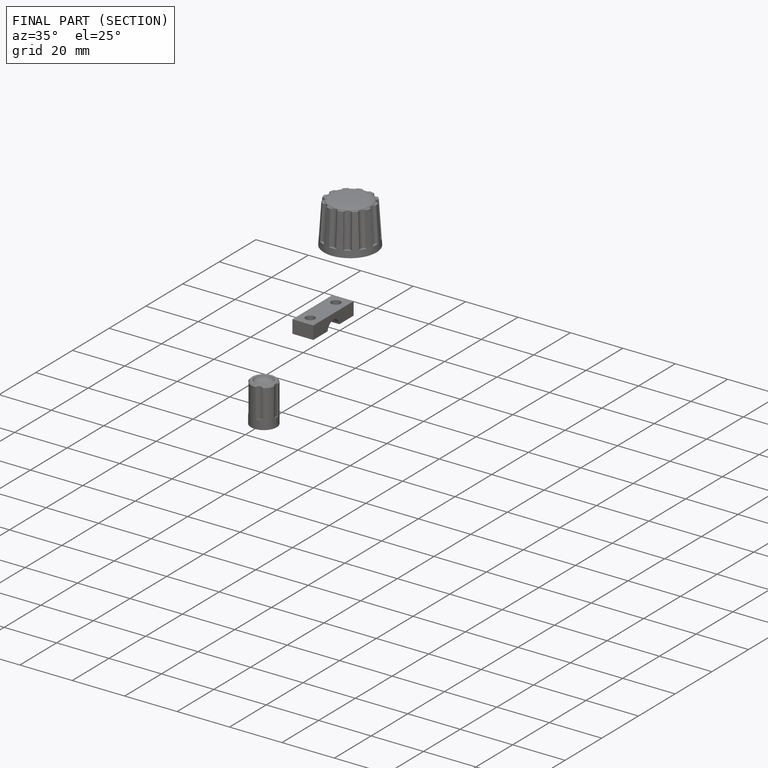
[diagram: finished part — half-section view (interior)]
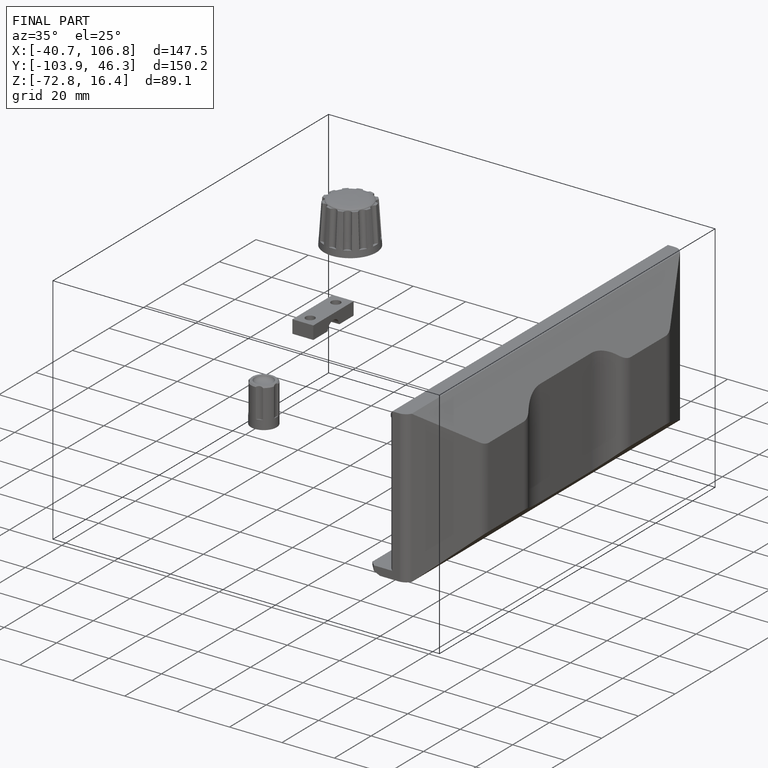
[diagram: finished part — iso view with bounding-box wireframe]
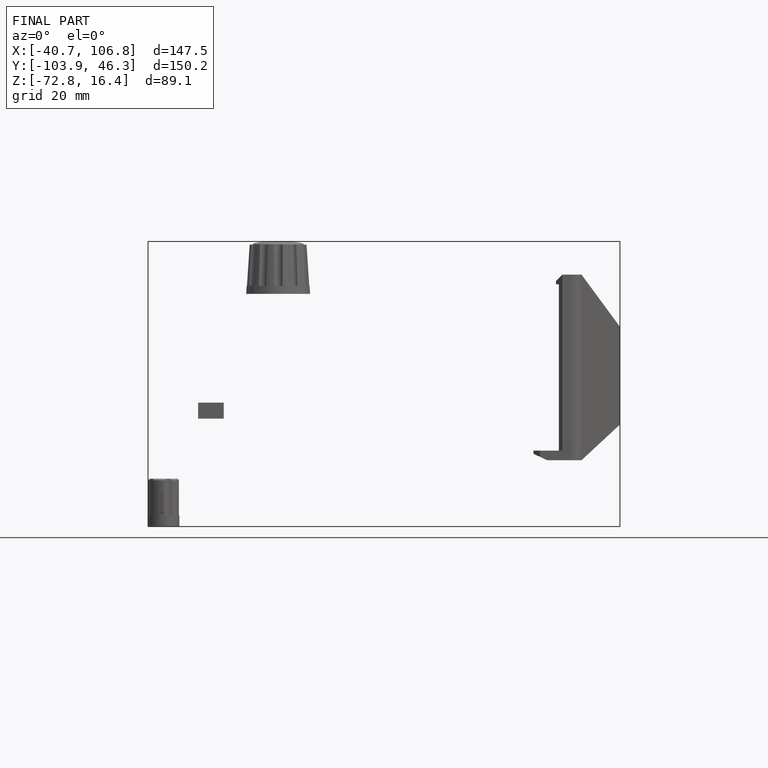
[diagram: finished part — front view with bounding-box wireframe]
